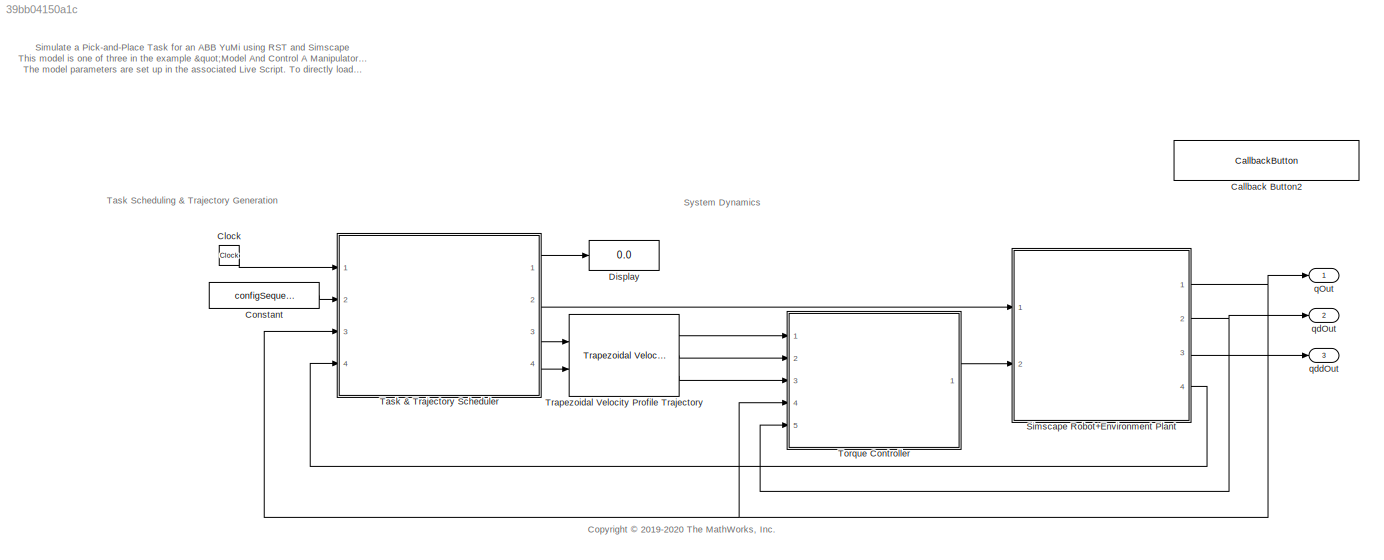
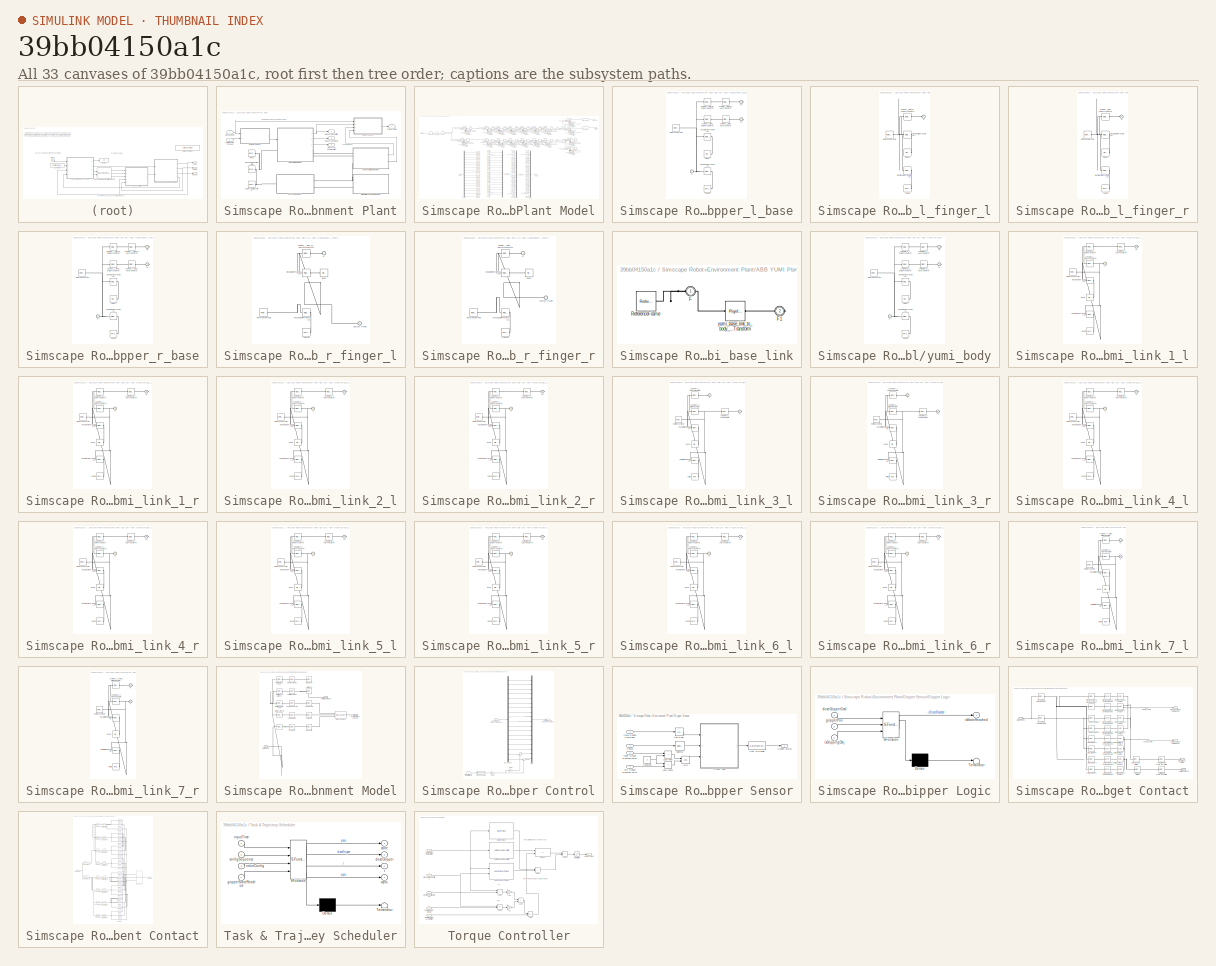
[diagram: thumbnail index - all 33 canvases of the model, root first then tree order]
MODEL slx_39bb04150a1c
KIND model
CONFIG AbsTol = 1e-2
CONFIG EnableMultiTasking = off
CONFIG FixedStep = auto
CONFIG MaxStep = 0.1
CONFIG MinStep = auto
CONFIG RelTol = 1e-2
CONFIG SampleTimeConstraint = Unconstrained
CONFIG SolverName = daessc
CONFIG StartTime = 0.0
CONFIG StopTime = 16
BLOCK [CallbackButton] Callback Button2
  ButtonText = Load Default Parameters (will overwrite workspace)
  ClickFcn = robot = loadrobot('abbYumi', 'Gravity', [0 0 -9.81]);\nload abbExampleRSTVariables.mat;\nload abbExampleSMVariables.mat;
BLOCK [Clock] Clock
BLOCK [Constant] Constant
  Value = configSequence
BLOCK [Display] Display
  Decimation = 1
  Ports = [1]
BLOCK [SubSystem] Simscape Robot+Environment Plant
  Ports = [2, 4]
  RequestExecContextInheritance = off
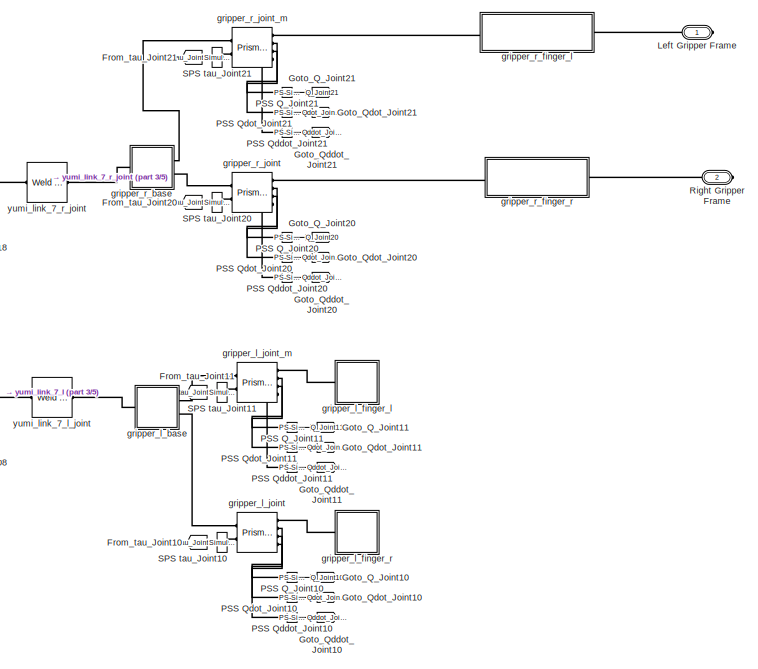
[diagram: Simscape Robot+Environment Plant/ABB YUMI Plant Model - part 1/5, top right region]
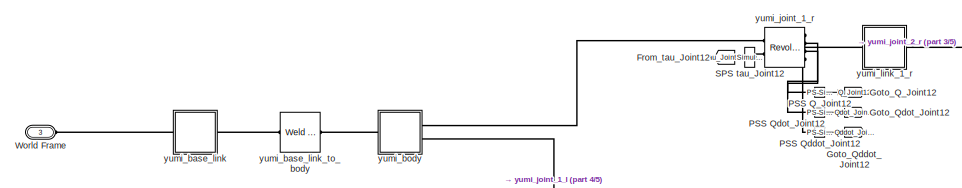
[diagram: Simscape Robot+Environment Plant/ABB YUMI Plant Model - part 2/5, top left region]
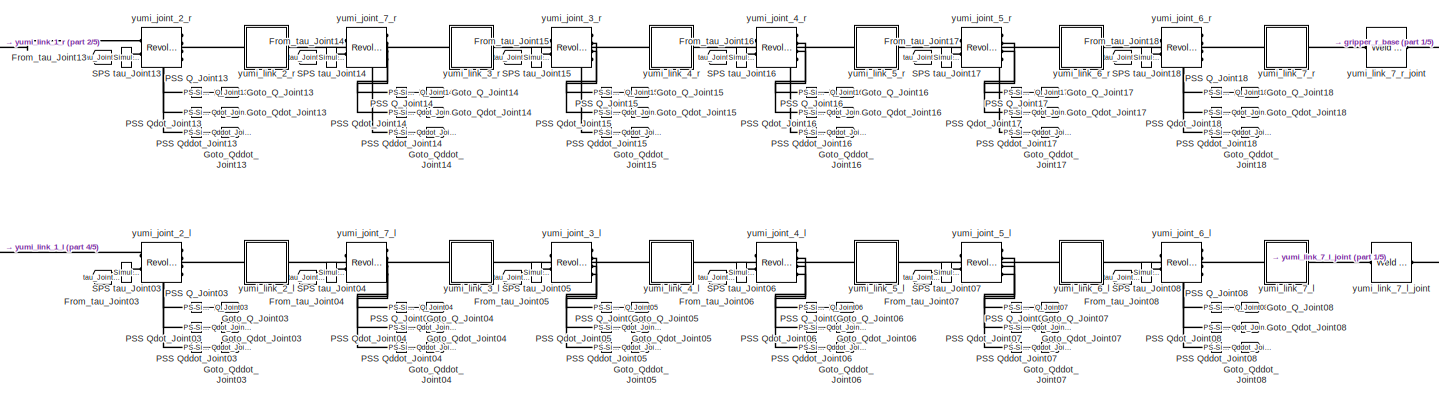
[diagram: Simscape Robot+Environment Plant/ABB YUMI Plant Model - part 3/5, top center region]
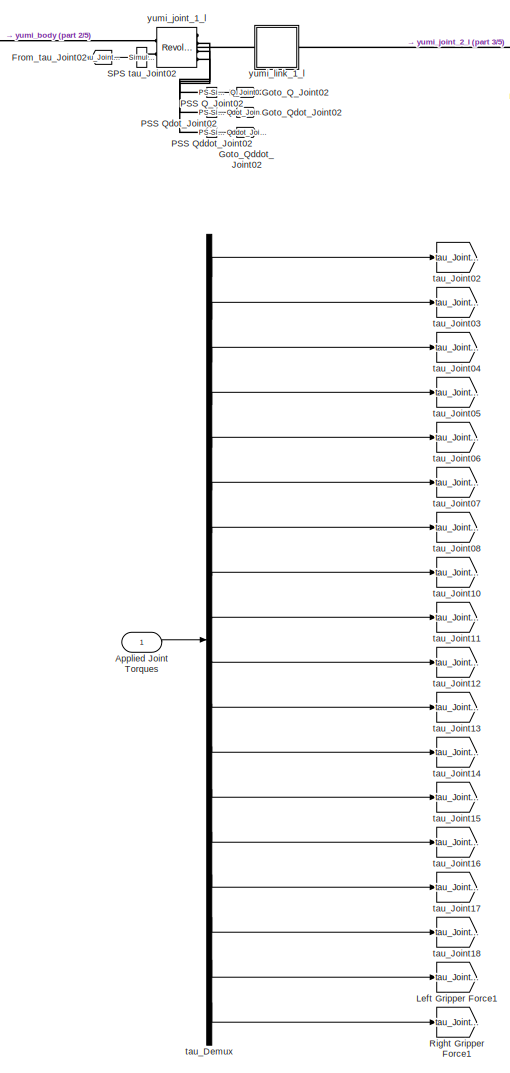
[diagram: Simscape Robot+Environment Plant/ABB YUMI Plant Model - part 4/5, left side, full height]
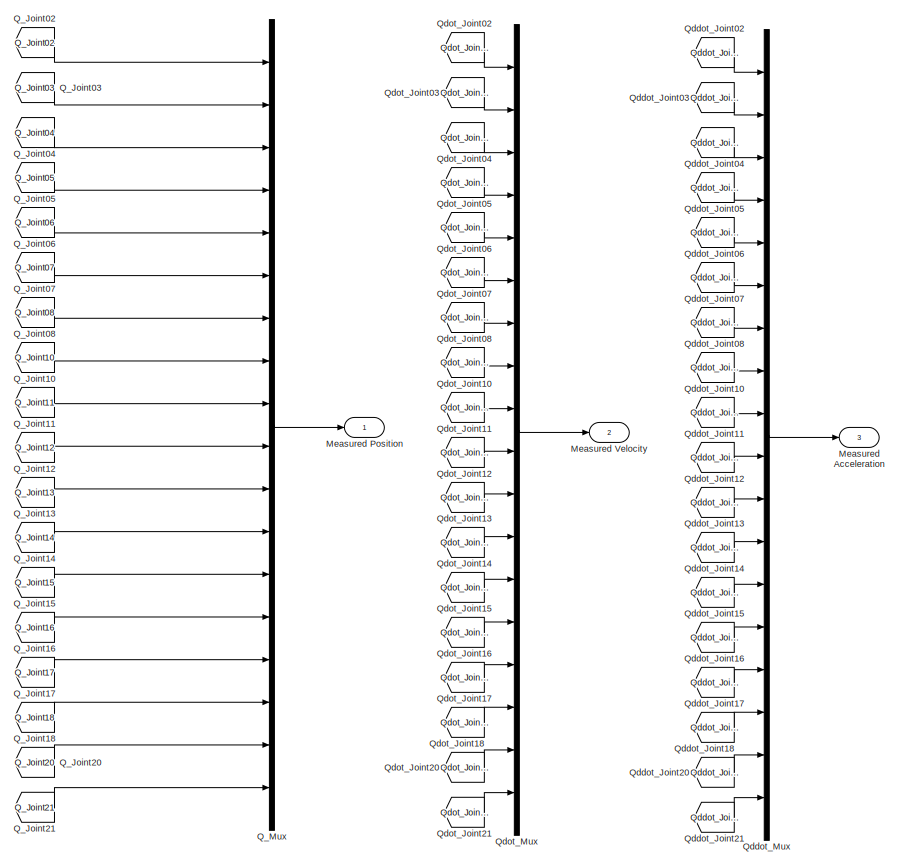
[diagram: Simscape Robot+Environment Plant/ABB YUMI Plant Model - part 5/5, bottom center region]
BLOCK [SubSystem] Simscape Robot+Environment Plant/ABB YUMI Plant Model
  Ports = [1, 3, 0, 0, 0, 1, 2]
  RequestExecContextInheritance = off
BLOCK [Inport] Simscape Robot+Environment Plant/ABB YUMI Plant Model/Applied Joint Torques
BLOCK [From] Simscape Robot+Environment Plant/ABB YUMI Plant Model/From_tau_Joint02
  GotoTag = tau_Joint02
BLOCK [From] Simscape Robot+Environment Plant/ABB YUMI Plant Model/From_tau_Joint03
  GotoTag = tau_Joint03
BLOCK [From] Simscape Robot+Environment Plant/ABB YUMI Plant Model/From_tau_Joint04
  GotoTag = tau_Joint04
BLOCK [From] Simscape Robot+Environment Plant/ABB YUMI Plant Model/From_tau_Joint05
  GotoTag = tau_Joint05
BLOCK [From] Simscape Robot+Environment Plant/ABB YUMI Plant Model/From_tau_Joint06
  GotoTag = tau_Joint06
BLOCK [From] Simscape Robot+Environment Plant/ABB YUMI Plant Model/From_tau_Joint07
  GotoTag = tau_Joint07
BLOCK [From] Simscape Robot+Environment Plant/ABB YUMI Plant Model/From_tau_Joint08
  GotoTag = tau_Joint08
BLOCK [From] Simscape Robot+Environment Plant/ABB YUMI Plant Model/From_tau_Joint10
  GotoTag = tau_Joint10
BLOCK [From] Simscape Robot+Environment Plant/ABB YUMI Plant Model/From_tau_Joint11
  GotoTag = tau_Joint11
BLOCK [From] Simscape Robot+Environment Plant/ABB YUMI Plant Model/From_tau_Joint12
  GotoTag = tau_Joint12
BLOCK [From] Simscape Robot+Environment Plant/ABB YUMI Plant Model/From_tau_Joint13
  GotoTag = tau_Joint13
BLOCK [From] Simscape Robot+Environment Plant/ABB YUMI Plant Model/From_tau_Joint14
  GotoTag = tau_Joint14
BLOCK [From] Simscape Robot+Environment Plant/ABB YUMI Plant Model/From_tau_Joint15
  GotoTag = tau_Joint15
BLOCK [From] Simscape Robot+Environment Plant/ABB YUMI Plant Model/From_tau_Joint16
  GotoTag = tau_Joint16
BLOCK [From] Simscape Robot+Environment Plant/ABB YUMI Plant Model/From_tau_Joint17
  GotoTag = tau_Joint17
BLOCK [From] Simscape Robot+Environment Plant/ABB YUMI Plant Model/From_tau_Joint18
  GotoTag = tau_Joint18
BLOCK [From] Simscape Robot+Environment Plant/ABB YUMI Plant Model/From_tau_Joint20
  GotoTag = tau_Joint20
BLOCK [From] Simscape Robot+Environment Plant/ABB YUMI Plant Model/From_tau_Joint21
  GotoTag = tau_Joint21
BLOCK [Goto] Simscape Robot+Environment Plant/ABB YUMI Plant Model/Goto_Q_Joint02
  GotoTag = Q_Joint02
BLOCK [Goto] Simscape Robot+Environment Plant/ABB YUMI Plant Model/Goto_Q_Joint03
  GotoTag = Q_Joint03
BLOCK [Goto] Simscape Robot+Environment Plant/ABB YUMI Plant Model/Goto_Q_Joint04
  GotoTag = Q_Joint04
BLOCK [Goto] Simscape Robot+Environment Plant/ABB YUMI Plant Model/Goto_Q_Joint05
  GotoTag = Q_Joint05
BLOCK [Goto] Simscape Robot+Environment Plant/ABB YUMI Plant Model/Goto_Q_Joint06
  GotoTag = Q_Joint06
BLOCK [Goto] Simscape Robot+Environment Plant/ABB YUMI Plant Model/Goto_Q_Joint07
  GotoTag = Q_Joint07
BLOCK [Goto] Simscape Robot+Environment Plant/ABB YUMI Plant Model/Goto_Q_Joint08
  GotoTag = Q_Joint08
BLOCK [Goto] Simscape Robot+Environment Plant/ABB YUMI Plant Model/Goto_Q_Joint10
  GotoTag = Q_Joint10
BLOCK [Goto] Simscape Robot+Environment Plant/ABB YUMI Plant Model/Goto_Q_Joint11
  GotoTag = Q_Joint11
BLOCK [Goto] Simscape Robot+Environment Plant/ABB YUMI Plant Model/Goto_Q_Joint12
  GotoTag = Q_Joint12
BLOCK [Goto] Simscape Robot+Environment Plant/ABB YUMI Plant Model/Goto_Q_Joint13
  GotoTag = Q_Joint13
BLOCK [Goto] Simscape Robot+Environment Plant/ABB YUMI Plant Model/Goto_Q_Joint14
  GotoTag = Q_Joint14
BLOCK [Goto] Simscape Robot+Environment Plant/ABB YUMI Plant Model/Goto_Q_Joint15
  GotoTag = Q_Joint15
BLOCK [Goto] Simscape Robot+Environment Plant/ABB YUMI Plant Model/Goto_Q_Joint16
  GotoTag = Q_Joint16
BLOCK [Goto] Simscape Robot+Environment Plant/ABB YUMI Plant Model/Goto_Q_Joint17
  GotoTag = Q_Joint17
BLOCK [Goto] Simscape Robot+Environment Plant/ABB YUMI Plant Model/Goto_Q_Joint18
  GotoTag = Q_Joint18
BLOCK [Goto] Simscape Robot+Environment Plant/ABB YUMI Plant Model/Goto_Q_Joint20
  GotoTag = Q_Joint20
BLOCK [Goto] Simscape Robot+Environment Plant/ABB YUMI Plant Model/Goto_Q_Joint21
  GotoTag = Q_Joint21
BLOCK [Goto] Simscape Robot+Environment Plant/ABB YUMI Plant Model/Goto_Qddot_Joint02
  GotoTag = Qddot_Joint02
BLOCK [Goto] Simscape Robot+Environment Plant/ABB YUMI Plant Model/Goto_Qddot_Joint03
  GotoTag = Qddot_Joint03
BLOCK [Goto] Simscape Robot+Environment Plant/ABB YUMI Plant Model/Goto_Qddot_Joint04
  GotoTag = Qddot_Joint04
BLOCK [Goto] Simscape Robot+Environment Plant/ABB YUMI Plant Model/Goto_Qddot_Joint05
  GotoTag = Qddot_Joint05
BLOCK [Goto] Simscape Robot+Environment Plant/ABB YUMI Plant Model/Goto_Qddot_Joint06
  GotoTag = Qddot_Joint06
BLOCK [Goto] Simscape Robot+Environment Plant/ABB YUMI Plant Model/Goto_Qddot_Joint07
  GotoTag = Qddot_Joint07
BLOCK [Goto] Simscape Robot+Environment Plant/ABB YUMI Plant Model/Goto_Qddot_Joint08
  GotoTag = Qddot_Joint08
BLOCK [Goto] Simscape Robot+Environment Plant/ABB YUMI Plant Model/Goto_Qddot_Joint10
  GotoTag = Qddot_Joint10
BLOCK [Goto] Simscape Robot+Environment Plant/ABB YUMI Plant Model/Goto_Qddot_Joint11
  GotoTag = Qddot_Joint11
BLOCK [Goto] Simscape Robot+Environment Plant/ABB YUMI Plant Model/Goto_Qddot_Joint12
  GotoTag = Qddot_Joint12
BLOCK [Goto] Simscape Robot+Environment Plant/ABB YUMI Plant Model/Goto_Qddot_Joint13
  GotoTag = Qddot_Joint13
BLOCK [Goto] Simscape Robot+Environment Plant/ABB YUMI Plant Model/Goto_Qddot_Joint14
  GotoTag = Qddot_Joint14
BLOCK [Goto] Simscape Robot+Environment Plant/ABB YUMI Plant Model/Goto_Qddot_Joint15
  GotoTag = Qddot_Joint15
BLOCK [Goto] Simscape Robot+Environment Plant/ABB YUMI Plant Model/Goto_Qddot_Joint16
  GotoTag = Qddot_Joint16
BLOCK [Goto] Simscape Robot+Environment Plant/ABB YUMI Plant Model/Goto_Qddot_Joint17
  GotoTag = Qddot_Joint17
BLOCK [Goto] Simscape Robot+Environment Plant/ABB YUMI Plant Model/Goto_Qddot_Joint18
  GotoTag = Qddot_Joint18
BLOCK [Goto] Simscape Robot+Environment Plant/ABB YUMI Plant Model/Goto_Qddot_Joint20
  GotoTag = Qddot_Joint20
BLOCK [Goto] Simscape Robot+Environment Plant/ABB YUMI Plant Model/Goto_Qddot_Joint21
  GotoTag = Qddot_Joint21
BLOCK [Goto] Simscape Robot+Environment Plant/ABB YUMI Plant Model/Goto_Qdot_Joint02
  GotoTag = Qdot_Joint02
BLOCK [Goto] Simscape Robot+Environment Plant/ABB YUMI Plant Model/Goto_Qdot_Joint03
  GotoTag = Qdot_Joint03
BLOCK [Goto] Simscape Robot+Environment Plant/ABB YUMI Plant Model/Goto_Qdot_Joint04
  GotoTag = Qdot_Joint04
BLOCK [Goto] Simscape Robot+Environment Plant/ABB YUMI Plant Model/Goto_Qdot_Joint05
  GotoTag = Qdot_Joint05
BLOCK [Goto] Simscape Robot+Environment Plant/ABB YUMI Plant Model/Goto_Qdot_Joint06
  GotoTag = Qdot_Joint06
BLOCK [Goto] Simscape Robot+Environment Plant/ABB YUMI Plant Model/Goto_Qdot_Joint07
  GotoTag = Qdot_Joint07
BLOCK [Goto] Simscape Robot+Environment Plant/ABB YUMI Plant Model/Goto_Qdot_Joint08
  GotoTag = Qdot_Joint08
BLOCK [Goto] Simscape Robot+Environment Plant/ABB YUMI Plant Model/Goto_Qdot_Joint10
  GotoTag = Qdot_Joint10
BLOCK [Goto] Simscape Robot+Environment Plant/ABB YUMI Plant Model/Goto_Qdot_Joint11
  GotoTag = Qdot_Joint11
BLOCK [Goto] Simscape Robot+Environment Plant/ABB YUMI Plant Model/Goto_Qdot_Joint12
  GotoTag = Qdot_Joint12
BLOCK [Goto] Simscape Robot+Environment Plant/ABB YUMI Plant Model/Goto_Qdot_Joint13
  GotoTag = Qdot_Joint13
BLOCK [Goto] Simscape Robot+Environment Plant/ABB YUMI Plant Model/Goto_Qdot_Joint14
  GotoTag = Qdot_Joint14
BLOCK [Goto] Simscape Robot+Environment Plant/ABB YUMI Plant Model/Goto_Qdot_Joint15
  GotoTag = Qdot_Joint15
BLOCK [Goto] Simscape Robot+Environment Plant/ABB YUMI Plant Model/Goto_Qdot_Joint16
  GotoTag = Qdot_Joint16
BLOCK [Goto] Simscape Robot+Environment Plant/ABB YUMI Plant Model/Goto_Qdot_Joint17
  GotoTag = Qdot_Joint17
BLOCK [Goto] Simscape Robot+Environment Plant/ABB YUMI Plant Model/Goto_Qdot_Joint18
  GotoTag = Qdot_Joint18
BLOCK [Goto] Simscape Robot+Environment Plant/ABB YUMI Plant Model/Goto_Qdot_Joint20
  GotoTag = Qdot_Joint20
BLOCK [Goto] Simscape Robot+Environment Plant/ABB YUMI Plant Model/Goto_Qdot_Joint21
  GotoTag = Qdot_Joint21
BLOCK [Goto] Simscape Robot+Environment Plant/ABB YUMI Plant Model/Left Gripper Force1
  GotoTag = tau_Joint20
BLOCK [PMIOPort] Simscape Robot+Environment Plant/ABB YUMI Plant Model/Left Gripper Frame
  Side = Right
BLOCK [Outport] Simscape Robot+Environment Plant/ABB YUMI Plant Model/Measured Acceleration
  Port = 3
BLOCK [Outport] Simscape Robot+Environment Plant/ABB YUMI Plant Model/Measured Position
BLOCK [Outport] Simscape Robot+Environment Plant/ABB YUMI Plant Model/Measured Velocity
  Port = 2
BLOCK [Reference] Simscape Robot+Environment Plant/ABB YUMI Plant Model/PSS Q_Joint02  REF=nesl_utility/PS-Simulink
Converter
  Ports = [0, 1, 0, 0, 0, 1]
  SourceBlock = nesl_utility/PS-Simulink\nConverter
  SourceProductName = Utilities
  SourceType = PS-Simulink\nConverter
BLOCK [Reference] Simscape Robot+Environment Plant/ABB YUMI Plant Model/PSS Q_Joint03  REF=nesl_utility/PS-Simulink
Converter
  Ports = [0, 1, 0, 0, 0, 1]
  SourceBlock = nesl_utility/PS-Simulink\nConverter
  SourceProductName = Utilities
  SourceType = PS-Simulink\nConverter
BLOCK [Reference] Simscape Robot+Environment Plant/ABB YUMI Plant Model/PSS Q_Joint04  REF=nesl_utility/PS-Simulink
Converter
  Ports = [0, 1, 0, 0, 0, 1]
  SourceBlock = nesl_utility/PS-Simulink\nConverter
  SourceProductName = Utilities
  SourceType = PS-Simulink\nConverter
BLOCK [Reference] Simscape Robot+Environment Plant/ABB YUMI Plant Model/PSS Q_Joint05  REF=nesl_utility/PS-Simulink
Converter
  Ports = [0, 1, 0, 0, 0, 1]
  SourceBlock = nesl_utility/PS-Simulink\nConverter
  SourceProductName = Utilities
  SourceType = PS-Simulink\nConverter
BLOCK [Reference] Simscape Robot+Environment Plant/ABB YUMI Plant Model/PSS Q_Joint06  REF=nesl_utility/PS-Simulink
Converter
  Ports = [0, 1, 0, 0, 0, 1]
  SourceBlock = nesl_utility/PS-Simulink\nConverter
  SourceProductName = Utilities
  SourceType = PS-Simulink\nConverter
BLOCK [Reference] Simscape Robot+Environment Plant/ABB YUMI Plant Model/PSS Q_Joint07  REF=nesl_utility/PS-Simulink
Converter
  Ports = [0, 1, 0, 0, 0, 1]
  SourceBlock = nesl_utility/PS-Simulink\nConverter
  SourceProductName = Utilities
  SourceType = PS-Simulink\nConverter
BLOCK [Reference] Simscape Robot+Environment Plant/ABB YUMI Plant Model/PSS Q_Joint08  REF=nesl_utility/PS-Simulink
Converter
  Ports = [0, 1, 0, 0, 0, 1]
  SourceBlock = nesl_utility/PS-Simulink\nConverter
  SourceProductName = Utilities
  SourceType = PS-Simulink\nConverter
BLOCK [Reference] Simscape Robot+Environment Plant/ABB YUMI Plant Model/PSS Q_Joint10  REF=nesl_utility/PS-Simulink
Converter
  Ports = [0, 1, 0, 0, 0, 1]
  SourceBlock = nesl_utility/PS-Simulink\nConverter
  SourceProductName = Utilities
  SourceType = PS-Simulink\nConverter
BLOCK [Reference] Simscape Robot+Environment Plant/ABB YUMI Plant Model/PSS Q_Joint11  REF=nesl_utility/PS-Simulink
Converter
  Ports = [0, 1, 0, 0, 0, 1]
  SourceBlock = nesl_utility/PS-Simulink\nConverter
  SourceProductName = Utilities
  SourceType = PS-Simulink\nConverter
BLOCK [Reference] Simscape Robot+Environment Plant/ABB YUMI Plant Model/PSS Q_Joint12  REF=nesl_utility/PS-Simulink
Converter
  Ports = [0, 1, 0, 0, 0, 1]
  SourceBlock = nesl_utility/PS-Simulink\nConverter
  SourceProductName = Utilities
  SourceType = PS-Simulink\nConverter
BLOCK [Reference] Simscape Robot+Environment Plant/ABB YUMI Plant Model/PSS Q_Joint13  REF=nesl_utility/PS-Simulink
Converter
  Ports = [0, 1, 0, 0, 0, 1]
  SourceBlock = nesl_utility/PS-Simulink\nConverter
  SourceProductName = Utilities
  SourceType = PS-Simulink\nConverter
BLOCK [Reference] Simscape Robot+Environment Plant/ABB YUMI Plant Model/PSS Q_Joint14  REF=nesl_utility/PS-Simulink
Converter
  Ports = [0, 1, 0, 0, 0, 1]
  SourceBlock = nesl_utility/PS-Simulink\nConverter
  SourceProductName = Utilities
  SourceType = PS-Simulink\nConverter
BLOCK [Reference] Simscape Robot+Environment Plant/ABB YUMI Plant Model/PSS Q_Joint15  REF=nesl_utility/PS-Simulink
Converter
  Ports = [0, 1, 0, 0, 0, 1]
  SourceBlock = nesl_utility/PS-Simulink\nConverter
  SourceProductName = Utilities
  SourceType = PS-Simulink\nConverter
BLOCK [Reference] Simscape Robot+Environment Plant/ABB YUMI Plant Model/PSS Q_Joint16  REF=nesl_utility/PS-Simulink
Converter
  Ports = [0, 1, 0, 0, 0, 1]
  SourceBlock = nesl_utility/PS-Simulink\nConverter
  SourceProductName = Utilities
  SourceType = PS-Simulink\nConverter
BLOCK [Reference] Simscape Robot+Environment Plant/ABB YUMI Plant Model/PSS Q_Joint17  REF=nesl_utility/PS-Simulink
Converter
  Ports = [0, 1, 0, 0, 0, 1]
  SourceBlock = nesl_utility/PS-Simulink\nConverter
  SourceProductName = Utilities
  SourceType = PS-Simulink\nConverter
BLOCK [Reference] Simscape Robot+Environment Plant/ABB YUMI Plant Model/PSS Q_Joint18  REF=nesl_utility/PS-Simulink
Converter
  Ports = [0, 1, 0, 0, 0, 1]
  SourceBlock = nesl_utility/PS-Simulink\nConverter
  SourceProductName = Utilities
  SourceType = PS-Simulink\nConverter
BLOCK [Reference] Simscape Robot+Environment Plant/ABB YUMI Plant Model/PSS Q_Joint20  REF=nesl_utility/PS-Simulink
Converter
  Ports = [0, 1, 0, 0, 0, 1]
  SourceBlock = nesl_utility/PS-Simulink\nConverter
  SourceProductName = Utilities
  SourceType = PS-Simulink\nConverter
BLOCK [Reference] Simscape Robot+Environment Plant/ABB YUMI Plant Model/PSS Q_Joint21  REF=nesl_utility/PS-Simulink
Converter
  Ports = [0, 1, 0, 0, 0, 1]
  SourceBlock = nesl_utility/PS-Simulink\nConverter
  SourceProductName = Utilities
  SourceType = PS-Simulink\nConverter
BLOCK [Reference] Simscape Robot+Environment Plant/ABB YUMI Plant Model/PSS Qddot_Joint02  REF=nesl_utility/PS-Simulink
Converter
  Ports = [0, 1, 0, 0, 0, 1]
  SourceBlock = nesl_utility/PS-Simulink\nConverter
  SourceProductName = Utilities
  SourceType = PS-Simulink\nConverter
BLOCK [Reference] Simscape Robot+Environment Plant/ABB YUMI Plant Model/PSS Qddot_Joint03  REF=nesl_utility/PS-Simulink
Converter
  Ports = [0, 1, 0, 0, 0, 1]
  SourceBlock = nesl_utility/PS-Simulink\nConverter
  SourceProductName = Utilities
  SourceType = PS-Simulink\nConverter
BLOCK [Reference] Simscape Robot+Environment Plant/ABB YUMI Plant Model/PSS Qddot_Joint04  REF=nesl_utility/PS-Simulink
Converter
  Ports = [0, 1, 0, 0, 0, 1]
  SourceBlock = nesl_utility/PS-Simulink\nConverter
  SourceProductName = Utilities
  SourceType = PS-Simulink\nConverter
BLOCK [Reference] Simscape Robot+Environment Plant/ABB YUMI Plant Model/PSS Qddot_Joint05  REF=nesl_utility/PS-Simulink
Converter
  Ports = [0, 1, 0, 0, 0, 1]
  SourceBlock = nesl_utility/PS-Simulink\nConverter
  SourceProductName = Utilities
  SourceType = PS-Simulink\nConverter
BLOCK [Reference] Simscape Robot+Environment Plant/ABB YUMI Plant Model/PSS Qddot_Joint06  REF=nesl_utility/PS-Simulink
Converter
  Ports = [0, 1, 0, 0, 0, 1]
  SourceBlock = nesl_utility/PS-Simulink\nConverter
  SourceProductName = Utilities
  SourceType = PS-Simulink\nConverter
BLOCK [Reference] Simscape Robot+Environment Plant/ABB YUMI Plant Model/PSS Qddot_Joint07  REF=nesl_utility/PS-Simulink
Converter
  Ports = [0, 1, 0, 0, 0, 1]
  SourceBlock = nesl_utility/PS-Simulink\nConverter
  SourceProductName = Utilities
  SourceType = PS-Simulink\nConverter
BLOCK [Reference] Simscape Robot+Environment Plant/ABB YUMI Plant Model/PSS Qddot_Joint08  REF=nesl_utility/PS-Simulink
Converter
  Ports = [0, 1, 0, 0, 0, 1]
  SourceBlock = nesl_utility/PS-Simulink\nConverter
  SourceProductName = Utilities
  SourceType = PS-Simulink\nConverter
BLOCK [Reference] Simscape Robot+Environment Plant/ABB YUMI Plant Model/PSS Qddot_Joint10  REF=nesl_utility/PS-Simulink
Converter
  Ports = [0, 1, 0, 0, 0, 1]
  SourceBlock = nesl_utility/PS-Simulink\nConverter
  SourceProductName = Utilities
  SourceType = PS-Simulink\nConverter
BLOCK [Reference] Simscape Robot+Environment Plant/ABB YUMI Plant Model/PSS Qddot_Joint11  REF=nesl_utility/PS-Simulink
Converter
  Ports = [0, 1, 0, 0, 0, 1]
  SourceBlock = nesl_utility/PS-Simulink\nConverter
  SourceProductName = Utilities
  SourceType = PS-Simulink\nConverter
BLOCK [Reference] Simscape Robot+Environment Plant/ABB YUMI Plant Model/PSS Qddot_Joint12  REF=nesl_utility/PS-Simulink
Converter
  Ports = [0, 1, 0, 0, 0, 1]
  SourceBlock = nesl_utility/PS-Simulink\nConverter
  SourceProductName = Utilities
  SourceType = PS-Simulink\nConverter
BLOCK [Reference] Simscape Robot+Environment Plant/ABB YUMI Plant Model/PSS Qddot_Joint13  REF=nesl_utility/PS-Simulink
Converter
  Ports = [0, 1, 0, 0, 0, 1]
  SourceBlock = nesl_utility/PS-Simulink\nConverter
  SourceProductName = Utilities
  SourceType = PS-Simulink\nConverter
BLOCK [Reference] Simscape Robot+Environment Plant/ABB YUMI Plant Model/PSS Qddot_Joint14  REF=nesl_utility/PS-Simulink
Converter
  Ports = [0, 1, 0, 0, 0, 1]
  SourceBlock = nesl_utility/PS-Simulink\nConverter
  SourceProductName = Utilities
  SourceType = PS-Simulink\nConverter
BLOCK [Reference] Simscape Robot+Environment Plant/ABB YUMI Plant Model/PSS Qddot_Joint15  REF=nesl_utility/PS-Simulink
Converter
  Ports = [0, 1, 0, 0, 0, 1]
  SourceBlock = nesl_utility/PS-Simulink\nConverter
  SourceProductName = Utilities
  SourceType = PS-Simulink\nConverter
BLOCK [Reference] Simscape Robot+Environment Plant/ABB YUMI Plant Model/PSS Qddot_Joint16  REF=nesl_utility/PS-Simulink
Converter
  Ports = [0, 1, 0, 0, 0, 1]
  SourceBlock = nesl_utility/PS-Simulink\nConverter
  SourceProductName = Utilities
  SourceType = PS-Simulink\nConverter
BLOCK [Reference] Simscape Robot+Environment Plant/ABB YUMI Plant Model/PSS Qddot_Joint17  REF=nesl_utility/PS-Simulink
Converter
  Ports = [0, 1, 0, 0, 0, 1]
  SourceBlock = nesl_utility/PS-Simulink\nConverter
  SourceProductName = Utilities
  SourceType = PS-Simulink\nConverter
BLOCK [Reference] Simscape Robot+Environment Plant/ABB YUMI Plant Model/PSS Qddot_Joint18  REF=nesl_utility/PS-Simulink
Converter
  Ports = [0, 1, 0, 0, 0, 1]
  SourceBlock = nesl_utility/PS-Simulink\nConverter
  SourceProductName = Utilities
  SourceType = PS-Simulink\nConverter
BLOCK [Reference] Simscape Robot+Environment Plant/ABB YUMI Plant Model/PSS Qddot_Joint20  REF=nesl_utility/PS-Simulink
Converter
  Ports = [0, 1, 0, 0, 0, 1]
  SourceBlock = nesl_utility/PS-Simulink\nConverter
  SourceProductName = Utilities
  SourceType = PS-Simulink\nConverter
BLOCK [Reference] Simscape Robot+Environment Plant/ABB YUMI Plant Model/PSS Qddot_Joint21  REF=nesl_utility/PS-Simulink
Converter
  Ports = [0, 1, 0, 0, 0, 1]
  SourceBlock = nesl_utility/PS-Simulink\nConverter
  SourceProductName = Utilities
  SourceType = PS-Simulink\nConverter
BLOCK [Reference] Simscape Robot+Environment Plant/ABB YUMI Plant Model/PSS Qdot_Joint02  REF=nesl_utility/PS-Simulink
Converter
  Ports = [0, 1, 0, 0, 0, 1]
  SourceBlock = nesl_utility/PS-Simulink\nConverter
  SourceProductName = Utilities
  SourceType = PS-Simulink\nConverter
BLOCK [Reference] Simscape Robot+Environment Plant/ABB YUMI Plant Model/PSS Qdot_Joint03  REF=nesl_utility/PS-Simulink
Converter
  Ports = [0, 1, 0, 0, 0, 1]
  SourceBlock = nesl_utility/PS-Simulink\nConverter
  SourceProductName = Utilities
  SourceType = PS-Simulink\nConverter
BLOCK [Reference] Simscape Robot+Environment Plant/ABB YUMI Plant Model/PSS Qdot_Joint04  REF=nesl_utility/PS-Simulink
Converter
  Ports = [0, 1, 0, 0, 0, 1]
  SourceBlock = nesl_utility/PS-Simulink\nConverter
  SourceProductName = Utilities
  SourceType = PS-Simulink\nConverter
BLOCK [Reference] Simscape Robot+Environment Plant/ABB YUMI Plant Model/PSS Qdot_Joint05  REF=nesl_utility/PS-Simulink
Converter
  Ports = [0, 1, 0, 0, 0, 1]
  SourceBlock = nesl_utility/PS-Simulink\nConverter
  SourceProductName = Utilities
  SourceType = PS-Simulink\nConverter
BLOCK [Reference] Simscape Robot+Environment Plant/ABB YUMI Plant Model/PSS Qdot_Joint06  REF=nesl_utility/PS-Simulink
Converter
  Ports = [0, 1, 0, 0, 0, 1]
  SourceBlock = nesl_utility/PS-Simulink\nConverter
  SourceProductName = Utilities
  SourceType = PS-Simulink\nConverter
BLOCK [Reference] Simscape Robot+Environment Plant/ABB YUMI Plant Model/PSS Qdot_Joint07  REF=nesl_utility/PS-Simulink
Converter
  Ports = [0, 1, 0, 0, 0, 1]
  SourceBlock = nesl_utility/PS-Simulink\nConverter
  SourceProductName = Utilities
  SourceType = PS-Simulink\nConverter
BLOCK [Reference] Simscape Robot+Environment Plant/ABB YUMI Plant Model/PSS Qdot_Joint08  REF=nesl_utility/PS-Simulink
Converter
  Ports = [0, 1, 0, 0, 0, 1]
  SourceBlock = nesl_utility/PS-Simulink\nConverter
  SourceProductName = Utilities
  SourceType = PS-Simulink\nConverter
BLOCK [Reference] Simscape Robot+Environment Plant/ABB YUMI Plant Model/PSS Qdot_Joint10  REF=nesl_utility/PS-Simulink
Converter
  Ports = [0, 1, 0, 0, 0, 1]
  SourceBlock = nesl_utility/PS-Simulink\nConverter
  SourceProductName = Utilities
  SourceType = PS-Simulink\nConverter
BLOCK [Reference] Simscape Robot+Environment Plant/ABB YUMI Plant Model/PSS Qdot_Joint11  REF=nesl_utility/PS-Simulink
Converter
  Ports = [0, 1, 0, 0, 0, 1]
  SourceBlock = nesl_utility/PS-Simulink\nConverter
  SourceProductName = Utilities
  SourceType = PS-Simulink\nConverter
BLOCK [Reference] Simscape Robot+Environment Plant/ABB YUMI Plant Model/PSS Qdot_Joint12  REF=nesl_utility/PS-Simulink
Converter
  Ports = [0, 1, 0, 0, 0, 1]
  SourceBlock = nesl_utility/PS-Simulink\nConverter
  SourceProductName = Utilities
  SourceType = PS-Simulink\nConverter
BLOCK [Reference] Simscape Robot+Environment Plant/ABB YUMI Plant Model/PSS Qdot_Joint13  REF=nesl_utility/PS-Simulink
Converter
  Ports = [0, 1, 0, 0, 0, 1]
  SourceBlock = nesl_utility/PS-Simulink\nConverter
  SourceProductName = Utilities
  SourceType = PS-Simulink\nConverter
BLOCK [Reference] Simscape Robot+Environment Plant/ABB YUMI Plant Model/PSS Qdot_Joint14  REF=nesl_utility/PS-Simulink
Converter
  Ports = [0, 1, 0, 0, 0, 1]
  SourceBlock = nesl_utility/PS-Simulink\nConverter
  SourceProductName = Utilities
  SourceType = PS-Simulink\nConverter
BLOCK [Reference] Simscape Robot+Environment Plant/ABB YUMI Plant Model/PSS Qdot_Joint15  REF=nesl_utility/PS-Simulink
Converter
  Ports = [0, 1, 0, 0, 0, 1]
  SourceBlock = nesl_utility/PS-Simulink\nConverter
  SourceProductName = Utilities
  SourceType = PS-Simulink\nConverter
BLOCK [Reference] Simscape Robot+Environment Plant/ABB YUMI Plant Model/PSS Qdot_Joint16  REF=nesl_utility/PS-Simulink
Converter
  Ports = [0, 1, 0, 0, 0, 1]
  SourceBlock = nesl_utility/PS-Simulink\nConverter
  SourceProductName = Utilities
  SourceType = PS-Simulink\nConverter
BLOCK [Reference] Simscape Robot+Environment Plant/ABB YUMI Plant Model/PSS Qdot_Joint17  REF=nesl_utility/PS-Simulink
Converter
  Ports = [0, 1, 0, 0, 0, 1]
  SourceBlock = nesl_utility/PS-Simulink\nConverter
  SourceProductName = Utilities
  SourceType = PS-Simulink\nConverter
BLOCK [Reference] Simscape Robot+Environment Plant/ABB YUMI Plant Model/PSS Qdot_Joint18  REF=nesl_utility/PS-Simulink
Converter
  Ports = [0, 1, 0, 0, 0, 1]
  SourceBlock = nesl_utility/PS-Simulink\nConverter
  SourceProductName = Utilities
  SourceType = PS-Simulink\nConverter
BLOCK [Reference] Simscape Robot+Environment Plant/ABB YUMI Plant Model/PSS Qdot_Joint20  REF=nesl_utility/PS-Simulink
Converter
  Ports = [0, 1, 0, 0, 0, 1]
  SourceBlock = nesl_utility/PS-Simulink\nConverter
  SourceProductName = Utilities
  SourceType = PS-Simulink\nConverter
BLOCK [Reference] Simscape Robot+Environment Plant/ABB YUMI Plant Model/PSS Qdot_Joint21  REF=nesl_utility/PS-Simulink
Converter
  Ports = [0, 1, 0, 0, 0, 1]
  SourceBlock = nesl_utility/PS-Simulink\nConverter
  SourceProductName = Utilities
  SourceType = PS-Simulink\nConverter
BLOCK [From] Simscape Robot+Environment Plant/ABB YUMI Plant Model/Q_Joint02
  GotoTag = Q_Joint02
BLOCK [From] Simscape Robot+Environment Plant/ABB YUMI Plant Model/Q_Joint03
  GotoTag = Q_Joint03
BLOCK [From] Simscape Robot+Environment Plant/ABB YUMI Plant Model/Q_Joint04
  GotoTag = Q_Joint04
BLOCK [From] Simscape Robot+Environment Plant/ABB YUMI Plant Model/Q_Joint05
  GotoTag = Q_Joint05
BLOCK [From] Simscape Robot+Environment Plant/ABB YUMI Plant Model/Q_Joint06
  GotoTag = Q_Joint06
BLOCK [From] Simscape Robot+Environment Plant/ABB YUMI Plant Model/Q_Joint07
  GotoTag = Q_Joint07
BLOCK [From] Simscape Robot+Environment Plant/ABB YUMI Plant Model/Q_Joint08
  GotoTag = Q_Joint08
BLOCK [From] Simscape Robot+Environment Plant/ABB YUMI Plant Model/Q_Joint10
  GotoTag = Q_Joint10
BLOCK [From] Simscape Robot+Environment Plant/ABB YUMI Plant Model/Q_Joint11
  GotoTag = Q_Joint11
BLOCK [From] Simscape Robot+Environment Plant/ABB YUMI Plant Model/Q_Joint12
  GotoTag = Q_Joint12
BLOCK [From] Simscape Robot+Environment Plant/ABB YUMI Plant Model/Q_Joint13
  GotoTag = Q_Joint13
BLOCK [From] Simscape Robot+Environment Plant/ABB YUMI Plant Model/Q_Joint14
  GotoTag = Q_Joint14
BLOCK [From] Simscape Robot+Environment Plant/ABB YUMI Plant Model/Q_Joint15
  GotoTag = Q_Joint15
BLOCK [From] Simscape Robot+Environment Plant/ABB YUMI Plant Model/Q_Joint16
  GotoTag = Q_Joint16
BLOCK [From] Simscape Robot+Environment Plant/ABB YUMI Plant Model/Q_Joint17
  GotoTag = Q_Joint17
BLOCK [From] Simscape Robot+Environment Plant/ABB YUMI Plant Model/Q_Joint18
  GotoTag = Q_Joint18
BLOCK [From] Simscape Robot+Environment Plant/ABB YUMI Plant Model/Q_Joint20
  GotoTag = Q_Joint20
BLOCK [From] Simscape Robot+Environment Plant/ABB YUMI Plant Model/Q_Joint21
  GotoTag = Q_Joint21
BLOCK [Mux] Simscape Robot+Environment Plant/ABB YUMI Plant Model/Q_Mux
  DisplayOption = bar
  Inputs = 18
  Ports = [18, 1]
BLOCK [From] Simscape Robot+Environment Plant/ABB YUMI Plant Model/Qddot_Joint02
  GotoTag = Qddot_Joint02
BLOCK [From] Simscape Robot+Environment Plant/ABB YUMI Plant Model/Qddot_Joint03
  GotoTag = Qddot_Joint03
BLOCK [From] Simscape Robot+Environment Plant/ABB YUMI Plant Model/Qddot_Joint04
  GotoTag = Qddot_Joint04
BLOCK [From] Simscape Robot+Environment Plant/ABB YUMI Plant Model/Qddot_Joint05
  GotoTag = Qddot_Joint05
BLOCK [From] Simscape Robot+Environment Plant/ABB YUMI Plant Model/Qddot_Joint06
  GotoTag = Qddot_Joint06
BLOCK [From] Simscape Robot+Environment Plant/ABB YUMI Plant Model/Qddot_Joint07
  GotoTag = Qddot_Joint07
BLOCK [From] Simscape Robot+Environment Plant/ABB YUMI Plant Model/Qddot_Joint08
  GotoTag = Qddot_Joint08
BLOCK [From] Simscape Robot+Environment Plant/ABB YUMI Plant Model/Qddot_Joint10
  GotoTag = Qddot_Joint10
BLOCK [From] Simscape Robot+Environment Plant/ABB YUMI Plant Model/Qddot_Joint11
  GotoTag = Qddot_Joint11
BLOCK [From] Simscape Robot+Environment Plant/ABB YUMI Plant Model/Qddot_Joint12
  GotoTag = Qddot_Joint12
BLOCK [From] Simscape Robot+Environment Plant/ABB YUMI Plant Model/Qddot_Joint13
  GotoTag = Qddot_Joint13
BLOCK [From] Simscape Robot+Environment Plant/ABB YUMI Plant Model/Qddot_Joint14
  GotoTag = Qddot_Joint14
BLOCK [From] Simscape Robot+Environment Plant/ABB YUMI Plant Model/Qddot_Joint15
  GotoTag = Qddot_Joint15
BLOCK [From] Simscape Robot+Environment Plant/ABB YUMI Plant Model/Qddot_Joint16
  GotoTag = Qddot_Joint16
BLOCK [From] Simscape Robot+Environment Plant/ABB YUMI Plant Model/Qddot_Joint17
  GotoTag = Qddot_Joint17
BLOCK [From] Simscape Robot+Environment Plant/ABB YUMI Plant Model/Qddot_Joint18
  GotoTag = Qddot_Joint18
BLOCK [From] Simscape Robot+Environment Plant/ABB YUMI Plant Model/Qddot_Joint20
  GotoTag = Qddot_Joint20
BLOCK [From] Simscape Robot+Environment Plant/ABB YUMI Plant Model/Qddot_Joint21
  GotoTag = Qddot_Joint21
BLOCK [Mux] Simscape Robot+Environment Plant/ABB YUMI Plant Model/Qddot_Mux
  DisplayOption = bar
  Inputs = 18
  Ports = [18, 1]
BLOCK [From] Simscape Robot+Environment Plant/ABB YUMI Plant Model/Qdot_Joint02
  GotoTag = Qdot_Joint02
BLOCK [From] Simscape Robot+Environment Plant/ABB YUMI Plant Model/Qdot_Joint03
  GotoTag = Qdot_Joint03
BLOCK [From] Simscape Robot+Environment Plant/ABB YUMI Plant Model/Qdot_Joint04
  GotoTag = Qdot_Joint04
BLOCK [From] Simscape Robot+Environment Plant/ABB YUMI Plant Model/Qdot_Joint05
  GotoTag = Qdot_Joint05
BLOCK [From] Simscape Robot+Environment Plant/ABB YUMI Plant Model/Qdot_Joint06
  GotoTag = Qdot_Joint06
BLOCK [From] Simscape Robot+Environment Plant/ABB YUMI Plant Model/Qdot_Joint07
  GotoTag = Qdot_Joint07
BLOCK [From] Simscape Robot+Environment Plant/ABB YUMI Plant Model/Qdot_Joint08
  GotoTag = Qdot_Joint08
BLOCK [From] Simscape Robot+Environment Plant/ABB YUMI Plant Model/Qdot_Joint10
  GotoTag = Qdot_Joint10
BLOCK [From] Simscape Robot+Environment Plant/ABB YUMI Plant Model/Qdot_Joint11
  GotoTag = Qdot_Joint11
BLOCK [From] Simscape Robot+Environment Plant/ABB YUMI Plant Model/Qdot_Joint12
  GotoTag = Qdot_Joint12
BLOCK [From] Simscape Robot+Environment Plant/ABB YUMI Plant Model/Qdot_Joint13
  GotoTag = Qdot_Joint13
BLOCK [From] Simscape Robot+Environment Plant/ABB YUMI Plant Model/Qdot_Joint14
  GotoTag = Qdot_Joint14
BLOCK [From] Simscape Robot+Environment Plant/ABB YUMI Plant Model/Qdot_Joint15
  GotoTag = Qdot_Joint15
BLOCK [From] Simscape Robot+Environment Plant/ABB YUMI Plant Model/Qdot_Joint16
  GotoTag = Qdot_Joint16
BLOCK [From] Simscape Robot+Environment Plant/ABB YUMI Plant Model/Qdot_Joint17
  GotoTag = Qdot_Joint17
BLOCK [From] Simscape Robot+Environment Plant/ABB YUMI Plant Model/Qdot_Joint18
  GotoTag = Qdot_Joint18
BLOCK [From] Simscape Robot+Environment Plant/ABB YUMI Plant Model/Qdot_Joint20
  GotoTag = Qdot_Joint20
BLOCK [From] Simscape Robot+Environment Plant/ABB YUMI Plant Model/Qdot_Joint21
  GotoTag = Qdot_Joint21
BLOCK [Mux] Simscape Robot+Environment Plant/ABB YUMI Plant Model/Qdot_Mux
  DisplayOption = bar
  Inputs = 18
  Ports = [18, 1]
BLOCK [Goto] Simscape Robot+Environment Plant/ABB YUMI Plant Model/Right Gripper Force1
  GotoTag = tau_Joint21
BLOCK [PMIOPort] Simscape Robot+Environment Plant/ABB YUMI Plant Model/Right Gripper Frame
  Port = 2
  Side = Right
BLOCK [Reference] Simscape Robot+Environment Plant/ABB YUMI Plant Model/SPS tau_Joint02  REF=nesl_utility/Simulink-PS
Converter
  Ports = [1, 0, 0, 0, 0, 0, 1]
  SourceBlock = nesl_utility/Simulink-PS\nConverter
  SourceProductName = Utilities
  SourceType = Simulink-PS\nConverter
BLOCK [Reference] Simscape Robot+Environment Plant/ABB YUMI Plant Model/SPS tau_Joint03  REF=nesl_utility/Simulink-PS
Converter
  Ports = [1, 0, 0, 0, 0, 0, 1]
  SourceBlock = nesl_utility/Simulink-PS\nConverter
  SourceProductName = Utilities
  SourceType = Simulink-PS\nConverter
BLOCK [Reference] Simscape Robot+Environment Plant/ABB YUMI Plant Model/SPS tau_Joint04  REF=nesl_utility/Simulink-PS
Converter
  Ports = [1, 0, 0, 0, 0, 0, 1]
  SourceBlock = nesl_utility/Simulink-PS\nConverter
  SourceProductName = Utilities
  SourceType = Simulink-PS\nConverter
BLOCK [Reference] Simscape Robot+Environment Plant/ABB YUMI Plant Model/SPS tau_Joint05  REF=nesl_utility/Simulink-PS
Converter
  Ports = [1, 0, 0, 0, 0, 0, 1]
  SourceBlock = nesl_utility/Simulink-PS\nConverter
  SourceProductName = Utilities
  SourceType = Simulink-PS\nConverter
BLOCK [Reference] Simscape Robot+Environment Plant/ABB YUMI Plant Model/SPS tau_Joint06  REF=nesl_utility/Simulink-PS
Converter
  Ports = [1, 0, 0, 0, 0, 0, 1]
  SourceBlock = nesl_utility/Simulink-PS\nConverter
  SourceProductName = Utilities
  SourceType = Simulink-PS\nConverter
BLOCK [Reference] Simscape Robot+Environment Plant/ABB YUMI Plant Model/SPS tau_Joint07  REF=nesl_utility/Simulink-PS
Converter
  Ports = [1, 0, 0, 0, 0, 0, 1]
  SourceBlock = nesl_utility/Simulink-PS\nConverter
  SourceProductName = Utilities
  SourceType = Simulink-PS\nConverter
BLOCK [Reference] Simscape Robot+Environment Plant/ABB YUMI Plant Model/SPS tau_Joint08  REF=nesl_utility/Simulink-PS
Converter
  Ports = [1, 0, 0, 0, 0, 0, 1]
  SourceBlock = nesl_utility/Simulink-PS\nConverter
  SourceProductName = Utilities
  SourceType = Simulink-PS\nConverter
BLOCK [Reference] Simscape Robot+Environment Plant/ABB YUMI Plant Model/SPS tau_Joint10  REF=nesl_utility/Simulink-PS
Converter
  Ports = [1, 0, 0, 0, 0, 0, 1]
  SourceBlock = nesl_utility/Simulink-PS\nConverter
  SourceProductName = Utilities
  SourceType = Simulink-PS\nConverter
BLOCK [Reference] Simscape Robot+Environment Plant/ABB YUMI Plant Model/SPS tau_Joint11  REF=nesl_utility/Simulink-PS
Converter
  Ports = [1, 0, 0, 0, 0, 0, 1]
  SourceBlock = nesl_utility/Simulink-PS\nConverter
  SourceProductName = Utilities
  SourceType = Simulink-PS\nConverter
BLOCK [Reference] Simscape Robot+Environment Plant/ABB YUMI Plant Model/SPS tau_Joint12  REF=nesl_utility/Simulink-PS
Converter
  Ports = [1, 0, 0, 0, 0, 0, 1]
  SourceBlock = nesl_utility/Simulink-PS\nConverter
  SourceProductName = Utilities
  SourceType = Simulink-PS\nConverter
BLOCK [Reference] Simscape Robot+Environment Plant/ABB YUMI Plant Model/SPS tau_Joint13  REF=nesl_utility/Simulink-PS
Converter
  Ports = [1, 0, 0, 0, 0, 0, 1]
  SourceBlock = nesl_utility/Simulink-PS\nConverter
  SourceProductName = Utilities
  SourceType = Simulink-PS\nConverter
BLOCK [Reference] Simscape Robot+Environment Plant/ABB YUMI Plant Model/SPS tau_Joint14  REF=nesl_utility/Simulink-PS
Converter
  Ports = [1, 0, 0, 0, 0, 0, 1]
  SourceBlock = nesl_utility/Simulink-PS\nConverter
  SourceProductName = Utilities
  SourceType = Simulink-PS\nConverter
BLOCK [Reference] Simscape Robot+Environment Plant/ABB YUMI Plant Model/SPS tau_Joint15  REF=nesl_utility/Simulink-PS
Converter
  Ports = [1, 0, 0, 0, 0, 0, 1]
  SourceBlock = nesl_utility/Simulink-PS\nConverter
  SourceProductName = Utilities
  SourceType = Simulink-PS\nConverter
BLOCK [Reference] Simscape Robot+Environment Plant/ABB YUMI Plant Model/SPS tau_Joint16  REF=nesl_utility/Simulink-PS
Converter
  Ports = [1, 0, 0, 0, 0, 0, 1]
  SourceBlock = nesl_utility/Simulink-PS\nConverter
  SourceProductName = Utilities
  SourceType = Simulink-PS\nConverter
BLOCK [Reference] Simscape Robot+Environment Plant/ABB YUMI Plant Model/SPS tau_Joint17  REF=nesl_utility/Simulink-PS
Converter
  Ports = [1, 0, 0, 0, 0, 0, 1]
  SourceBlock = nesl_utility/Simulink-PS\nConverter
  SourceProductName = Utilities
  SourceType = Simulink-PS\nConverter
BLOCK [Reference] Simscape Robot+Environment Plant/ABB YUMI Plant Model/SPS tau_Joint18  REF=nesl_utility/Simulink-PS
Converter
  Ports = [1, 0, 0, 0, 0, 0, 1]
  SourceBlock = nesl_utility/Simulink-PS\nConverter
  SourceProductName = Utilities
  SourceType = Simulink-PS\nConverter
BLOCK [Reference] Simscape Robot+Environment Plant/ABB YUMI Plant Model/SPS tau_Joint20  REF=nesl_utility/Simulink-PS
Converter
  Ports = [1, 0, 0, 0, 0, 0, 1]
  SourceBlock = nesl_utility/Simulink-PS\nConverter
  SourceProductName = Utilities
  SourceType = Simulink-PS\nConverter
BLOCK [Reference] Simscape Robot+Environment Plant/ABB YUMI Plant Model/SPS tau_Joint21  REF=nesl_utility/Simulink-PS
Converter
  Ports = [1, 0, 0, 0, 0, 0, 1]
  SourceBlock = nesl_utility/Simulink-PS\nConverter
  SourceProductName = Utilities
  SourceType = Simulink-PS\nConverter
BLOCK [PMIOPort] Simscape Robot+Environment Plant/ABB YUMI Plant Model/World Frame
  NameLocation = top
  Port = 3
  Side = Left
BLOCK [SubSystem] Simscape Robot+Environment Plant/ABB YUMI Plant Model/gripper_l_base
  Ports = [0, 0, 0, 0, 0, 1, 2]
  RequestExecContextInheritance = off
BLOCK [PMIOPort] Simscape Robot+Environment Plant/ABB YUMI Plant Model/gripper_l_base/F
  Side = Left
BLOCK [PMIOPort] Simscape Robot+Environment Plant/ABB YUMI Plant Model/gripper_l_base/F1
  Port = 3
  Side = Right
BLOCK [PMIOPort] Simscape Robot+Environment Plant/ABB YUMI Plant Model/gripper_l_base/F2
  Port = 2
  Side = Right
BLOCK [Reference] Simscape Robot+Environment Plant/ABB YUMI Plant Model/gripper_l_base/Inertia  REF=sm_lib/Body Elements/Inertia
  Ports = [0, 0, 0, 0, 0, 0, 1]
  SourceBlock = sm_lib/Body Elements/Inertia
  SourceProductName = Multibody
  SourceType = Inertia
BLOCK [Reference] Simscape Robot+Environment Plant/ABB YUMI Plant Model/gripper_l_base/InertiaOriginTransform  REF=sm_lib/Frames and
Transforms/Rigid
Transform
  Ports = [0, 0, 0, 0, 0, 1, 1]
  SourceBlock = sm_lib/Frames and\nTransforms/Rigid\nTransform
  SourceProductName = Multibody
  SourceType = Rigid\nTransform
BLOCK [Reference] Simscape Robot+Environment Plant/ABB YUMI Plant Model/gripper_l_base/ReferenceFrame  REF=sm_lib/Frames and
Transforms/Reference
Frame
  Ports = [0, 0, 0, 0, 0, 0, 1]
  SourceBlock = sm_lib/Frames and\nTransforms/Reference\nFrame
  SourceProductName = Multibody
  SourceType = Reference\nFrame
BLOCK [Reference] Simscape Robot+Environment Plant/ABB YUMI Plant Model/gripper_l_base/Visual  REF=sm_lib/Body Elements/File Solid
  Ports = [0, 0, 0, 0, 0, 0, 1]
  SourceBlock = sm_lib/Body Elements/File Solid
  SourceProductName = Multibody
  SourceType = File Solid
BLOCK [Reference] Simscape Robot+Environment Plant/ABB YUMI Plant Model/gripper_l_base/VisualOriginTransform  REF=sm_lib/Frames and
Transforms/Rigid
Transform
  Ports = [0, 0, 0, 0, 0, 1, 1]
  SourceBlock = sm_lib/Frames and\nTransforms/Rigid\nTransform
  SourceProductName = Multibody
  SourceType = Rigid\nTransform
BLOCK [Reference] Simscape Robot+Environment Plant/ABB YUMI Plant Model/gripper_l_base/gripper_l_joint_AxisTransform  REF=sm_lib/Frames and
Transforms/Rigid
Transform
  Ports = [0, 0, 0, 0, 0, 1, 1]
  SourceBlock = sm_lib/Frames and\nTransforms/Rigid\nTransform
  SourceProductName = Multibody
  SourceType = Rigid\nTransform
BLOCK [Reference] Simscape Robot+Environment Plant/ABB YUMI Plant Model/gripper_l_base/gripper_l_joint_OriginTransform  REF=sm_lib/Frames and
Transforms/Rigid
Transform
  Ports = [0, 0, 0, 0, 0, 1, 1]
  SourceBlock = sm_lib/Frames and\nTransforms/Rigid\nTransform
  SourceProductName = Multibody
  SourceType = Rigid\nTransform
BLOCK [Reference] Simscape Robot+Environment Plant/ABB YUMI Plant Model/gripper_l_base/gripper_l_joint_m_AxisTransform  REF=sm_lib/Frames and
Transforms/Rigid
Transform
  Ports = [0, 0, 0, 0, 0, 1, 1]
  SourceBlock = sm_lib/Frames and\nTransforms/Rigid\nTransform
  SourceProductName = Multibody
  SourceType = Rigid\nTransform
BLOCK [Reference] Simscape Robot+Environment Plant/ABB YUMI Plant Model/gripper_l_base/gripper_l_joint_m_OriginTransform  REF=sm_lib/Frames and
Transforms/Rigid
Transform
  Ports = [0, 0, 0, 0, 0, 1, 1]
  SourceBlock = sm_lib/Frames and\nTransforms/Rigid\nTransform
  SourceProductName = Multibody
  SourceType = Rigid\nTransform
BLOCK [SubSystem] Simscape Robot+Environment Plant/ABB YUMI Plant Model/gripper_l_finger_l
  Ports = [0, 0, 0, 0, 0, 1]
  RequestExecContextInheritance = off
BLOCK [PMIOPort] Simscape Robot+Environment Plant/ABB YUMI Plant Model/gripper_l_finger_l/F
  Side = Left
BLOCK [Reference] Simscape Robot+Environment Plant/ABB YUMI Plant Model/gripper_l_finger_l/Inertia  REF=sm_lib/Body Elements/Inertia
  Ports = [0, 0, 0, 0, 0, 0, 1]
  SourceBlock = sm_lib/Body Elements/Inertia
  SourceProductName = Multibody
  SourceType = Inertia
BLOCK [Reference] Simscape Robot+Environment Plant/ABB YUMI Plant Model/gripper_l_finger_l/InertiaOriginTransform  REF=sm_lib/Frames and
Transforms/Rigid
Transform
  Ports = [0, 0, 0, 0, 0, 1, 1]
  SourceBlock = sm_lib/Frames and\nTransforms/Rigid\nTransform
  SourceProductName = Multibody
  SourceType = Rigid\nTransform
BLOCK [Reference] Simscape Robot+Environment Plant/ABB YUMI Plant Model/gripper_l_finger_l/ReferenceFrame  REF=sm_lib/Frames and
Transforms/Reference
Frame
  Ports = [0, 0, 0, 0, 0, 0, 1]
  SourceBlock = sm_lib/Frames and\nTransforms/Reference\nFrame
  SourceProductName = Multibody
  SourceType = Reference\nFrame
BLOCK [Reference] Simscape Robot+Environment Plant/ABB YUMI Plant Model/gripper_l_finger_l/Visual  REF=sm_lib/Body Elements/File Solid
  Ports = [0, 0, 0, 0, 0, 0, 1]
  SourceBlock = sm_lib/Body Elements/File Solid
  SourceProductName = Multibody
  SourceType = File Solid
BLOCK [Reference] Simscape Robot+Environment Plant/ABB YUMI Plant Model/gripper_l_finger_l/VisualOriginTransform  REF=sm_lib/Frames and
Transforms/Rigid
Transform
  Ports = [0, 0, 0, 0, 0, 1, 1]
  SourceBlock = sm_lib/Frames and\nTransforms/Rigid\nTransform
  SourceProductName = Multibody
  SourceType = Rigid\nTransform
BLOCK [Reference] Simscape Robot+Environment Plant/ABB YUMI Plant Model/gripper_l_finger_l/gripper_l_joint_m_AxisInvTransform  REF=sm_lib/Frames and
Transforms/Rigid
Transform
  Ports = [0, 0, 0, 0, 0, 1, 1]
  SourceBlock = sm_lib/Frames and\nTransforms/Rigid\nTransform
  SourceProductName = Multibody
  SourceType = Rigid\nTransform
BLOCK [SubSystem] Simscape Robot+Environment Plant/ABB YUMI Plant Model/gripper_l_finger_r
  Ports = [0, 0, 0, 0, 0, 1]
  RequestExecContextInheritance = off
BLOCK [PMIOPort] Simscape Robot+Environment Plant/ABB YUMI Plant Model/gripper_l_finger_r/F
  Side = Left
BLOCK [Reference] Simscape Robot+Environment Plant/ABB YUMI Plant Model/gripper_l_finger_r/Inertia  REF=sm_lib/Body Elements/Inertia
  Ports = [0, 0, 0, 0, 0, 0, 1]
  SourceBlock = sm_lib/Body Elements/Inertia
  SourceProductName = Multibody
  SourceType = Inertia
BLOCK [Reference] Simscape Robot+Environment Plant/ABB YUMI Plant Model/gripper_l_finger_r/InertiaOriginTransform  REF=sm_lib/Frames and
Transforms/Rigid
Transform
  Ports = [0, 0, 0, 0, 0, 1, 1]
  SourceBlock = sm_lib/Frames and\nTransforms/Rigid\nTransform
  SourceProductName = Multibody
  SourceType = Rigid\nTransform
BLOCK [Reference] Simscape Robot+Environment Plant/ABB YUMI Plant Model/gripper_l_finger_r/ReferenceFrame  REF=sm_lib/Frames and
Transforms/Reference
Frame
  Ports = [0, 0, 0, 0, 0, 0, 1]
  SourceBlock = sm_lib/Frames and\nTransforms/Reference\nFrame
  SourceProductName = Multibody
  SourceType = Reference\nFrame
BLOCK [Reference] Simscape Robot+Environment Plant/ABB YUMI Plant Model/gripper_l_finger_r/Visual  REF=sm_lib/Body Elements/File Solid
  Ports = [0, 0, 0, 0, 0, 0, 1]
  SourceBlock = sm_lib/Body Elements/File Solid
  SourceProductName = Multibody
  SourceType = File Solid
BLOCK [Reference] Simscape Robot+Environment Plant/ABB YUMI Plant Model/gripper_l_finger_r/VisualOriginTransform  REF=sm_lib/Frames and
Transforms/Rigid
Transform
  Ports = [0, 0, 0, 0, 0, 1, 1]
  SourceBlock = sm_lib/Frames and\nTransforms/Rigid\nTransform
  SourceProductName = Multibody
  SourceType = Rigid\nTransform
BLOCK [Reference] Simscape Robot+Environment Plant/ABB YUMI Plant Model/gripper_l_finger_r/gripper_l_joint_AxisInvTransform  REF=sm_lib/Frames and
Transforms/Rigid
Transform
  Ports = [0, 0, 0, 0, 0, 1, 1]
  SourceBlock = sm_lib/Frames and\nTransforms/Rigid\nTransform
  SourceProductName = Multibody
  SourceType = Rigid\nTransform
BLOCK [Reference] Simscape Robot+Environment Plant/ABB YUMI Plant Model/gripper_l_joint  REF=sm_lib/Joints/Prismatic
Joint
  Ports = [0, 0, 0, 0, 0, 2, 4]
  SourceBlock = sm_lib/Joints/Prismatic\nJoint
  SourceProductName = Multibody
  SourceType = Prismatic\nJoint
BLOCK [Reference] Simscape Robot+Environment Plant/ABB YUMI Plant Model/gripper_l_joint_m  REF=sm_lib/Joints/Prismatic
Joint
  Ports = [0, 0, 0, 0, 0, 2, 4]
  SourceBlock = sm_lib/Joints/Prismatic\nJoint
  SourceProductName = Multibody
  SourceType = Prismatic\nJoint
BLOCK [SubSystem] Simscape Robot+Environment Plant/ABB YUMI Plant Model/gripper_r_base
  Ports = [0, 0, 0, 0, 0, 1, 2]
  RequestExecContextInheritance = off
BLOCK [PMIOPort] Simscape Robot+Environment Plant/ABB YUMI Plant Model/gripper_r_base/F
  Side = Left
BLOCK [PMIOPort] Simscape Robot+Environment Plant/ABB YUMI Plant Model/gripper_r_base/F1
  Port = 3
  Side = Right
BLOCK [PMIOPort] Simscape Robot+Environment Plant/ABB YUMI Plant Model/gripper_r_base/F2
  Port = 2
  Side = Right
BLOCK [Reference] Simscape Robot+Environment Plant/ABB YUMI Plant Model/gripper_r_base/Inertia  REF=sm_lib/Body Elements/Inertia
  Ports = [0, 0, 0, 0, 0, 0, 1]
  SourceBlock = sm_lib/Body Elements/Inertia
  SourceProductName = Multibody
  SourceType = Inertia
BLOCK [Reference] Simscape Robot+Environment Plant/ABB YUMI Plant Model/gripper_r_base/InertiaOriginTransform  REF=sm_lib/Frames and
Transforms/Rigid
Transform
  Ports = [0, 0, 0, 0, 0, 1, 1]
  SourceBlock = sm_lib/Frames and\nTransforms/Rigid\nTransform
  SourceProductName = Multibody
  SourceType = Rigid\nTransform
BLOCK [Reference] Simscape Robot+Environment Plant/ABB YUMI Plant Model/gripper_r_base/ReferenceFrame  REF=sm_lib/Frames and
Transforms/Reference
Frame
  Ports = [0, 0, 0, 0, 0, 0, 1]
  SourceBlock = sm_lib/Frames and\nTransforms/Reference\nFrame
  SourceProductName = Multibody
  SourceType = Reference\nFrame
BLOCK [Reference] Simscape Robot+Environment Plant/ABB YUMI Plant Model/gripper_r_base/Visual  REF=sm_lib/Body Elements/File Solid
  Ports = [0, 0, 0, 0, 0, 0, 1]
  SourceBlock = sm_lib/Body Elements/File Solid
  SourceProductName = Multibody
  SourceType = File Solid
BLOCK [Reference] Simscape Robot+Environment Plant/ABB YUMI Plant Model/gripper_r_base/VisualOriginTransform  REF=sm_lib/Frames and
Transforms/Rigid
Transform
  Ports = [0, 0, 0, 0, 0, 1, 1]
  SourceBlock = sm_lib/Frames and\nTransforms/Rigid\nTransform
  SourceProductName = Multibody
  SourceType = Rigid\nTransform
BLOCK [Reference] Simscape Robot+Environment Plant/ABB YUMI Plant Model/gripper_r_base/gripper_r_joint_AxisTransform  REF=sm_lib/Frames and
Transforms/Rigid
Transform
  Ports = [0, 0, 0, 0, 0, 1, 1]
  SourceBlock = sm_lib/Frames and\nTransforms/Rigid\nTransform
  SourceProductName = Multibody
  SourceType = Rigid\nTransform
BLOCK [Reference] Simscape Robot+Environment Plant/ABB YUMI Plant Model/gripper_r_base/gripper_r_joint_OriginTransform  REF=sm_lib/Frames and
Transforms/Rigid
Transform
  Ports = [0, 0, 0, 0, 0, 1, 1]
  SourceBlock = sm_lib/Frames and\nTransforms/Rigid\nTransform
  SourceProductName = Multibody
  SourceType = Rigid\nTransform
BLOCK [Reference] Simscape Robot+Environment Plant/ABB YUMI Plant Model/gripper_r_base/gripper_r_joint_m_AxisTransform  REF=sm_lib/Frames and
Transforms/Rigid
Transform
  Ports = [0, 0, 0, 0, 0, 1, 1]
  SourceBlock = sm_lib/Frames and\nTransforms/Rigid\nTransform
  SourceProductName = Multibody
  SourceType = Rigid\nTransform
BLOCK [Reference] Simscape Robot+Environment Plant/ABB YUMI Plant Model/gripper_r_base/gripper_r_joint_m_OriginTransform  REF=sm_lib/Frames and
Transforms/Rigid
Transform
  Ports = [0, 0, 0, 0, 0, 1, 1]
  SourceBlock = sm_lib/Frames and\nTransforms/Rigid\nTransform
  SourceProductName = Multibody
  SourceType = Rigid\nTransform
BLOCK [SubSystem] Simscape Robot+Environment Plant/ABB YUMI Plant Model/gripper_r_finger_l
  Ports = [0, 0, 0, 0, 0, 1, 1]
  RequestExecContextInheritance = off
BLOCK [PMIOPort] Simscape Robot+Environment Plant/ABB YUMI Plant Model/gripper_r_finger_l/Contact Frame
  Port = 2
  Side = Right
BLOCK [PMIOPort] Simscape Robot+Environment Plant/ABB YUMI Plant Model/gripper_r_finger_l/F
  Side = Left
BLOCK [Reference] Simscape Robot+Environment Plant/ABB YUMI Plant Model/gripper_r_finger_l/Inertia  REF=sm_lib/Body Elements/Inertia
  Ports = [0, 0, 0, 0, 0, 0, 1]
  SourceBlock = sm_lib/Body Elements/Inertia
  SourceProductName = Multibody
  SourceType = Inertia
BLOCK [Reference] Simscape Robot+Environment Plant/ABB YUMI Plant Model/gripper_r_finger_l/InertiaOriginTransform  REF=sm_lib/Frames and
Transforms/Rigid
Transform
  Ports = [0, 0, 0, 0, 0, 1, 1]
  SourceBlock = sm_lib/Frames and\nTransforms/Rigid\nTransform
  SourceProductName = Multibody
  SourceType = Rigid\nTransform
BLOCK [Reference] Simscape Robot+Environment Plant/ABB YUMI Plant Model/gripper_r_finger_l/ReferenceFrame  REF=sm_lib/Frames and
Transforms/Reference
Frame
  Ports = [0, 0, 0, 0, 0, 0, 1]
  SourceBlock = sm_lib/Frames and\nTransforms/Reference\nFrame
  SourceProductName = Multibody
  SourceType = Reference\nFrame
BLOCK [Reference] Simscape Robot+Environment Plant/ABB YUMI Plant Model/gripper_r_finger_l/Visual  REF=sm_lib/Body Elements/File Solid
  Ports = [0, 0, 0, 0, 0, 0, 1]
  SourceBlock = sm_lib/Body Elements/File Solid
  SourceProductName = Multibody
  SourceType = File Solid
BLOCK [Reference] Simscape Robot+Environment Plant/ABB YUMI Plant Model/gripper_r_finger_l/VisualOriginTransform  REF=sm_lib/Frames and
Transforms/Rigid
Transform
  Ports = [0, 0, 0, 0, 0, 1, 1]
  SourceBlock = sm_lib/Frames and\nTransforms/Rigid\nTransform
  SourceProductName = Multibody
  SourceType = Rigid\nTransform
BLOCK [Reference] Simscape Robot+Environment Plant/ABB YUMI Plant Model/gripper_r_finger_l/gripper_r_joint_m_AxisInvTransform  REF=sm_lib/Frames and
Transforms/Rigid
Transform
  Ports = [0, 0, 0, 0, 0, 1, 1]
  SourceBlock = sm_lib/Frames and\nTransforms/Rigid\nTransform
  SourceProductName = Multibody
  SourceType = Rigid\nTransform
BLOCK [SubSystem] Simscape Robot+Environment Plant/ABB YUMI Plant Model/gripper_r_finger_r
  Ports = [0, 0, 0, 0, 0, 1, 1]
  RequestExecContextInheritance = off
BLOCK [PMIOPort] Simscape Robot+Environment Plant/ABB YUMI Plant Model/gripper_r_finger_r/Contact Frame
  Port = 2
  Side = Right
BLOCK [PMIOPort] Simscape Robot+Environment Plant/ABB YUMI Plant Model/gripper_r_finger_r/F
  Side = Left
BLOCK [Reference] Simscape Robot+Environment Plant/ABB YUMI Plant Model/gripper_r_finger_r/Inertia  REF=sm_lib/Body Elements/Inertia
  Ports = [0, 0, 0, 0, 0, 0, 1]
  SourceBlock = sm_lib/Body Elements/Inertia
  SourceProductName = Multibody
  SourceType = Inertia
BLOCK [Reference] Simscape Robot+Environment Plant/ABB YUMI Plant Model/gripper_r_finger_r/InertiaOriginTransform  REF=sm_lib/Frames and
Transforms/Rigid
Transform
  Ports = [0, 0, 0, 0, 0, 1, 1]
  SourceBlock = sm_lib/Frames and\nTransforms/Rigid\nTransform
  SourceProductName = Multibody
  SourceType = Rigid\nTransform
BLOCK [Reference] Simscape Robot+Environment Plant/ABB YUMI Plant Model/gripper_r_finger_r/ReferenceFrame  REF=sm_lib/Frames and
Transforms/Reference
Frame
  Ports = [0, 0, 0, 0, 0, 0, 1]
  SourceBlock = sm_lib/Frames and\nTransforms/Reference\nFrame
  SourceProductName = Multibody
  SourceType = Reference\nFrame
BLOCK [Reference] Simscape Robot+Environment Plant/ABB YUMI Plant Model/gripper_r_finger_r/Visual  REF=sm_lib/Body Elements/File Solid
  Ports = [0, 0, 0, 0, 0, 0, 1]
  SourceBlock = sm_lib/Body Elements/File Solid
  SourceProductName = Multibody
  SourceType = File Solid
BLOCK [Reference] Simscape Robot+Environment Plant/ABB YUMI Plant Model/gripper_r_finger_r/VisualOriginTransform  REF=sm_lib/Frames and
Transforms/Rigid
Transform
  Ports = [0, 0, 0, 0, 0, 1, 1]
  SourceBlock = sm_lib/Frames and\nTransforms/Rigid\nTransform
  SourceProductName = Multibody
  SourceType = Rigid\nTransform
BLOCK [Reference] Simscape Robot+Environment Plant/ABB YUMI Plant Model/gripper_r_finger_r/gripper_r_joint_AxisInvTransform  REF=sm_lib/Frames and
Transforms/Rigid
Transform
  Ports = [0, 0, 0, 0, 0, 1, 1]
  SourceBlock = sm_lib/Frames and\nTransforms/Rigid\nTransform
  SourceProductName = Multibody
  SourceType = Rigid\nTransform
BLOCK [Reference] Simscape Robot+Environment Plant/ABB YUMI Plant Model/gripper_r_joint  REF=sm_lib/Joints/Prismatic
Joint
  Ports = [0, 0, 0, 0, 0, 2, 4]
  SourceBlock = sm_lib/Joints/Prismatic\nJoint
  SourceProductName = Multibody
  SourceType = Prismatic\nJoint
BLOCK [Reference] Simscape Robot+Environment Plant/ABB YUMI Plant Model/gripper_r_joint_m  REF=sm_lib/Joints/Prismatic
Joint
  Ports = [0, 0, 0, 0, 0, 2, 4]
  SourceBlock = sm_lib/Joints/Prismatic\nJoint
  SourceProductName = Multibody
  SourceType = Prismatic\nJoint
BLOCK [Demux] Simscape Robot+Environment Plant/ABB YUMI Plant Model/tau_Demux
  Outputs = 18
  Ports = [1, 18]
BLOCK [Goto] Simscape Robot+Environment Plant/ABB YUMI Plant Model/tau_Joint02
  GotoTag = tau_Joint02
BLOCK [Goto] Simscape Robot+Environment Plant/ABB YUMI Plant Model/tau_Joint03
  GotoTag = tau_Joint03
BLOCK [Goto] Simscape Robot+Environment Plant/ABB YUMI Plant Model/tau_Joint04
  GotoTag = tau_Joint04
BLOCK [Goto] Simscape Robot+Environment Plant/ABB YUMI Plant Model/tau_Joint05
  GotoTag = tau_Joint05
BLOCK [Goto] Simscape Robot+Environment Plant/ABB YUMI Plant Model/tau_Joint06
  GotoTag = tau_Joint06
BLOCK [Goto] Simscape Robot+Environment Plant/ABB YUMI Plant Model/tau_Joint07
  GotoTag = tau_Joint07
BLOCK [Goto] Simscape Robot+Environment Plant/ABB YUMI Plant Model/tau_Joint08
  GotoTag = tau_Joint08
BLOCK [Goto] Simscape Robot+Environment Plant/ABB YUMI Plant Model/tau_Joint10
  GotoTag = tau_Joint10
BLOCK [Goto] Simscape Robot+Environment Plant/ABB YUMI Plant Model/tau_Joint11
  GotoTag = tau_Joint11
BLOCK [Goto] Simscape Robot+Environment Plant/ABB YUMI Plant Model/tau_Joint12
  GotoTag = tau_Joint12
BLOCK [Goto] Simscape Robot+Environment Plant/ABB YUMI Plant Model/tau_Joint13
  GotoTag = tau_Joint13
BLOCK [Goto] Simscape Robot+Environment Plant/ABB YUMI Plant Model/tau_Joint14
  GotoTag = tau_Joint14
BLOCK [Goto] Simscape Robot+Environment Plant/ABB YUMI Plant Model/tau_Joint15
  GotoTag = tau_Joint15
BLOCK [Goto] Simscape Robot+Environment Plant/ABB YUMI Plant Model/tau_Joint16
  GotoTag = tau_Joint16
BLOCK [Goto] Simscape Robot+Environment Plant/ABB YUMI Plant Model/tau_Joint17
  GotoTag = tau_Joint17
BLOCK [Goto] Simscape Robot+Environment Plant/ABB YUMI Plant Model/tau_Joint18
  GotoTag = tau_Joint18
BLOCK [SubSystem] Simscape Robot+Environment Plant/ABB YUMI Plant Model/yumi_base_link
  Ports = [0, 0, 0, 0, 0, 1, 1]
  RequestExecContextInheritance = off
BLOCK [PMIOPort] Simscape Robot+Environment Plant/ABB YUMI Plant Model/yumi_base_link/F
  Side = Left
BLOCK [PMIOPort] Simscape Robot+Environment Plant/ABB YUMI Plant Model/yumi_base_link/F1
  Port = 2
  Side = Right
BLOCK [Reference] Simscape Robot+Environment Plant/ABB YUMI Plant Model/yumi_base_link/ReferenceFrame  REF=sm_lib/Frames and
Transforms/Reference
Frame
  Ports = [0, 0, 0, 0, 0, 0, 1]
  SourceBlock = sm_lib/Frames and\nTransforms/Reference\nFrame
  SourceProductName = Multibody
  SourceType = Reference\nFrame
BLOCK [Reference] Simscape Robot+Environment Plant/ABB YUMI Plant Model/yumi_base_link/yumi_base_link_to_body_OriginTransform  REF=sm_lib/Frames and
Transforms/Rigid
Transform
  Ports = [0, 0, 0, 0, 0, 1, 1]
  SourceBlock = sm_lib/Frames and\nTransforms/Rigid\nTransform
  SourceProductName = Multibody
  SourceType = Rigid\nTransform
BLOCK [Reference] Simscape Robot+Environment Plant/ABB YUMI Plant Model/yumi_base_link_to_body  REF=sm_lib/Joints/Weld Joint
  Ports = [0, 0, 0, 0, 0, 1, 1]
  SourceBlock = sm_lib/Joints/Weld Joint
  SourceProductName = Multibody
  SourceType = Weld Joint
BLOCK [SubSystem] Simscape Robot+Environment Plant/ABB YUMI Plant Model/yumi_body
  Ports = [0, 0, 0, 0, 0, 1, 2]
  RequestExecContextInheritance = off
BLOCK [PMIOPort] Simscape Robot+Environment Plant/ABB YUMI Plant Model/yumi_body/F
  Side = Left
BLOCK [PMIOPort] Simscape Robot+Environment Plant/ABB YUMI Plant Model/yumi_body/F1
  Port = 3
  Side = Right
BLOCK [PMIOPort] Simscape Robot+Environment Plant/ABB YUMI Plant Model/yumi_body/F2
  Port = 2
  Side = Right
BLOCK [Reference] Simscape Robot+Environment Plant/ABB YUMI Plant Model/yumi_body/Inertia  REF=sm_lib/Body Elements/Inertia
  Ports = [0, 0, 0, 0, 0, 0, 1]
  SourceBlock = sm_lib/Body Elements/Inertia
  SourceProductName = Multibody
  SourceType = Inertia
BLOCK [Reference] Simscape Robot+Environment Plant/ABB YUMI Plant Model/yumi_body/InertiaOriginTransform  REF=sm_lib/Frames and
Transforms/Rigid
Transform
  Ports = [0, 0, 0, 0, 0, 1, 1]
  SourceBlock = sm_lib/Frames and\nTransforms/Rigid\nTransform
  SourceProductName = Multibody
  SourceType = Rigid\nTransform
BLOCK [Reference] Simscape Robot+Environment Plant/ABB YUMI Plant Model/yumi_body/ReferenceFrame  REF=sm_lib/Frames and
Transforms/Reference
Frame
  Ports = [0, 0, 0, 0, 0, 0, 1]
  SourceBlock = sm_lib/Frames and\nTransforms/Reference\nFrame
  SourceProductName = Multibody
  SourceType = Reference\nFrame
BLOCK [Reference] Simscape Robot+Environment Plant/ABB YUMI Plant Model/yumi_body/Visual  REF=sm_lib/Body Elements/File Solid
  Ports = [0, 0, 0, 0, 0, 0, 1]
  SourceBlock = sm_lib/Body Elements/File Solid
  SourceProductName = Multibody
  SourceType = File Solid
BLOCK [Reference] Simscape Robot+Environment Plant/ABB YUMI Plant Model/yumi_body/VisualOriginTransform  REF=sm_lib/Frames and
Transforms/Rigid
Transform
  Ports = [0, 0, 0, 0, 0, 1, 1]
  SourceBlock = sm_lib/Frames and\nTransforms/Rigid\nTransform
  SourceProductName = Multibody
  SourceType = Rigid\nTransform
BLOCK [Reference] Simscape Robot+Environment Plant/ABB YUMI Plant Model/yumi_body/yumi_joint_1_l_AxisTransform  REF=sm_lib/Frames and
Transforms/Rigid
Transform
  Ports = [0, 0, 0, 0, 0, 1, 1]
  SourceBlock = sm_lib/Frames and\nTransforms/Rigid\nTransform
  SourceProductName = Multibody
  SourceType = Rigid\nTransform
BLOCK [Reference] Simscape Robot+Environment Plant/ABB YUMI Plant Model/yumi_body/yumi_joint_1_l_OriginTransform  REF=sm_lib/Frames and
Transforms/Rigid
Transform
  Ports = [0, 0, 0, 0, 0, 1, 1]
  SourceBlock = sm_lib/Frames and\nTransforms/Rigid\nTransform
  SourceProductName = Multibody
  SourceType = Rigid\nTransform
BLOCK [Reference] Simscape Robot+Environment Plant/ABB YUMI Plant Model/yumi_body/yumi_joint_1_r_AxisTransform  REF=sm_lib/Frames and
Transforms/Rigid
Transform
  Ports = [0, 0, 0, 0, 0, 1, 1]
  SourceBlock = sm_lib/Frames and\nTransforms/Rigid\nTransform
  SourceProductName = Multibody
  SourceType = Rigid\nTransform
BLOCK [Reference] Simscape Robot+Environment Plant/ABB YUMI Plant Model/yumi_body/yumi_joint_1_r_OriginTransform  REF=sm_lib/Frames and
Transforms/Rigid
Transform
  Ports = [0, 0, 0, 0, 0, 1, 1]
  SourceBlock = sm_lib/Frames and\nTransforms/Rigid\nTransform
  SourceProductName = Multibody
  SourceType = Rigid\nTransform
BLOCK [Reference] Simscape Robot+Environment Plant/ABB YUMI Plant Model/yumi_joint_1_l  REF=sm_lib/Joints/Revolute Joint
  Ports = [0, 0, 0, 0, 0, 2, 4]
  SourceBlock = sm_lib/Joints/Revolute Joint
  SourceProductName = Multibody
  SourceType = Revolute Joint
BLOCK [Reference] Simscape Robot+Environment Plant/ABB YUMI Plant Model/yumi_joint_1_r  REF=sm_lib/Joints/Revolute Joint
  Ports = [0, 0, 0, 0, 0, 2, 4]
  SourceBlock = sm_lib/Joints/Revolute Joint
  SourceProductName = Multibody
  SourceType = Revolute Joint
BLOCK [Reference] Simscape Robot+Environment Plant/ABB YUMI Plant Model/yumi_joint_2_l  REF=sm_lib/Joints/Revolute Joint
  Ports = [0, 0, 0, 0, 0, 2, 4]
  SourceBlock = sm_lib/Joints/Revolute Joint
  SourceProductName = Multibody
  SourceType = Revolute Joint
BLOCK [Reference] Simscape Robot+Environment Plant/ABB YUMI Plant Model/yumi_joint_2_r  REF=sm_lib/Joints/Revolute Joint
  Ports = [0, 0, 0, 0, 0, 2, 4]
  SourceBlock = sm_lib/Joints/Revolute Joint
  SourceProductName = Multibody
  SourceType = Revolute Joint
BLOCK [Reference] Simscape Robot+Environment Plant/ABB YUMI Plant Model/yumi_joint_3_l  REF=sm_lib/Joints/Revolute Joint
  Ports = [0, 0, 0, 0, 0, 2, 4]
  SourceBlock = sm_lib/Joints/Revolute Joint
  SourceProductName = Multibody
  SourceType = Revolute Joint
BLOCK [Reference] Simscape Robot+Environment Plant/ABB YUMI Plant Model/yumi_joint_3_r  REF=sm_lib/Joints/Revolute Joint
  Ports = [0, 0, 0, 0, 0, 2, 4]
  SourceBlock = sm_lib/Joints/Revolute Joint
  SourceProductName = Multibody
  SourceType = Revolute Joint
BLOCK [Reference] Simscape Robot+Environment Plant/ABB YUMI Plant Model/yumi_joint_4_l  REF=sm_lib/Joints/Revolute Joint
  Ports = [0, 0, 0, 0, 0, 2, 4]
  SourceBlock = sm_lib/Joints/Revolute Joint
  SourceProductName = Multibody
  SourceType = Revolute Joint
BLOCK [Reference] Simscape Robot+Environment Plant/ABB YUMI Plant Model/yumi_joint_4_r  REF=sm_lib/Joints/Revolute Joint
  Ports = [0, 0, 0, 0, 0, 2, 4]
  SourceBlock = sm_lib/Joints/Revolute Joint
  SourceProductName = Multibody
  SourceType = Revolute Joint
BLOCK [Reference] Simscape Robot+Environment Plant/ABB YUMI Plant Model/yumi_joint_5_l  REF=sm_lib/Joints/Revolute Joint
  Ports = [0, 0, 0, 0, 0, 2, 4]
  SourceBlock = sm_lib/Joints/Revolute Joint
  SourceProductName = Multibody
  SourceType = Revolute Joint
BLOCK [Reference] Simscape Robot+Environment Plant/ABB YUMI Plant Model/yumi_joint_5_r  REF=sm_lib/Joints/Revolute Joint
  Ports = [0, 0, 0, 0, 0, 2, 4]
  SourceBlock = sm_lib/Joints/Revolute Joint
  SourceProductName = Multibody
  SourceType = Revolute Joint
BLOCK [Reference] Simscape Robot+Environment Plant/ABB YUMI Plant Model/yumi_joint_6_l  REF=sm_lib/Joints/Revolute Joint
  Ports = [0, 0, 0, 0, 0, 2, 4]
  SourceBlock = sm_lib/Joints/Revolute Joint
  SourceProductName = Multibody
  SourceType = Revolute Joint
BLOCK [Reference] Simscape Robot+Environment Plant/ABB YUMI Plant Model/yumi_joint_6_r  REF=sm_lib/Joints/Revolute Joint
  Ports = [0, 0, 0, 0, 0, 2, 4]
  SourceBlock = sm_lib/Joints/Revolute Joint
  SourceProductName = Multibody
  SourceType = Revolute Joint
BLOCK [Reference] Simscape Robot+Environment Plant/ABB YUMI Plant Model/yumi_joint_7_l  REF=sm_lib/Joints/Revolute Joint
  Ports = [0, 0, 0, 0, 0, 2, 4]
  SourceBlock = sm_lib/Joints/Revolute Joint
  SourceProductName = Multibody
  SourceType = Revolute Joint
BLOCK [Reference] Simscape Robot+Environment Plant/ABB YUMI Plant Model/yumi_joint_7_r  REF=sm_lib/Joints/Revolute Joint
  Ports = [0, 0, 0, 0, 0, 2, 4]
  SourceBlock = sm_lib/Joints/Revolute Joint
  SourceProductName = Multibody
  SourceType = Revolute Joint
BLOCK [SubSystem] Simscape Robot+Environment Plant/ABB YUMI Plant Model/yumi_link_1_l
  Ports = [0, 0, 0, 0, 0, 1, 1]
  RequestExecContextInheritance = off
BLOCK [PMIOPort] Simscape Robot+Environment Plant/ABB YUMI Plant Model/yumi_link_1_l/F
  Side = Left
BLOCK [PMIOPort] Simscape Robot+Environment Plant/ABB YUMI Plant Model/yumi_link_1_l/F1
  Port = 2
  Side = Right
BLOCK [Reference] Simscape Robot+Environment Plant/ABB YUMI Plant Model/yumi_link_1_l/Inertia  REF=sm_lib/Body Elements/Inertia
  Ports = [0, 0, 0, 0, 0, 0, 1]
  SourceBlock = sm_lib/Body Elements/Inertia
  SourceProductName = Multibody
  SourceType = Inertia
BLOCK [Reference] Simscape Robot+Environment Plant/ABB YUMI Plant Model/yumi_link_1_l/InertiaOriginTransform  REF=sm_lib/Frames and
Transforms/Rigid
Transform
  Ports = [0, 0, 0, 0, 0, 1, 1]
  SourceBlock = sm_lib/Frames and\nTransforms/Rigid\nTransform
  SourceProductName = Multibody
  SourceType = Rigid\nTransform
BLOCK [Reference] Simscape Robot+Environment Plant/ABB YUMI Plant Model/yumi_link_1_l/ReferenceFrame  REF=sm_lib/Frames and
Transforms/Reference
Frame
  Ports = [0, 0, 0, 0, 0, 0, 1]
  SourceBlock = sm_lib/Frames and\nTransforms/Reference\nFrame
  SourceProductName = Multibody
  SourceType = Reference\nFrame
BLOCK [Reference] Simscape Robot+Environment Plant/ABB YUMI Plant Model/yumi_link_1_l/Visual  REF=sm_lib/Body Elements/File Solid
  Ports = [0, 0, 0, 0, 0, 0, 1]
  SourceBlock = sm_lib/Body Elements/File Solid
  SourceProductName = Multibody
  SourceType = File Solid
BLOCK [Reference] Simscape Robot+Environment Plant/ABB YUMI Plant Model/yumi_link_1_l/VisualOriginTransform  REF=sm_lib/Frames and
Transforms/Rigid
Transform
  Ports = [0, 0, 0, 0, 0, 1, 1]
  SourceBlock = sm_lib/Frames and\nTransforms/Rigid\nTransform
  SourceProductName = Multibody
  SourceType = Rigid\nTransform
BLOCK [Reference] Simscape Robot+Environment Plant/ABB YUMI Plant Model/yumi_link_1_l/yumi_joint_1_l_AxisInvTransform  REF=sm_lib/Frames and
Transforms/Rigid
Transform
  Ports = [0, 0, 0, 0, 0, 1, 1]
  SourceBlock = sm_lib/Frames and\nTransforms/Rigid\nTransform
  SourceProductName = Multibody
  SourceType = Rigid\nTransform
BLOCK [Reference] Simscape Robot+Environment Plant/ABB YUMI Plant Model/yumi_link_1_l/yumi_joint_2_l_AxisTransform  REF=sm_lib/Frames and
Transforms/Rigid
Transform
  Ports = [0, 0, 0, 0, 0, 1, 1]
  SourceBlock = sm_lib/Frames and\nTransforms/Rigid\nTransform
  SourceProductName = Multibody
  SourceType = Rigid\nTransform
BLOCK [Reference] Simscape Robot+Environment Plant/ABB YUMI Plant Model/yumi_link_1_l/yumi_joint_2_l_OriginTransform  REF=sm_lib/Frames and
Transforms/Rigid
Transform
  Ports = [0, 0, 0, 0, 0, 1, 1]
  SourceBlock = sm_lib/Frames and\nTransforms/Rigid\nTransform
  SourceProductName = Multibody
  SourceType = Rigid\nTransform
BLOCK [SubSystem] Simscape Robot+Environment Plant/ABB YUMI Plant Model/yumi_link_1_r
  Ports = [0, 0, 0, 0, 0, 1, 1]
  RequestExecContextInheritance = off
BLOCK [PMIOPort] Simscape Robot+Environment Plant/ABB YUMI Plant Model/yumi_link_1_r/F
  Side = Left
BLOCK [PMIOPort] Simscape Robot+Environment Plant/ABB YUMI Plant Model/yumi_link_1_r/F1
  Port = 2
  Side = Right
BLOCK [Reference] Simscape Robot+Environment Plant/ABB YUMI Plant Model/yumi_link_1_r/Inertia  REF=sm_lib/Body Elements/Inertia
  Ports = [0, 0, 0, 0, 0, 0, 1]
  SourceBlock = sm_lib/Body Elements/Inertia
  SourceProductName = Multibody
  SourceType = Inertia
BLOCK [Reference] Simscape Robot+Environment Plant/ABB YUMI Plant Model/yumi_link_1_r/InertiaOriginTransform  REF=sm_lib/Frames and
Transforms/Rigid
Transform
  Ports = [0, 0, 0, 0, 0, 1, 1]
  SourceBlock = sm_lib/Frames and\nTransforms/Rigid\nTransform
  SourceProductName = Multibody
  SourceType = Rigid\nTransform
BLOCK [Reference] Simscape Robot+Environment Plant/ABB YUMI Plant Model/yumi_link_1_r/ReferenceFrame  REF=sm_lib/Frames and
Transforms/Reference
Frame
  Ports = [0, 0, 0, 0, 0, 0, 1]
  SourceBlock = sm_lib/Frames and\nTransforms/Reference\nFrame
  SourceProductName = Multibody
  SourceType = Reference\nFrame
BLOCK [Reference] Simscape Robot+Environment Plant/ABB YUMI Plant Model/yumi_link_1_r/Visual  REF=sm_lib/Body Elements/File Solid
  Ports = [0, 0, 0, 0, 0, 0, 1]
  SourceBlock = sm_lib/Body Elements/File Solid
  SourceProductName = Multibody
  SourceType = File Solid
BLOCK [Reference] Simscape Robot+Environment Plant/ABB YUMI Plant Model/yumi_link_1_r/VisualOriginTransform  REF=sm_lib/Frames and
Transforms/Rigid
Transform
  Ports = [0, 0, 0, 0, 0, 1, 1]
  SourceBlock = sm_lib/Frames and\nTransforms/Rigid\nTransform
  SourceProductName = Multibody
  SourceType = Rigid\nTransform
BLOCK [Reference] Simscape Robot+Environment Plant/ABB YUMI Plant Model/yumi_link_1_r/yumi_joint_1_r_AxisInvTransform  REF=sm_lib/Frames and
Transforms/Rigid
Transform
  Ports = [0, 0, 0, 0, 0, 1, 1]
  SourceBlock = sm_lib/Frames and\nTransforms/Rigid\nTransform
  SourceProductName = Multibody
  SourceType = Rigid\nTransform
BLOCK [Reference] Simscape Robot+Environment Plant/ABB YUMI Plant Model/yumi_link_1_r/yumi_joint_2_r_AxisTransform  REF=sm_lib/Frames and
Transforms/Rigid
Transform
  Ports = [0, 0, 0, 0, 0, 1, 1]
  SourceBlock = sm_lib/Frames and\nTransforms/Rigid\nTransform
  SourceProductName = Multibody
  SourceType = Rigid\nTransform
BLOCK [Reference] Simscape Robot+Environment Plant/ABB YUMI Plant Model/yumi_link_1_r/yumi_joint_2_r_OriginTransform  REF=sm_lib/Frames and
Transforms/Rigid
Transform
  Ports = [0, 0, 0, 0, 0, 1, 1]
  SourceBlock = sm_lib/Frames and\nTransforms/Rigid\nTransform
  SourceProductName = Multibody
  SourceType = Rigid\nTransform
BLOCK [SubSystem] Simscape Robot+Environment Plant/ABB YUMI Plant Model/yumi_link_2_l
  Ports = [0, 0, 0, 0, 0, 1, 1]
  RequestExecContextInheritance = off
BLOCK [PMIOPort] Simscape Robot+Environment Plant/ABB YUMI Plant Model/yumi_link_2_l/F
  Side = Left
BLOCK [PMIOPort] Simscape Robot+Environment Plant/ABB YUMI Plant Model/yumi_link_2_l/F1
  Port = 2
  Side = Right
BLOCK [Reference] Simscape Robot+Environment Plant/ABB YUMI Plant Model/yumi_link_2_l/Inertia  REF=sm_lib/Body Elements/Inertia
  Ports = [0, 0, 0, 0, 0, 0, 1]
  SourceBlock = sm_lib/Body Elements/Inertia
  SourceProductName = Multibody
  SourceType = Inertia
BLOCK [Reference] Simscape Robot+Environment Plant/ABB YUMI Plant Model/yumi_link_2_l/InertiaOriginTransform  REF=sm_lib/Frames and
Transforms/Rigid
Transform
  Ports = [0, 0, 0, 0, 0, 1, 1]
  SourceBlock = sm_lib/Frames and\nTransforms/Rigid\nTransform
  SourceProductName = Multibody
  SourceType = Rigid\nTransform
BLOCK [Reference] Simscape Robot+Environment Plant/ABB YUMI Plant Model/yumi_link_2_l/ReferenceFrame  REF=sm_lib/Frames and
Transforms/Reference
Frame
  Ports = [0, 0, 0, 0, 0, 0, 1]
  SourceBlock = sm_lib/Frames and\nTransforms/Reference\nFrame
  SourceProductName = Multibody
  SourceType = Reference\nFrame
BLOCK [Reference] Simscape Robot+Environment Plant/ABB YUMI Plant Model/yumi_link_2_l/Visual  REF=sm_lib/Body Elements/File Solid
  Ports = [0, 0, 0, 0, 0, 0, 1]
  SourceBlock = sm_lib/Body Elements/File Solid
  SourceProductName = Multibody
  SourceType = File Solid
BLOCK [Reference] Simscape Robot+Environment Plant/ABB YUMI Plant Model/yumi_link_2_l/VisualOriginTransform  REF=sm_lib/Frames and
Transforms/Rigid
Transform
  Ports = [0, 0, 0, 0, 0, 1, 1]
  SourceBlock = sm_lib/Frames and\nTransforms/Rigid\nTransform
  SourceProductName = Multibody
  SourceType = Rigid\nTransform
BLOCK [Reference] Simscape Robot+Environment Plant/ABB YUMI Plant Model/yumi_link_2_l/yumi_joint_2_l_AxisInvTransform  REF=sm_lib/Frames and
Transforms/Rigid
Transform
  Ports = [0, 0, 0, 0, 0, 1, 1]
  SourceBlock = sm_lib/Frames and\nTransforms/Rigid\nTransform
  SourceProductName = Multibody
  SourceType = Rigid\nTransform
BLOCK [Reference] Simscape Robot+Environment Plant/ABB YUMI Plant Model/yumi_link_2_l/yumi_joint_7_l_AxisTransform  REF=sm_lib/Frames and
Transforms/Rigid
Transform
  Ports = [0, 0, 0, 0, 0, 1, 1]
  SourceBlock = sm_lib/Frames and\nTransforms/Rigid\nTransform
  SourceProductName = Multibody
  SourceType = Rigid\nTransform
BLOCK [Reference] Simscape Robot+Environment Plant/ABB YUMI Plant Model/yumi_link_2_l/yumi_joint_7_l_OriginTransform  REF=sm_lib/Frames and
Transforms/Rigid
Transform
  Ports = [0, 0, 0, 0, 0, 1, 1]
  SourceBlock = sm_lib/Frames and\nTransforms/Rigid\nTransform
  SourceProductName = Multibody
  SourceType = Rigid\nTransform
BLOCK [SubSystem] Simscape Robot+Environment Plant/ABB YUMI Plant Model/yumi_link_2_r
  Ports = [0, 0, 0, 0, 0, 1, 1]
  RequestExecContextInheritance = off
BLOCK [PMIOPort] Simscape Robot+Environment Plant/ABB YUMI Plant Model/yumi_link_2_r/F
  Side = Left
BLOCK [PMIOPort] Simscape Robot+Environment Plant/ABB YUMI Plant Model/yumi_link_2_r/F1
  Port = 2
  Side = Right
BLOCK [Reference] Simscape Robot+Environment Plant/ABB YUMI Plant Model/yumi_link_2_r/Inertia  REF=sm_lib/Body Elements/Inertia
  Ports = [0, 0, 0, 0, 0, 0, 1]
  SourceBlock = sm_lib/Body Elements/Inertia
  SourceProductName = Multibody
  SourceType = Inertia
BLOCK [Reference] Simscape Robot+Environment Plant/ABB YUMI Plant Model/yumi_link_2_r/InertiaOriginTransform  REF=sm_lib/Frames and
Transforms/Rigid
Transform
  Ports = [0, 0, 0, 0, 0, 1, 1]
  SourceBlock = sm_lib/Frames and\nTransforms/Rigid\nTransform
  SourceProductName = Multibody
  SourceType = Rigid\nTransform
BLOCK [Reference] Simscape Robot+Environment Plant/ABB YUMI Plant Model/yumi_link_2_r/ReferenceFrame  REF=sm_lib/Frames and
Transforms/Reference
Frame
  Ports = [0, 0, 0, 0, 0, 0, 1]
  SourceBlock = sm_lib/Frames and\nTransforms/Reference\nFrame
  SourceProductName = Multibody
  SourceType = Reference\nFrame
BLOCK [Reference] Simscape Robot+Environment Plant/ABB YUMI Plant Model/yumi_link_2_r/Visual  REF=sm_lib/Body Elements/File Solid
  Ports = [0, 0, 0, 0, 0, 0, 1]
  SourceBlock = sm_lib/Body Elements/File Solid
  SourceProductName = Multibody
  SourceType = File Solid
BLOCK [Reference] Simscape Robot+Environment Plant/ABB YUMI Plant Model/yumi_link_2_r/VisualOriginTransform  REF=sm_lib/Frames and
Transforms/Rigid
Transform
  Ports = [0, 0, 0, 0, 0, 1, 1]
  SourceBlock = sm_lib/Frames and\nTransforms/Rigid\nTransform
  SourceProductName = Multibody
  SourceType = Rigid\nTransform
BLOCK [Reference] Simscape Robot+Environment Plant/ABB YUMI Plant Model/yumi_link_2_r/yumi_joint_2_r_AxisInvTransform  REF=sm_lib/Frames and
Transforms/Rigid
Transform
  Ports = [0, 0, 0, 0, 0, 1, 1]
  SourceBlock = sm_lib/Frames and\nTransforms/Rigid\nTransform
  SourceProductName = Multibody
  SourceType = Rigid\nTransform
BLOCK [Reference] Simscape Robot+Environment Plant/ABB YUMI Plant Model/yumi_link_2_r/yumi_joint_7_r_AxisTransform  REF=sm_lib/Frames and
Transforms/Rigid
Transform
  Ports = [0, 0, 0, 0, 0, 1, 1]
  SourceBlock = sm_lib/Frames and\nTransforms/Rigid\nTransform
  SourceProductName = Multibody
  SourceType = Rigid\nTransform
BLOCK [Reference] Simscape Robot+Environment Plant/ABB YUMI Plant Model/yumi_link_2_r/yumi_joint_7_r_OriginTransform  REF=sm_lib/Frames and
Transforms/Rigid
Transform
  Ports = [0, 0, 0, 0, 0, 1, 1]
  SourceBlock = sm_lib/Frames and\nTransforms/Rigid\nTransform
  SourceProductName = Multibody
  SourceType = Rigid\nTransform
BLOCK [SubSystem] Simscape Robot+Environment Plant/ABB YUMI Plant Model/yumi_link_3_l
  Ports = [0, 0, 0, 0, 0, 1, 1]
  RequestExecContextInheritance = off
BLOCK [PMIOPort] Simscape Robot+Environment Plant/ABB YUMI Plant Model/yumi_link_3_l/F
  Side = Left
BLOCK [PMIOPort] Simscape Robot+Environment Plant/ABB YUMI Plant Model/yumi_link_3_l/F1
  Port = 2
  Side = Right
BLOCK [Reference] Simscape Robot+Environment Plant/ABB YUMI Plant Model/yumi_link_3_l/Inertia  REF=sm_lib/Body Elements/Inertia
  Ports = [0, 0, 0, 0, 0, 0, 1]
  SourceBlock = sm_lib/Body Elements/Inertia
  SourceProductName = Multibody
  SourceType = Inertia
BLOCK [Reference] Simscape Robot+Environment Plant/ABB YUMI Plant Model/yumi_link_3_l/InertiaOriginTransform  REF=sm_lib/Frames and
Transforms/Rigid
Transform
  Ports = [0, 0, 0, 0, 0, 1, 1]
  SourceBlock = sm_lib/Frames and\nTransforms/Rigid\nTransform
  SourceProductName = Multibody
  SourceType = Rigid\nTransform
BLOCK [Reference] Simscape Robot+Environment Plant/ABB YUMI Plant Model/yumi_link_3_l/ReferenceFrame  REF=sm_lib/Frames and
Transforms/Reference
Frame
  Ports = [0, 0, 0, 0, 0, 0, 1]
  SourceBlock = sm_lib/Frames and\nTransforms/Reference\nFrame
  SourceProductName = Multibody
  SourceType = Reference\nFrame
BLOCK [Reference] Simscape Robot+Environment Plant/ABB YUMI Plant Model/yumi_link_3_l/Visual  REF=sm_lib/Body Elements/File Solid
  Ports = [0, 0, 0, 0, 0, 0, 1]
  SourceBlock = sm_lib/Body Elements/File Solid
  SourceProductName = Multibody
  SourceType = File Solid
BLOCK [Reference] Simscape Robot+Environment Plant/ABB YUMI Plant Model/yumi_link_3_l/VisualOriginTransform  REF=sm_lib/Frames and
Transforms/Rigid
Transform
  Ports = [0, 0, 0, 0, 0, 1, 1]
  SourceBlock = sm_lib/Frames and\nTransforms/Rigid\nTransform
  SourceProductName = Multibody
  SourceType = Rigid\nTransform
BLOCK [Reference] Simscape Robot+Environment Plant/ABB YUMI Plant Model/yumi_link_3_l/yumi_joint_3_l_AxisTransform  REF=sm_lib/Frames and
Transforms/Rigid
Transform
  Ports = [0, 0, 0, 0, 0, 1, 1]
  SourceBlock = sm_lib/Frames and\nTransforms/Rigid\nTransform
  SourceProductName = Multibody
  SourceType = Rigid\nTransform
BLOCK [Reference] Simscape Robot+Environment Plant/ABB YUMI Plant Model/yumi_link_3_l/yumi_joint_3_l_OriginTransform  REF=sm_lib/Frames and
Transforms/Rigid
Transform
  Ports = [0, 0, 0, 0, 0, 1, 1]
  SourceBlock = sm_lib/Frames and\nTransforms/Rigid\nTransform
  SourceProductName = Multibody
  SourceType = Rigid\nTransform
BLOCK [Reference] Simscape Robot+Environment Plant/ABB YUMI Plant Model/yumi_link_3_l/yumi_joint_7_l_AxisInvTransform  REF=sm_lib/Frames and
Transforms/Rigid
Transform
  Ports = [0, 0, 0, 0, 0, 1, 1]
  SourceBlock = sm_lib/Frames and\nTransforms/Rigid\nTransform
  SourceProductName = Multibody
  SourceType = Rigid\nTransform
BLOCK [SubSystem] Simscape Robot+Environment Plant/ABB YUMI Plant Model/yumi_link_3_r
  Ports = [0, 0, 0, 0, 0, 1, 1]
  RequestExecContextInheritance = off
BLOCK [PMIOPort] Simscape Robot+Environment Plant/ABB YUMI Plant Model/yumi_link_3_r/F
  Side = Left
BLOCK [PMIOPort] Simscape Robot+Environment Plant/ABB YUMI Plant Model/yumi_link_3_r/F1
  Port = 2
  Side = Right
BLOCK [Reference] Simscape Robot+Environment Plant/ABB YUMI Plant Model/yumi_link_3_r/Inertia  REF=sm_lib/Body Elements/Inertia
  Ports = [0, 0, 0, 0, 0, 0, 1]
  SourceBlock = sm_lib/Body Elements/Inertia
  SourceProductName = Multibody
  SourceType = Inertia
BLOCK [Reference] Simscape Robot+Environment Plant/ABB YUMI Plant Model/yumi_link_3_r/InertiaOriginTransform  REF=sm_lib/Frames and
Transforms/Rigid
Transform
  Ports = [0, 0, 0, 0, 0, 1, 1]
  SourceBlock = sm_lib/Frames and\nTransforms/Rigid\nTransform
  SourceProductName = Multibody
  SourceType = Rigid\nTransform
BLOCK [Reference] Simscape Robot+Environment Plant/ABB YUMI Plant Model/yumi_link_3_r/ReferenceFrame  REF=sm_lib/Frames and
Transforms/Reference
Frame
  Ports = [0, 0, 0, 0, 0, 0, 1]
  SourceBlock = sm_lib/Frames and\nTransforms/Reference\nFrame
  SourceProductName = Multibody
  SourceType = Reference\nFrame
BLOCK [Reference] Simscape Robot+Environment Plant/ABB YUMI Plant Model/yumi_link_3_r/Visual  REF=sm_lib/Body Elements/File Solid
  Ports = [0, 0, 0, 0, 0, 0, 1]
  SourceBlock = sm_lib/Body Elements/File Solid
  SourceProductName = Multibody
  SourceType = File Solid
BLOCK [Reference] Simscape Robot+Environment Plant/ABB YUMI Plant Model/yumi_link_3_r/VisualOriginTransform  REF=sm_lib/Frames and
Transforms/Rigid
Transform
  Ports = [0, 0, 0, 0, 0, 1, 1]
  SourceBlock = sm_lib/Frames and\nTransforms/Rigid\nTransform
  SourceProductName = Multibody
  SourceType = Rigid\nTransform
BLOCK [Reference] Simscape Robot+Environment Plant/ABB YUMI Plant Model/yumi_link_3_r/yumi_joint_3_r_AxisTransform  REF=sm_lib/Frames and
Transforms/Rigid
Transform
  Ports = [0, 0, 0, 0, 0, 1, 1]
  SourceBlock = sm_lib/Frames and\nTransforms/Rigid\nTransform
  SourceProductName = Multibody
  SourceType = Rigid\nTransform
BLOCK [Reference] Simscape Robot+Environment Plant/ABB YUMI Plant Model/yumi_link_3_r/yumi_joint_3_r_OriginTransform  REF=sm_lib/Frames and
Transforms/Rigid
Transform
  Ports = [0, 0, 0, 0, 0, 1, 1]
  SourceBlock = sm_lib/Frames and\nTransforms/Rigid\nTransform
  SourceProductName = Multibody
  SourceType = Rigid\nTransform
BLOCK [Reference] Simscape Robot+Environment Plant/ABB YUMI Plant Model/yumi_link_3_r/yumi_joint_7_r_AxisInvTransform  REF=sm_lib/Frames and
Transforms/Rigid
Transform
  Ports = [0, 0, 0, 0, 0, 1, 1]
  SourceBlock = sm_lib/Frames and\nTransforms/Rigid\nTransform
  SourceProductName = Multibody
  SourceType = Rigid\nTransform
BLOCK [SubSystem] Simscape Robot+Environment Plant/ABB YUMI Plant Model/yumi_link_4_l
  Ports = [0, 0, 0, 0, 0, 1, 1]
  RequestExecContextInheritance = off
BLOCK [PMIOPort] Simscape Robot+Environment Plant/ABB YUMI Plant Model/yumi_link_4_l/F
  Side = Left
BLOCK [PMIOPort] Simscape Robot+Environment Plant/ABB YUMI Plant Model/yumi_link_4_l/F1
  Port = 2
  Side = Right
BLOCK [Reference] Simscape Robot+Environment Plant/ABB YUMI Plant Model/yumi_link_4_l/Inertia  REF=sm_lib/Body Elements/Inertia
  Ports = [0, 0, 0, 0, 0, 0, 1]
  SourceBlock = sm_lib/Body Elements/Inertia
  SourceProductName = Multibody
  SourceType = Inertia
BLOCK [Reference] Simscape Robot+Environment Plant/ABB YUMI Plant Model/yumi_link_4_l/InertiaOriginTransform  REF=sm_lib/Frames and
Transforms/Rigid
Transform
  Ports = [0, 0, 0, 0, 0, 1, 1]
  SourceBlock = sm_lib/Frames and\nTransforms/Rigid\nTransform
  SourceProductName = Multibody
  SourceType = Rigid\nTransform
BLOCK [Reference] Simscape Robot+Environment Plant/ABB YUMI Plant Model/yumi_link_4_l/ReferenceFrame  REF=sm_lib/Frames and
Transforms/Reference
Frame
  Ports = [0, 0, 0, 0, 0, 0, 1]
  SourceBlock = sm_lib/Frames and\nTransforms/Reference\nFrame
  SourceProductName = Multibody
  SourceType = Reference\nFrame
BLOCK [Reference] Simscape Robot+Environment Plant/ABB YUMI Plant Model/yumi_link_4_l/Visual  REF=sm_lib/Body Elements/File Solid
  Ports = [0, 0, 0, 0, 0, 0, 1]
  SourceBlock = sm_lib/Body Elements/File Solid
  SourceProductName = Multibody
  SourceType = File Solid
BLOCK [Reference] Simscape Robot+Environment Plant/ABB YUMI Plant Model/yumi_link_4_l/VisualOriginTransform  REF=sm_lib/Frames and
Transforms/Rigid
Transform
  Ports = [0, 0, 0, 0, 0, 1, 1]
  SourceBlock = sm_lib/Frames and\nTransforms/Rigid\nTransform
  SourceProductName = Multibody
  SourceType = Rigid\nTransform
BLOCK [Reference] Simscape Robot+Environment Plant/ABB YUMI Plant Model/yumi_link_4_l/yumi_joint_3_l_AxisInvTransform  REF=sm_lib/Frames and
Transforms/Rigid
Transform
  Ports = [0, 0, 0, 0, 0, 1, 1]
  SourceBlock = sm_lib/Frames and\nTransforms/Rigid\nTransform
  SourceProductName = Multibody
  SourceType = Rigid\nTransform
BLOCK [Reference] Simscape Robot+Environment Plant/ABB YUMI Plant Model/yumi_link_4_l/yumi_joint_4_l_AxisTransform  REF=sm_lib/Frames and
Transforms/Rigid
Transform
  Ports = [0, 0, 0, 0, 0, 1, 1]
  SourceBlock = sm_lib/Frames and\nTransforms/Rigid\nTransform
  SourceProductName = Multibody
  SourceType = Rigid\nTransform
BLOCK [Reference] Simscape Robot+Environment Plant/ABB YUMI Plant Model/yumi_link_4_l/yumi_joint_4_l_OriginTransform  REF=sm_lib/Frames and
Transforms/Rigid
Transform
  Ports = [0, 0, 0, 0, 0, 1, 1]
  SourceBlock = sm_lib/Frames and\nTransforms/Rigid\nTransform
  SourceProductName = Multibody
  SourceType = Rigid\nTransform
BLOCK [SubSystem] Simscape Robot+Environment Plant/ABB YUMI Plant Model/yumi_link_4_r
  Ports = [0, 0, 0, 0, 0, 1, 1]
  RequestExecContextInheritance = off
BLOCK [PMIOPort] Simscape Robot+Environment Plant/ABB YUMI Plant Model/yumi_link_4_r/F
  Side = Left
BLOCK [PMIOPort] Simscape Robot+Environment Plant/ABB YUMI Plant Model/yumi_link_4_r/F1
  Port = 2
  Side = Right
BLOCK [Reference] Simscape Robot+Environment Plant/ABB YUMI Plant Model/yumi_link_4_r/Inertia  REF=sm_lib/Body Elements/Inertia
  Ports = [0, 0, 0, 0, 0, 0, 1]
  SourceBlock = sm_lib/Body Elements/Inertia
  SourceProductName = Multibody
  SourceType = Inertia
BLOCK [Reference] Simscape Robot+Environment Plant/ABB YUMI Plant Model/yumi_link_4_r/InertiaOriginTransform  REF=sm_lib/Frames and
Transforms/Rigid
Transform
  Ports = [0, 0, 0, 0, 0, 1, 1]
  SourceBlock = sm_lib/Frames and\nTransforms/Rigid\nTransform
  SourceProductName = Multibody
  SourceType = Rigid\nTransform
BLOCK [Reference] Simscape Robot+Environment Plant/ABB YUMI Plant Model/yumi_link_4_r/ReferenceFrame  REF=sm_lib/Frames and
Transforms/Reference
Frame
  Ports = [0, 0, 0, 0, 0, 0, 1]
  SourceBlock = sm_lib/Frames and\nTransforms/Reference\nFrame
  SourceProductName = Multibody
  SourceType = Reference\nFrame
BLOCK [Reference] Simscape Robot+Environment Plant/ABB YUMI Plant Model/yumi_link_4_r/Visual  REF=sm_lib/Body Elements/File Solid
  Ports = [0, 0, 0, 0, 0, 0, 1]
  SourceBlock = sm_lib/Body Elements/File Solid
  SourceProductName = Multibody
  SourceType = File Solid
BLOCK [Reference] Simscape Robot+Environment Plant/ABB YUMI Plant Model/yumi_link_4_r/VisualOriginTransform  REF=sm_lib/Frames and
Transforms/Rigid
Transform
  Ports = [0, 0, 0, 0, 0, 1, 1]
  SourceBlock = sm_lib/Frames and\nTransforms/Rigid\nTransform
  SourceProductName = Multibody
  SourceType = Rigid\nTransform
BLOCK [Reference] Simscape Robot+Environment Plant/ABB YUMI Plant Model/yumi_link_4_r/yumi_joint_3_r_AxisInvTransform  REF=sm_lib/Frames and
Transforms/Rigid
Transform
  Ports = [0, 0, 0, 0, 0, 1, 1]
  SourceBlock = sm_lib/Frames and\nTransforms/Rigid\nTransform
  SourceProductName = Multibody
  SourceType = Rigid\nTransform
BLOCK [Reference] Simscape Robot+Environment Plant/ABB YUMI Plant Model/yumi_link_4_r/yumi_joint_4_r_AxisTransform  REF=sm_lib/Frames and
Transforms/Rigid
Transform
  Ports = [0, 0, 0, 0, 0, 1, 1]
  SourceBlock = sm_lib/Frames and\nTransforms/Rigid\nTransform
  SourceProductName = Multibody
  SourceType = Rigid\nTransform
BLOCK [Reference] Simscape Robot+Environment Plant/ABB YUMI Plant Model/yumi_link_4_r/yumi_joint_4_r_OriginTransform  REF=sm_lib/Frames and
Transforms/Rigid
Transform
  Ports = [0, 0, 0, 0, 0, 1, 1]
  SourceBlock = sm_lib/Frames and\nTransforms/Rigid\nTransform
  SourceProductName = Multibody
  SourceType = Rigid\nTransform
BLOCK [SubSystem] Simscape Robot+Environment Plant/ABB YUMI Plant Model/yumi_link_5_l
  Ports = [0, 0, 0, 0, 0, 1, 1]
  RequestExecContextInheritance = off
BLOCK [PMIOPort] Simscape Robot+Environment Plant/ABB YUMI Plant Model/yumi_link_5_l/F
  Side = Left
BLOCK [PMIOPort] Simscape Robot+Environment Plant/ABB YUMI Plant Model/yumi_link_5_l/F1
  Port = 2
  Side = Right
BLOCK [Reference] Simscape Robot+Environment Plant/ABB YUMI Plant Model/yumi_link_5_l/Inertia  REF=sm_lib/Body Elements/Inertia
  Ports = [0, 0, 0, 0, 0, 0, 1]
  SourceBlock = sm_lib/Body Elements/Inertia
  SourceProductName = Multibody
  SourceType = Inertia
BLOCK [Reference] Simscape Robot+Environment Plant/ABB YUMI Plant Model/yumi_link_5_l/InertiaOriginTransform  REF=sm_lib/Frames and
Transforms/Rigid
Transform
  Ports = [0, 0, 0, 0, 0, 1, 1]
  SourceBlock = sm_lib/Frames and\nTransforms/Rigid\nTransform
  SourceProductName = Multibody
  SourceType = Rigid\nTransform
BLOCK [Reference] Simscape Robot+Environment Plant/ABB YUMI Plant Model/yumi_link_5_l/ReferenceFrame  REF=sm_lib/Frames and
Transforms/Reference
Frame
  Ports = [0, 0, 0, 0, 0, 0, 1]
  SourceBlock = sm_lib/Frames and\nTransforms/Reference\nFrame
  SourceProductName = Multibody
  SourceType = Reference\nFrame
BLOCK [Reference] Simscape Robot+Environment Plant/ABB YUMI Plant Model/yumi_link_5_l/Visual  REF=sm_lib/Body Elements/File Solid
  Ports = [0, 0, 0, 0, 0, 0, 1]
  SourceBlock = sm_lib/Body Elements/File Solid
  SourceProductName = Multibody
  SourceType = File Solid
BLOCK [Reference] Simscape Robot+Environment Plant/ABB YUMI Plant Model/yumi_link_5_l/VisualOriginTransform  REF=sm_lib/Frames and
Transforms/Rigid
Transform
  Ports = [0, 0, 0, 0, 0, 1, 1]
  SourceBlock = sm_lib/Frames and\nTransforms/Rigid\nTransform
  SourceProductName = Multibody
  SourceType = Rigid\nTransform
BLOCK [Reference] Simscape Robot+Environment Plant/ABB YUMI Plant Model/yumi_link_5_l/yumi_joint_4_l_AxisInvTransform  REF=sm_lib/Frames and
Transforms/Rigid
Transform
  Ports = [0, 0, 0, 0, 0, 1, 1]
  SourceBlock = sm_lib/Frames and\nTransforms/Rigid\nTransform
  SourceProductName = Multibody
  SourceType = Rigid\nTransform
BLOCK [Reference] Simscape Robot+Environment Plant/ABB YUMI Plant Model/yumi_link_5_l/yumi_joint_5_l_AxisTransform  REF=sm_lib/Frames and
Transforms/Rigid
Transform
  Ports = [0, 0, 0, 0, 0, 1, 1]
  SourceBlock = sm_lib/Frames and\nTransforms/Rigid\nTransform
  SourceProductName = Multibody
  SourceType = Rigid\nTransform
BLOCK [Reference] Simscape Robot+Environment Plant/ABB YUMI Plant Model/yumi_link_5_l/yumi_joint_5_l_OriginTransform  REF=sm_lib/Frames and
Transforms/Rigid
Transform
  Ports = [0, 0, 0, 0, 0, 1, 1]
  SourceBlock = sm_lib/Frames and\nTransforms/Rigid\nTransform
  SourceProductName = Multibody
  SourceType = Rigid\nTransform
BLOCK [SubSystem] Simscape Robot+Environment Plant/ABB YUMI Plant Model/yumi_link_5_r
  Ports = [0, 0, 0, 0, 0, 1, 1]
  RequestExecContextInheritance = off
BLOCK [PMIOPort] Simscape Robot+Environment Plant/ABB YUMI Plant Model/yumi_link_5_r/F
  Side = Left
BLOCK [PMIOPort] Simscape Robot+Environment Plant/ABB YUMI Plant Model/yumi_link_5_r/F1
  Port = 2
  Side = Right
BLOCK [Reference] Simscape Robot+Environment Plant/ABB YUMI Plant Model/yumi_link_5_r/Inertia  REF=sm_lib/Body Elements/Inertia
  Ports = [0, 0, 0, 0, 0, 0, 1]
  SourceBlock = sm_lib/Body Elements/Inertia
  SourceProductName = Multibody
  SourceType = Inertia
BLOCK [Reference] Simscape Robot+Environment Plant/ABB YUMI Plant Model/yumi_link_5_r/InertiaOriginTransform  REF=sm_lib/Frames and
Transforms/Rigid
Transform
  Ports = [0, 0, 0, 0, 0, 1, 1]
  SourceBlock = sm_lib/Frames and\nTransforms/Rigid\nTransform
  SourceProductName = Multibody
  SourceType = Rigid\nTransform
BLOCK [Reference] Simscape Robot+Environment Plant/ABB YUMI Plant Model/yumi_link_5_r/ReferenceFrame  REF=sm_lib/Frames and
Transforms/Reference
Frame
  Ports = [0, 0, 0, 0, 0, 0, 1]
  SourceBlock = sm_lib/Frames and\nTransforms/Reference\nFrame
  SourceProductName = Multibody
  SourceType = Reference\nFrame
BLOCK [Reference] Simscape Robot+Environment Plant/ABB YUMI Plant Model/yumi_link_5_r/Visual  REF=sm_lib/Body Elements/File Solid
  Ports = [0, 0, 0, 0, 0, 0, 1]
  SourceBlock = sm_lib/Body Elements/File Solid
  SourceProductName = Multibody
  SourceType = File Solid
BLOCK [Reference] Simscape Robot+Environment Plant/ABB YUMI Plant Model/yumi_link_5_r/VisualOriginTransform  REF=sm_lib/Frames and
Transforms/Rigid
Transform
  Ports = [0, 0, 0, 0, 0, 1, 1]
  SourceBlock = sm_lib/Frames and\nTransforms/Rigid\nTransform
  SourceProductName = Multibody
  SourceType = Rigid\nTransform
BLOCK [Reference] Simscape Robot+Environment Plant/ABB YUMI Plant Model/yumi_link_5_r/yumi_joint_4_r_AxisInvTransform  REF=sm_lib/Frames and
Transforms/Rigid
Transform
  Ports = [0, 0, 0, 0, 0, 1, 1]
  SourceBlock = sm_lib/Frames and\nTransforms/Rigid\nTransform
  SourceProductName = Multibody
  SourceType = Rigid\nTransform
BLOCK [Reference] Simscape Robot+Environment Plant/ABB YUMI Plant Model/yumi_link_5_r/yumi_joint_5_r_AxisTransform  REF=sm_lib/Frames and
Transforms/Rigid
Transform
  Ports = [0, 0, 0, 0, 0, 1, 1]
  SourceBlock = sm_lib/Frames and\nTransforms/Rigid\nTransform
  SourceProductName = Multibody
  SourceType = Rigid\nTransform
BLOCK [Reference] Simscape Robot+Environment Plant/ABB YUMI Plant Model/yumi_link_5_r/yumi_joint_5_r_OriginTransform  REF=sm_lib/Frames and
Transforms/Rigid
Transform
  Ports = [0, 0, 0, 0, 0, 1, 1]
  SourceBlock = sm_lib/Frames and\nTransforms/Rigid\nTransform
  SourceProductName = Multibody
  SourceType = Rigid\nTransform
BLOCK [SubSystem] Simscape Robot+Environment Plant/ABB YUMI Plant Model/yumi_link_6_l
  Ports = [0, 0, 0, 0, 0, 1, 1]
  RequestExecContextInheritance = off
BLOCK [PMIOPort] Simscape Robot+Environment Plant/ABB YUMI Plant Model/yumi_link_6_l/F
  Side = Left
BLOCK [PMIOPort] Simscape Robot+Environment Plant/ABB YUMI Plant Model/yumi_link_6_l/F1
  Port = 2
  Side = Right
BLOCK [Reference] Simscape Robot+Environment Plant/ABB YUMI Plant Model/yumi_link_6_l/Inertia  REF=sm_lib/Body Elements/Inertia
  Ports = [0, 0, 0, 0, 0, 0, 1]
  SourceBlock = sm_lib/Body Elements/Inertia
  SourceProductName = Multibody
  SourceType = Inertia
BLOCK [Reference] Simscape Robot+Environment Plant/ABB YUMI Plant Model/yumi_link_6_l/InertiaOriginTransform  REF=sm_lib/Frames and
Transforms/Rigid
Transform
  Ports = [0, 0, 0, 0, 0, 1, 1]
  SourceBlock = sm_lib/Frames and\nTransforms/Rigid\nTransform
  SourceProductName = Multibody
  SourceType = Rigid\nTransform
BLOCK [Reference] Simscape Robot+Environment Plant/ABB YUMI Plant Model/yumi_link_6_l/ReferenceFrame  REF=sm_lib/Frames and
Transforms/Reference
Frame
  Ports = [0, 0, 0, 0, 0, 0, 1]
  SourceBlock = sm_lib/Frames and\nTransforms/Reference\nFrame
  SourceProductName = Multibody
  SourceType = Reference\nFrame
BLOCK [Reference] Simscape Robot+Environment Plant/ABB YUMI Plant Model/yumi_link_6_l/Visual  REF=sm_lib/Body Elements/File Solid
  Ports = [0, 0, 0, 0, 0, 0, 1]
  SourceBlock = sm_lib/Body Elements/File Solid
  SourceProductName = Multibody
  SourceType = File Solid
BLOCK [Reference] Simscape Robot+Environment Plant/ABB YUMI Plant Model/yumi_link_6_l/VisualOriginTransform  REF=sm_lib/Frames and
Transforms/Rigid
Transform
  Ports = [0, 0, 0, 0, 0, 1, 1]
  SourceBlock = sm_lib/Frames and\nTransforms/Rigid\nTransform
  SourceProductName = Multibody
  SourceType = Rigid\nTransform
BLOCK [Reference] Simscape Robot+Environment Plant/ABB YUMI Plant Model/yumi_link_6_l/yumi_joint_5_l_AxisInvTransform  REF=sm_lib/Frames and
Transforms/Rigid
Transform
  Ports = [0, 0, 0, 0, 0, 1, 1]
  SourceBlock = sm_lib/Frames and\nTransforms/Rigid\nTransform
  SourceProductName = Multibody
  SourceType = Rigid\nTransform
BLOCK [Reference] Simscape Robot+Environment Plant/ABB YUMI Plant Model/yumi_link_6_l/yumi_joint_6_l_AxisTransform  REF=sm_lib/Frames and
Transforms/Rigid
Transform
  Ports = [0, 0, 0, 0, 0, 1, 1]
  SourceBlock = sm_lib/Frames and\nTransforms/Rigid\nTransform
  SourceProductName = Multibody
  SourceType = Rigid\nTransform
BLOCK [Reference] Simscape Robot+Environment Plant/ABB YUMI Plant Model/yumi_link_6_l/yumi_joint_6_l_OriginTransform  REF=sm_lib/Frames and
Transforms/Rigid
Transform
  Ports = [0, 0, 0, 0, 0, 1, 1]
  SourceBlock = sm_lib/Frames and\nTransforms/Rigid\nTransform
  SourceProductName = Multibody
  SourceType = Rigid\nTransform
BLOCK [SubSystem] Simscape Robot+Environment Plant/ABB YUMI Plant Model/yumi_link_6_r
  Ports = [0, 0, 0, 0, 0, 1, 1]
  RequestExecContextInheritance = off
BLOCK [PMIOPort] Simscape Robot+Environment Plant/ABB YUMI Plant Model/yumi_link_6_r/F
  Side = Left
BLOCK [PMIOPort] Simscape Robot+Environment Plant/ABB YUMI Plant Model/yumi_link_6_r/F1
  Port = 2
  Side = Right
BLOCK [Reference] Simscape Robot+Environment Plant/ABB YUMI Plant Model/yumi_link_6_r/Inertia  REF=sm_lib/Body Elements/Inertia
  Ports = [0, 0, 0, 0, 0, 0, 1]
  SourceBlock = sm_lib/Body Elements/Inertia
  SourceProductName = Multibody
  SourceType = Inertia
BLOCK [Reference] Simscape Robot+Environment Plant/ABB YUMI Plant Model/yumi_link_6_r/InertiaOriginTransform  REF=sm_lib/Frames and
Transforms/Rigid
Transform
  Ports = [0, 0, 0, 0, 0, 1, 1]
  SourceBlock = sm_lib/Frames and\nTransforms/Rigid\nTransform
  SourceProductName = Multibody
  SourceType = Rigid\nTransform
BLOCK [Reference] Simscape Robot+Environment Plant/ABB YUMI Plant Model/yumi_link_6_r/ReferenceFrame  REF=sm_lib/Frames and
Transforms/Reference
Frame
  Ports = [0, 0, 0, 0, 0, 0, 1]
  SourceBlock = sm_lib/Frames and\nTransforms/Reference\nFrame
  SourceProductName = Multibody
  SourceType = Reference\nFrame
BLOCK [Reference] Simscape Robot+Environment Plant/ABB YUMI Plant Model/yumi_link_6_r/Visual  REF=sm_lib/Body Elements/File Solid
  Ports = [0, 0, 0, 0, 0, 0, 1]
  SourceBlock = sm_lib/Body Elements/File Solid
  SourceProductName = Multibody
  SourceType = File Solid
BLOCK [Reference] Simscape Robot+Environment Plant/ABB YUMI Plant Model/yumi_link_6_r/VisualOriginTransform  REF=sm_lib/Frames and
Transforms/Rigid
Transform
  Ports = [0, 0, 0, 0, 0, 1, 1]
  SourceBlock = sm_lib/Frames and\nTransforms/Rigid\nTransform
  SourceProductName = Multibody
  SourceType = Rigid\nTransform
BLOCK [Reference] Simscape Robot+Environment Plant/ABB YUMI Plant Model/yumi_link_6_r/yumi_joint_5_r_AxisInvTransform  REF=sm_lib/Frames and
Transforms/Rigid
Transform
  Ports = [0, 0, 0, 0, 0, 1, 1]
  SourceBlock = sm_lib/Frames and\nTransforms/Rigid\nTransform
  SourceProductName = Multibody
  SourceType = Rigid\nTransform
BLOCK [Reference] Simscape Robot+Environment Plant/ABB YUMI Plant Model/yumi_link_6_r/yumi_joint_6_r_AxisTransform  REF=sm_lib/Frames and
Transforms/Rigid
Transform
  Ports = [0, 0, 0, 0, 0, 1, 1]
  SourceBlock = sm_lib/Frames and\nTransforms/Rigid\nTransform
  SourceProductName = Multibody
  SourceType = Rigid\nTransform
BLOCK [Reference] Simscape Robot+Environment Plant/ABB YUMI Plant Model/yumi_link_6_r/yumi_joint_6_r_OriginTransform  REF=sm_lib/Frames and
Transforms/Rigid
Transform
  Ports = [0, 0, 0, 0, 0, 1, 1]
  SourceBlock = sm_lib/Frames and\nTransforms/Rigid\nTransform
  SourceProductName = Multibody
  SourceType = Rigid\nTransform
BLOCK [SubSystem] Simscape Robot+Environment Plant/ABB YUMI Plant Model/yumi_link_7_l
  Ports = [0, 0, 0, 0, 0, 1, 1]
  RequestExecContextInheritance = off
BLOCK [PMIOPort] Simscape Robot+Environment Plant/ABB YUMI Plant Model/yumi_link_7_l/F
  Side = Left
BLOCK [PMIOPort] Simscape Robot+Environment Plant/ABB YUMI Plant Model/yumi_link_7_l/F1
  Port = 2
  Side = Right
BLOCK [Reference] Simscape Robot+Environment Plant/ABB YUMI Plant Model/yumi_link_7_l/Inertia  REF=sm_lib/Body Elements/Inertia
  Ports = [0, 0, 0, 0, 0, 0, 1]
  SourceBlock = sm_lib/Body Elements/Inertia
  SourceProductName = Multibody
  SourceType = Inertia
BLOCK [Reference] Simscape Robot+Environment Plant/ABB YUMI Plant Model/yumi_link_7_l/InertiaOriginTransform  REF=sm_lib/Frames and
Transforms/Rigid
Transform
  Ports = [0, 0, 0, 0, 0, 1, 1]
  SourceBlock = sm_lib/Frames and\nTransforms/Rigid\nTransform
  SourceProductName = Multibody
  SourceType = Rigid\nTransform
BLOCK [Reference] Simscape Robot+Environment Plant/ABB YUMI Plant Model/yumi_link_7_l/ReferenceFrame  REF=sm_lib/Frames and
Transforms/Reference
Frame
  Ports = [0, 0, 0, 0, 0, 0, 1]
  SourceBlock = sm_lib/Frames and\nTransforms/Reference\nFrame
  SourceProductName = Multibody
  SourceType = Reference\nFrame
BLOCK [Reference] Simscape Robot+Environment Plant/ABB YUMI Plant Model/yumi_link_7_l/Visual  REF=sm_lib/Body Elements/File Solid
  Ports = [0, 0, 0, 0, 0, 0, 1]
  SourceBlock = sm_lib/Body Elements/File Solid
  SourceProductName = Multibody
  SourceType = File Solid
BLOCK [Reference] Simscape Robot+Environment Plant/ABB YUMI Plant Model/yumi_link_7_l/VisualOriginTransform  REF=sm_lib/Frames and
Transforms/Rigid
Transform
  Ports = [0, 0, 0, 0, 0, 1, 1]
  SourceBlock = sm_lib/Frames and\nTransforms/Rigid\nTransform
  SourceProductName = Multibody
  SourceType = Rigid\nTransform
BLOCK [Reference] Simscape Robot+Environment Plant/ABB YUMI Plant Model/yumi_link_7_l/yumi_joint_6_l_AxisInvTransform  REF=sm_lib/Frames and
Transforms/Rigid
Transform
  Ports = [0, 0, 0, 0, 0, 1, 1]
  SourceBlock = sm_lib/Frames and\nTransforms/Rigid\nTransform
  SourceProductName = Multibody
  SourceType = Rigid\nTransform
BLOCK [Reference] Simscape Robot+Environment Plant/ABB YUMI Plant Model/yumi_link_7_l/yumi_link_7_l_joint_OriginTransform  REF=sm_lib/Frames and
Transforms/Rigid
Transform
  Ports = [0, 0, 0, 0, 0, 1, 1]
  SourceBlock = sm_lib/Frames and\nTransforms/Rigid\nTransform
  SourceProductName = Multibody
  SourceType = Rigid\nTransform
BLOCK [Reference] Simscape Robot+Environment Plant/ABB YUMI Plant Model/yumi_link_7_l_joint  REF=sm_lib/Joints/Weld Joint
  Ports = [0, 0, 0, 0, 0, 1, 1]
  SourceBlock = sm_lib/Joints/Weld Joint
  SourceProductName = Multibody
  SourceType = Weld Joint
BLOCK [SubSystem] Simscape Robot+Environment Plant/ABB YUMI Plant Model/yumi_link_7_r
  Ports = [0, 0, 0, 0, 0, 1, 1]
  RequestExecContextInheritance = off
BLOCK [PMIOPort] Simscape Robot+Environment Plant/ABB YUMI Plant Model/yumi_link_7_r/F
  Side = Left
BLOCK [PMIOPort] Simscape Robot+Environment Plant/ABB YUMI Plant Model/yumi_link_7_r/F1
  Port = 2
  Side = Right
BLOCK [Reference] Simscape Robot+Environment Plant/ABB YUMI Plant Model/yumi_link_7_r/Inertia  REF=sm_lib/Body Elements/Inertia
  Ports = [0, 0, 0, 0, 0, 0, 1]
  SourceBlock = sm_lib/Body Elements/Inertia
  SourceProductName = Multibody
  SourceType = Inertia
BLOCK [Reference] Simscape Robot+Environment Plant/ABB YUMI Plant Model/yumi_link_7_r/InertiaOriginTransform  REF=sm_lib/Frames and
Transforms/Rigid
Transform
  Ports = [0, 0, 0, 0, 0, 1, 1]
  SourceBlock = sm_lib/Frames and\nTransforms/Rigid\nTransform
  SourceProductName = Multibody
  SourceType = Rigid\nTransform
BLOCK [Reference] Simscape Robot+Environment Plant/ABB YUMI Plant Model/yumi_link_7_r/ReferenceFrame  REF=sm_lib/Frames and
Transforms/Reference
Frame
  Ports = [0, 0, 0, 0, 0, 0, 1]
  SourceBlock = sm_lib/Frames and\nTransforms/Reference\nFrame
  SourceProductName = Multibody
  SourceType = Reference\nFrame
BLOCK [Reference] Simscape Robot+Environment Plant/ABB YUMI Plant Model/yumi_link_7_r/Visual  REF=sm_lib/Body Elements/File Solid
  Ports = [0, 0, 0, 0, 0, 0, 1]
  SourceBlock = sm_lib/Body Elements/File Solid
  SourceProductName = Multibody
  SourceType = File Solid
BLOCK [Reference] Simscape Robot+Environment Plant/ABB YUMI Plant Model/yumi_link_7_r/VisualOriginTransform  REF=sm_lib/Frames and
Transforms/Rigid
Transform
  Ports = [0, 0, 0, 0, 0, 1, 1]
  SourceBlock = sm_lib/Frames and\nTransforms/Rigid\nTransform
  SourceProductName = Multibody
  SourceType = Rigid\nTransform
BLOCK [Reference] Simscape Robot+Environment Plant/ABB YUMI Plant Model/yumi_link_7_r/yumi_joint_6_r_AxisInvTransform  REF=sm_lib/Frames and
Transforms/Rigid
Transform
  Ports = [0, 0, 0, 0, 0, 1, 1]
  SourceBlock = sm_lib/Frames and\nTransforms/Rigid\nTransform
  SourceProductName = Multibody
  SourceType = Rigid\nTransform
BLOCK [Reference] Simscape Robot+Environment Plant/ABB YUMI Plant Model/yumi_link_7_r/yumi_link_7_r_joint_OriginTransform  REF=sm_lib/Frames and
Transforms/Rigid
Transform
  Ports = [0, 0, 0, 0, 0, 1, 1]
  SourceBlock = sm_lib/Frames and\nTransforms/Rigid\nTransform
  SourceProductName = Multibody
  SourceType = Rigid\nTransform
BLOCK [Reference] Simscape Robot+Environment Plant/ABB YUMI Plant Model/yumi_link_7_r_joint  REF=sm_lib/Joints/Weld Joint
  Ports = [0, 0, 0, 0, 0, 1, 1]
  SourceBlock = sm_lib/Joints/Weld Joint
  SourceProductName = Multibody
  SourceType = Weld Joint
BLOCK [Inport] Simscape Robot+Environment Plant/Applied Joint Torques
  Port = 2
BLOCK [Inport] Simscape Robot+Environment Plant/Close Gripper
BLOCK [SubSystem] Simscape Robot+Environment Plant/Environment Model
  Ports = [0, 0, 0, 0, 0, 1, 2]
  RequestExecContextInheritance = off
BLOCK [Reference] Simscape Robot+Environment Plant/Environment Model/Brick Solid  REF=sm_lib/Body Elements/Brick Solid
  Ports = [0, 0, 0, 0, 0, 1, 1]
  SourceBlock = sm_lib/Body Elements/Brick Solid
  SourceProductName = Multibody
  SourceType = Brick Solid
BLOCK [Reference] Simscape Robot+Environment Plant/Environment Model/Center Table  REF=sm_lib/Body Elements/Brick Solid
  Ports = [0, 0, 0, 0, 0, 1, 1]
  SourceBlock = sm_lib/Body Elements/Brick Solid
  SourceProductName = Multibody
  SourceType = Brick Solid
BLOCK [Reference] Simscape Robot+Environment Plant/Environment Model/Center Table Joint  REF=sm_lib/Joints/Weld Joint
  Ports = [0, 0, 0, 0, 0, 1, 1]
  SourceBlock = sm_lib/Joints/Weld Joint
  SourceProductName = Multibody
  SourceType = Weld Joint
BLOCK [PMIOPort] Simscape Robot+Environment Plant/Environment Model/Environment Contacts
  Port = 2
  Side = Right
BLOCK [Reference] Simscape Robot+Environment Plant/Environment Model/Floor Joint  REF=sm_lib/Joints/Weld Joint
  Ports = [0, 0, 0, 0, 0, 1, 1]
  SourceBlock = sm_lib/Joints/Weld Joint
  SourceProductName = Multibody
  SourceType = Weld Joint
BLOCK [Reference] Simscape Robot+Environment Plant/Environment Model/Left Shelf  REF=sm_lib/Body Elements/Brick Solid
  Ports = [0, 0, 0, 0, 0, 1, 1]
  SourceBlock = sm_lib/Body Elements/Brick Solid
  SourceProductName = Multibody
  SourceType = Brick Solid
BLOCK [Reference] Simscape Robot+Environment Plant/Environment Model/Left Shelf Joint  REF=sm_lib/Joints/Weld Joint
  Ports = [0, 0, 0, 0, 0, 1, 1]
  SourceBlock = sm_lib/Joints/Weld Joint
  SourceProductName = Multibody
  SourceType = Weld Joint
BLOCK [Reference] Simscape Robot+Environment Plant/Environment Model/Left Widget  REF=sm_lib/Body Elements/Brick Solid
  Ports = [0, 0, 0, 0, 0, 0, 1]
  SourceBlock = sm_lib/Body Elements/Brick Solid
  SourceProductName = Multibody
  SourceType = Brick Solid
BLOCK [PMIOPort] Simscape Robot+Environment Plant/Environment Model/Left Widget Frame
  Side = Right
BLOCK [Reference] Simscape Robot+Environment Plant/Environment Model/Left Widget Joint  REF=sm_lib/Joints/6-DOF Joint
  Ports = [0, 0, 0, 0, 0, 1, 1]
  SourceBlock = sm_lib/Joints/6-DOF Joint
  SourceProductName = Multibody
  SourceType = 6-DOF Joint
BLOCK [Reference] Simscape Robot+Environment Plant/Environment Model/Right Shelf  REF=sm_lib/Body Elements/Brick Solid
  Ports = [0, 0, 0, 0, 0, 0, 1]
  SourceBlock = sm_lib/Body Elements/Brick Solid
  SourceProductName = Multibody
  SourceType = Brick Solid
BLOCK [Reference] Simscape Robot+Environment Plant/Environment Model/Right Shelf Joint  REF=sm_lib/Joints/Weld Joint
  Ports = [0, 0, 0, 0, 0, 1, 1]
  SourceBlock = sm_lib/Joints/Weld Joint
  SourceProductName = Multibody
  SourceType = Weld Joint
BLOCK [SimscapeBus] Simscape Robot+Environment Plant/Environment Model/Simscape Bus
  HierarchyStrings = CenterTable;LeftShelf;Floor
  Ports = [0, 0, 0, 0, 0, 3, 1]
BLOCK [PMIOPort] Simscape Robot+Environment Plant/Environment Model/World Frame
  Port = 3
  Side = Left
BLOCK [Reference] Simscape Robot+Environment Plant/Environment Model/World to Center Table  REF=sm_lib/Frames and
Transforms/Rigid
Transform
  Ports = [0, 0, 0, 0, 0, 1, 1]
  SourceBlock = sm_lib/Frames and\nTransforms/Rigid\nTransform
  SourceProductName = Multibody
  SourceType = Rigid\nTransform
BLOCK [Reference] Simscape Robot+Environment Plant/Environment Model/World to Floor  REF=sm_lib/Frames and
Transforms/Rigid
Transform
  Ports = [0, 0, 0, 0, 0, 1, 1]
  SourceBlock = sm_lib/Frames and\nTransforms/Rigid\nTransform
  SourceProductName = Multibody
  SourceType = Rigid\nTransform
BLOCK [Reference] Simscape Robot+Environment Plant/Environment Model/World to Left Shelf  REF=sm_lib/Frames and
Transforms/Rigid
Transform
  Ports = [0, 0, 0, 0, 0, 1, 1]
  SourceBlock = sm_lib/Frames and\nTransforms/Rigid\nTransform
  SourceProductName = Multibody
  SourceType = Rigid\nTransform
BLOCK [Reference] Simscape Robot+Environment Plant/Environment Model/World to Left Widget  REF=sm_lib/Frames and
Transforms/Rigid
Transform
  Ports = [0, 0, 0, 0, 0, 1, 1]
  SourceBlock = sm_lib/Frames and\nTransforms/Rigid\nTransform
  SourceProductName = Multibody
  SourceType = Rigid\nTransform
BLOCK [Reference] Simscape Robot+Environment Plant/Environment Model/World to Right Shelf  REF=sm_lib/Frames and
Transforms/Rigid
Transform
  Ports = [0, 0, 0, 0, 0, 1, 1]
  SourceBlock = sm_lib/Frames and\nTransforms/Rigid\nTransform
  SourceProductName = Multibody
  SourceType = Rigid\nTransform
BLOCK [SubSystem] Simscape Robot+Environment Plant/Gripper Control
  Ports = [2, 1]
  RequestExecContextInheritance = off
BLOCK [DataTypeConversion] Simscape Robot+Environment Plant/Gripper Control/Cast To Double
  OutDataTypeStr = double
  RndMeth = Floor
  SaturateOnIntegerOverflow = off
BLOCK [Inport] Simscape Robot+Environment Plant/Gripper Control/Controller Joint Torques and Forces
  Port = 2
BLOCK [Gain] Simscape Robot+Environment Plant/Gripper Control/Gain1
BLOCK [Gain] Simscape Robot+Environment Plant/Gripper Control/Gain2
  Gain = -10
BLOCK [Inport] Simscape Robot+Environment Plant/Gripper Control/Gripper Close Command
BLOCK [Outport] Simscape Robot+Environment Plant/Gripper Control/Modified Joint Torques and Forces
BLOCK [Mux] Simscape Robot+Environment Plant/Gripper Control/Mux
  DisplayOption = bar
  Inputs = 18
  Ports = [18, 1]
BLOCK [Sum] Simscape Robot+Environment Plant/Gripper Control/Sum
  Inputs = |++
  Ports = [2, 1]
BLOCK [Sum] Simscape Robot+Environment Plant/Gripper Control/Sum1
  Inputs = |++
  Ports = [2, 1]
BLOCK [Demux] Simscape Robot+Environment Plant/Gripper Control/tau_Demux
  Outputs = 18
  Ports = [1, 18]
BLOCK [SubSystem] Simscape Robot+Environment Plant/Gripper Sensor
  Ports = [4, 1]
  RequestExecContextInheritance = off
BLOCK [Logic] Simscape Robot+Environment Plant/Gripper Sensor/AND
  AllPortsSameDT = off
  IconShape = distinctive
  OutDataTypeStr = boolean
  Ports = [2, 1]
BLOCK [DataTypeConversion] Simscape Robot+Environment Plant/Gripper Sensor/Cast To Double
  OutDataTypeStr = double
  RndMeth = Floor
  SaturateOnIntegerOverflow = off
BLOCK [Inport] Simscape Robot+Environment Plant/Gripper Sensor/Close Gripper Command
  NameLocation = left
BLOCK [Inport] Simscape Robot+Environment Plant/Gripper Sensor/Config
  NameLocation = left
  Port = 2
BLOCK [Constant] Simscape Robot+Environment Plant/Gripper Sensor/Constant
  Value = 2
BLOCK [SubSystem] Simscape Robot+Environment Plant/Gripper Sensor/Gripper Logic
  ErrorFcn = Stateflow.Translate.translate
  PermitHierarchicalResolution = ExplicitOnly
  Ports = [3, 1]
  RequestExecContextInheritance = off
  SFBlockType = MATLAB Function
  TreatAsAtomicUnit = on
BLOCK [Demux] Simscape Robot+Environment Plant/Gripper Sensor/Gripper Logic/ Demux 
  Outputs = 1
  Ports = [1, 1]
BLOCK [S-Function] Simscape Robot+Environment Plant/Gripper Sensor/Gripper Logic/ SFunction 
  EnableBusSupport = off
  FunctionName = sf_sfun
  PortCounts = [3 2]
  Ports = [3, 2]
  SFcnIsStateOwnerBlock = off
  SFunctionDeploymentMode = off
  Tag = Stateflow S-Function 2
BLOCK [Terminator] Simscape Robot+Environment Plant/Gripper Sensor/Gripper Logic/ Terminator 
BLOCK [Inport] Simscape Robot+Environment Plant/Gripper Sensor/Gripper Logic/closeGripperCmd
BLOCK [Inport] Simscape Robot+Environment Plant/Gripper Sensor/Gripper Logic/gripperPos
  Port = 2
BLOCK [Inport] Simscape Robot+Environment Plant/Gripper Sensor/Gripper Logic/isGrippingObj
  Port = 3
BLOCK [Outport] Simscape Robot+Environment Plant/Gripper Sensor/Gripper Logic/isStateReached
BLOCK [Outport] Simscape Robot+Environment Plant/Gripper Sensor/Gripper Status
BLOCK [Inport] Simscape Robot+Environment Plant/Gripper Sensor/Left Gripper Reaction Force
  NameLocation = left
  Port = 4
BLOCK [RelationalOperator] Simscape Robot+Environment Plant/Gripper Sensor/Less Than
  InputSameDT = off
  Operator = >
  OutDataTypeStr = boolean
  Ports = [2, 1]
  RndMeth = Simplest
BLOCK [RelationalOperator] Simscape Robot+Environment Plant/Gripper Sensor/Less Than1
  InputSameDT = off
  Operator = <
  OutDataTypeStr = boolean
  Ports = [2, 1]
  RndMeth = Simplest
BLOCK [Inport] Simscape Robot+Environment Plant/Gripper Sensor/Right Gripper Reaction Force
  NameLocation = left
  Port = 3
BLOCK [Selector] Simscape Robot+Environment Plant/Gripper Sensor/Selector
  IndexOptions = Index vector (dialog)
  Indices = [17 18]
  InputPortWidth = 18
  OutputSizes = 1
  Ports = [1, 1]
BLOCK [UnitDelay] Simscape Robot+Environment Plant/Gripper Sensor/Unit Delay
  HasFrameUpgradeWarning = on
  SampleTime = -1
BLOCK [Outport] Simscape Robot+Environment Plant/Gripper Status
  Port = 4
BLOCK [SubSystem] Simscape Robot+Environment Plant/Gripper to Widget Contact
  Ports = [0, 2, 0, 0, 0, 3]
  RequestExecContextInheritance = off
BLOCK [Reference] Simscape Robot+Environment Plant/Gripper to Widget Contact/Left Contact Primitive  REF=sm_lib/Body Elements/Brick Solid
  Ports = [0, 0, 0, 0, 0, 1, 1]
  SourceBlock = sm_lib/Body Elements/Brick Solid
  SourceProductName = Multibody
  SourceType = Brick Solid
BLOCK [PMIOPort] Simscape Robot+Environment Plant/Gripper to Widget Contact/Left Gripper Frame
  Side = Left
BLOCK [Reference] Simscape Robot+Environment Plant/Gripper to Widget Contact/Left Gripper to Contact Block Origin  REF=sm_lib/Frames and
Transforms/Rigid
Transform
  Ports = [0, 0, 0, 0, 0, 1, 1]
  SourceBlock = sm_lib/Frames and\nTransforms/Rigid\nTransform
  SourceProductName = Multibody
  SourceType = Rigid\nTransform
BLOCK [Reference] Simscape Robot+Environment Plant/Gripper to Widget Contact/Left Lower Back  REF=sm_lib/Frames and
Transforms/Rigid
Transform
  Ports = [0, 0, 0, 0, 0, 1, 1]
  SourceBlock = sm_lib/Frames and\nTransforms/Rigid\nTransform
  SourceProductName = Multibody
  SourceType = Rigid\nTransform
BLOCK [Reference] Simscape Robot+Environment Plant/Gripper to Widget Contact/Left Lower Back Contact  REF=sm_lib/Forces and
Torques/Spatial
Contact Force
  Ports = [0, 0, 0, 0, 0, 1, 2]
  SourceBlock = sm_lib/Forces and\nTorques/Spatial\nContact Force
  SourceProductName = Multibody
  SourceType = Spatial\nContact Force
BLOCK [Reference] Simscape Robot+Environment Plant/Gripper to Widget Contact/Left Lower Back Contact Sphere  REF=sm_lib/Body Elements/Spherical Solid
  Ports = [0, 0, 0, 0, 0, 1, 1]
  SourceBlock = sm_lib/Body Elements/Spherical Solid
  SourceProductName = Multibody
  SourceType = Spherical Solid
BLOCK [Reference] Simscape Robot+Environment Plant/Gripper to Widget Contact/Left Lower Front  REF=sm_lib/Frames and
Transforms/Rigid
Transform
  Ports = [0, 0, 0, 0, 0, 1, 1]
  SourceBlock = sm_lib/Frames and\nTransforms/Rigid\nTransform
  SourceProductName = Multibody
  SourceType = Rigid\nTransform
BLOCK [Reference] Simscape Robot+Environment Plant/Gripper to Widget Contact/Left Lower Front Contact  REF=sm_lib/Forces and
Torques/Spatial
Contact Force
  Ports = [0, 0, 0, 0, 0, 1, 1]
  SourceBlock = sm_lib/Forces and\nTorques/Spatial\nContact Force
  SourceProductName = Multibody
  SourceType = Spatial\nContact Force
BLOCK [Reference] Simscape Robot+Environment Plant/Gripper to Widget Contact/Left Lower Front Contact Sphere  REF=sm_lib/Body Elements/Spherical Solid
  Ports = [0, 0, 0, 0, 0, 1, 1]
  SourceBlock = sm_lib/Body Elements/Spherical Solid
  SourceProductName = Multibody
  SourceType = Spherical Solid
BLOCK [Reference] Simscape Robot+Environment Plant/Gripper to Widget Contact/Left Upper Back  REF=sm_lib/Frames and
Transforms/Rigid
Transform
  Ports = [0, 0, 0, 0, 0, 1, 1]
  SourceBlock = sm_lib/Frames and\nTransforms/Rigid\nTransform
  SourceProductName = Multibody
  SourceType = Rigid\nTransform
BLOCK [Reference] Simscape Robot+Environment Plant/Gripper to Widget Contact/Left Upper Back Contact  REF=sm_lib/Forces and
Torques/Spatial
Contact Force
  Ports = [0, 0, 0, 0, 0, 1, 1]
  SourceBlock = sm_lib/Forces and\nTorques/Spatial\nContact Force
  SourceProductName = Multibody
  SourceType = Spatial\nContact Force
BLOCK [Reference] Simscape Robot+Environment Plant/Gripper to Widget Contact/Left Upper Back Contact Sphere  REF=sm_lib/Body Elements/Spherical Solid
  Ports = [0, 0, 0, 0, 0, 1, 1]
  SourceBlock = sm_lib/Body Elements/Spherical Solid
  SourceProductName = Multibody
  SourceType = Spherical Solid
BLOCK [Reference] Simscape Robot+Environment Plant/Gripper to Widget Contact/Left Upper Front  REF=sm_lib/Frames and
Transforms/Rigid
Transform
  Ports = [0, 0, 0, 0, 0, 1, 1]
  SourceBlock = sm_lib/Frames and\nTransforms/Rigid\nTransform
  SourceProductName = Multibody
  SourceType = Rigid\nTransform
BLOCK [Reference] Simscape Robot+Environment Plant/Gripper to Widget Contact/Left Upper Front Contact  REF=sm_lib/Forces and
Torques/Spatial
Contact Force
  Ports = [0, 0, 0, 0, 0, 1, 1]
  SourceBlock = sm_lib/Forces and\nTorques/Spatial\nContact Force
  SourceProductName = Multibody
  SourceType = Spatial\nContact Force
BLOCK [Reference] Simscape Robot+Environment Plant/Gripper to Widget Contact/Left Upper Front Contact Sphere  REF=sm_lib/Body Elements/Spherical Solid
  Ports = [0, 0, 0, 0, 0, 1, 1]
  SourceBlock = sm_lib/Body Elements/Spherical Solid
  SourceProductName = Multibody
  SourceType = Spherical Solid
BLOCK [Outport] Simscape Robot+Environment Plant/Gripper to Widget Contact/Left Upper Front Normal Force
  Port = 2
BLOCK [Reference] Simscape Robot+Environment Plant/Gripper to Widget Contact/PSS Q_Joint1  REF=nesl_utility/PS-Simulink
Converter
  Ports = [0, 1, 0, 0, 0, 1]
  SourceBlock = nesl_utility/PS-Simulink\nConverter
  SourceProductName = Utilities
  SourceType = PS-Simulink\nConverter
BLOCK [Reference] Simscape Robot+Environment Plant/Gripper to Widget Contact/PSS Q_Joint2  REF=nesl_utility/PS-Simulink
Converter
  Ports = [0, 1, 0, 0, 0, 1]
  SourceBlock = nesl_utility/PS-Simulink\nConverter
  SourceProductName = Utilities
  SourceType = PS-Simulink\nConverter
BLOCK [Reference] Simscape Robot+Environment Plant/Gripper to Widget Contact/Right Contact Primitive  REF=sm_lib/Body Elements/Brick Solid
  Ports = [0, 0, 0, 0, 0, 1, 1]
  SourceBlock = sm_lib/Body Elements/Brick Solid
  SourceProductName = Multibody
  SourceType = Brick Solid
BLOCK [PMIOPort] Simscape Robot+Environment Plant/Gripper to Widget Contact/Right Gripper Frame
  Port = 2
  Side = Left
BLOCK [Reference] Simscape Robot+Environment Plant/Gripper to Widget Contact/Right Gripper to Contact Block Origin  REF=sm_lib/Frames and
Transforms/Rigid
Transform
  Ports = [0, 0, 0, 0, 0, 1, 1]
  SourceBlock = sm_lib/Frames and\nTransforms/Rigid\nTransform
  SourceProductName = Multibody
  SourceType = Rigid\nTransform
BLOCK [Reference] Simscape Robot+Environment Plant/Gripper to Widget Contact/Right Lower Back  REF=sm_lib/Frames and
Transforms/Rigid
Transform
  Ports = [0, 0, 0, 0, 0, 1, 1]
  SourceBlock = sm_lib/Frames and\nTransforms/Rigid\nTransform
  SourceProductName = Multibody
  SourceType = Rigid\nTransform
BLOCK [Reference] Simscape Robot+Environment Plant/Gripper to Widget Contact/Right Lower Back Contact  REF=sm_lib/Forces and
Torques/Spatial
Contact Force
  Ports = [0, 0, 0, 0, 0, 1, 1]
  SourceBlock = sm_lib/Forces and\nTorques/Spatial\nContact Force
  SourceProductName = Multibody
  SourceType = Spatial\nContact Force
BLOCK [Reference] Simscape Robot+Environment Plant/Gripper to Widget Contact/Right Lower Back Contact Sphere  REF=sm_lib/Body Elements/Spherical Solid
  Ports = [0, 0, 0, 0, 0, 1, 1]
  SourceBlock = sm_lib/Body Elements/Spherical Solid
  SourceProductName = Multibody
  SourceType = Spherical Solid
BLOCK [Reference] Simscape Robot+Environment Plant/Gripper to Widget Contact/Right Lower Front  REF=sm_lib/Frames and
Transforms/Rigid
Transform
  Ports = [0, 0, 0, 0, 0, 1, 1]
  SourceBlock = sm_lib/Frames and\nTransforms/Rigid\nTransform
  SourceProductName = Multibody
  SourceType = Rigid\nTransform
BLOCK [Reference] Simscape Robot+Environment Plant/Gripper to Widget Contact/Right Lower Front Contact  REF=sm_lib/Forces and
Torques/Spatial
Contact Force
  Ports = [0, 0, 0, 0, 0, 1, 1]
  SourceBlock = sm_lib/Forces and\nTorques/Spatial\nContact Force
  SourceProductName = Multibody
  SourceType = Spatial\nContact Force
BLOCK [Reference] Simscape Robot+Environment Plant/Gripper to Widget Contact/Right Lower Front Contact Sphere  REF=sm_lib/Body Elements/Spherical Solid
  Ports = [0, 0, 0, 0, 0, 1, 1]
  SourceBlock = sm_lib/Body Elements/Spherical Solid
  SourceProductName = Multibody
  SourceType = Spherical Solid
BLOCK [Reference] Simscape Robot+Environment Plant/Gripper to Widget Contact/Right Upper Back  REF=sm_lib/Frames and
Transforms/Rigid
Transform
  Ports = [0, 0, 0, 0, 0, 1, 1]
  SourceBlock = sm_lib/Frames and\nTransforms/Rigid\nTransform
  SourceProductName = Multibody
  SourceType = Rigid\nTransform
BLOCK [Reference] Simscape Robot+Environment Plant/Gripper to Widget Contact/Right Upper Back Contact  REF=sm_lib/Forces and
Torques/Spatial
Contact Force
  Ports = [0, 0, 0, 0, 0, 1, 1]
  SourceBlock = sm_lib/Forces and\nTorques/Spatial\nContact Force
  SourceProductName = Multibody
  SourceType = Spatial\nContact Force
BLOCK [Reference] Simscape Robot+Environment Plant/Gripper to Widget Contact/Right Upper Back Contact Sphere  REF=sm_lib/Body Elements/Spherical Solid
  Ports = [0, 0, 0, 0, 0, 1, 1]
  SourceBlock = sm_lib/Body Elements/Spherical Solid
  SourceProductName = Multibody
  SourceType = Spherical Solid
BLOCK [Reference] Simscape Robot+Environment Plant/Gripper to Widget Contact/Right Upper Front  REF=sm_lib/Frames and
Transforms/Rigid
Transform
  Ports = [0, 0, 0, 0, 0, 1, 1]
  SourceBlock = sm_lib/Frames and\nTransforms/Rigid\nTransform
  SourceProductName = Multibody
  SourceType = Rigid\nTransform
BLOCK [Reference] Simscape Robot+Environment Plant/Gripper to Widget Contact/Right Upper Front Contact  REF=sm_lib/Forces and
Torques/Spatial
Contact Force
  Ports = [0, 0, 0, 0, 0, 1, 2]
  SourceBlock = sm_lib/Forces and\nTorques/Spatial\nContact Force
  SourceProductName = Multibody
  SourceType = Spatial\nContact Force
BLOCK [Reference] Simscape Robot+Environment Plant/Gripper to Widget Contact/Right Upper Front Contact Sphere  REF=sm_lib/Body Elements/Spherical Solid
  Ports = [0, 0, 0, 0, 0, 1, 1]
  SourceBlock = sm_lib/Body Elements/Spherical Solid
  SourceProductName = Multibody
  SourceType = Spherical Solid
BLOCK [Outport] Simscape Robot+Environment Plant/Gripper to Widget Contact/Right Upper Front Normal Force
BLOCK [Reference] Simscape Robot+Environment Plant/Gripper to Widget Contact/Translation to Lower Contacts  REF=sm_lib/Frames and
Transforms/Rigid
Transform
  Ports = [0, 0, 0, 0, 0, 1, 1]
  SourceBlock = sm_lib/Frames and\nTransforms/Rigid\nTransform
  SourceProductName = Multibody
  SourceType = Rigid\nTransform
BLOCK [Reference] Simscape Robot+Environment Plant/Gripper to Widget Contact/Translation to Upper Contact  REF=sm_lib/Frames and
Transforms/Rigid
Transform
  Ports = [0, 0, 0, 0, 0, 1, 1]
  SourceBlock = sm_lib/Frames and\nTransforms/Rigid\nTransform
  SourceProductName = Multibody
  SourceType = Rigid\nTransform
BLOCK [PMIOPort] Simscape Robot+Environment Plant/Gripper to Widget Contact/Widget Frame
  Port = 3
  Side = Left
BLOCK [Outport] Simscape Robot+Environment Plant/Measured Acceleration
  Port = 3
BLOCK [Outport] Simscape Robot+Environment Plant/Measured Position
BLOCK [Outport] Simscape Robot+Environment Plant/Measured Velocity
  Port = 2
BLOCK [Reference] Simscape Robot+Environment Plant/MechanismConfiguration  REF=sm_lib/Utilities/Mechanism
Configuration
  Ports = [0, 0, 0, 0, 0, 0, 1]
  SourceBlock = sm_lib/Utilities/Mechanism\nConfiguration
  SourceProductName = Multibody
  SourceType = Mechanism\nConfiguration
BLOCK [Reference] Simscape Robot+Environment Plant/Solver Configuration  REF=nesl_utility/Solver
Configuration
  Ports = [0, 0, 0, 0, 0, 0, 1]
  SourceBlock = nesl_utility/Solver\nConfiguration
  SourceProductName = Utilities
  SourceType = Solver\nConfiguration
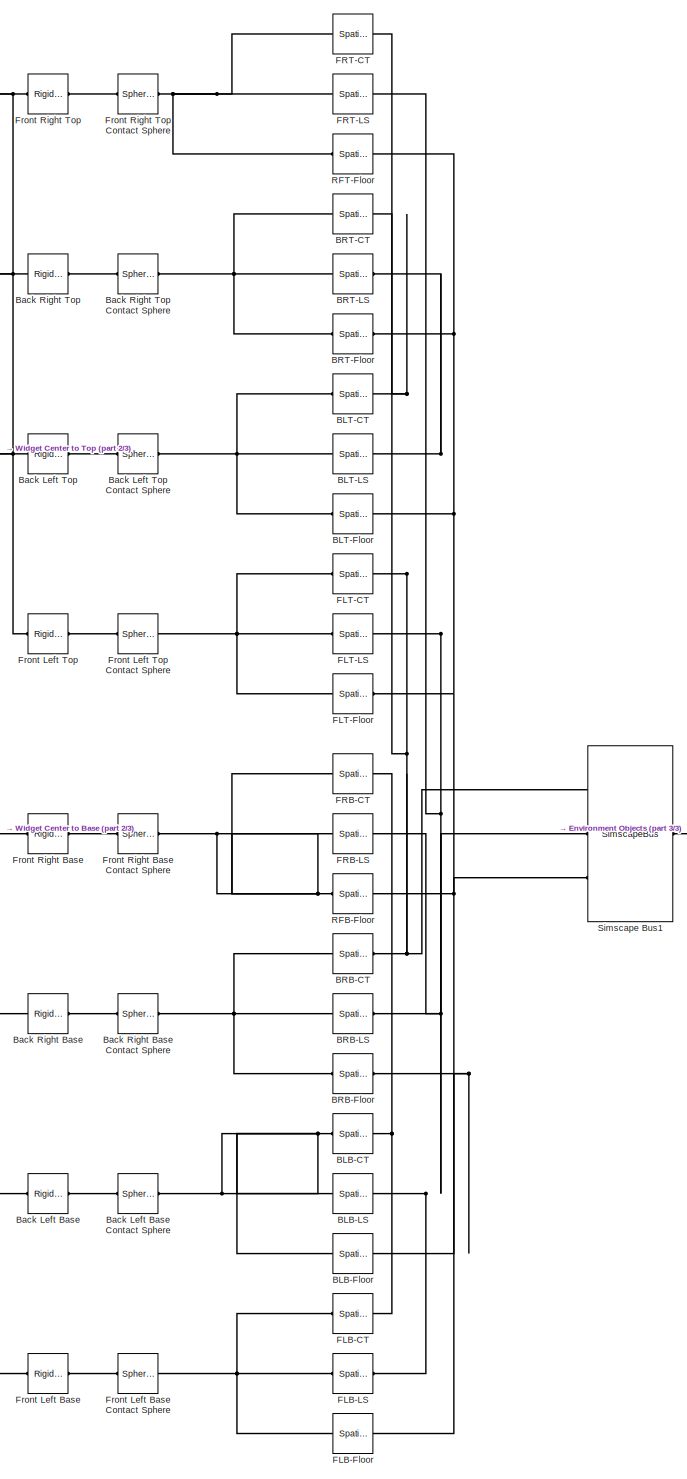
[diagram: Simscape Robot+Environment Plant/Widget to Environment Contact - part 1/3, center side, full height]
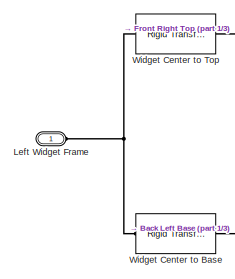
[diagram: Simscape Robot+Environment Plant/Widget to Environment Contact - part 2/3, middle left region]
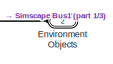
[diagram: Simscape Robot+Environment Plant/Widget to Environment Contact - part 3/3, middle right region]
BLOCK [SubSystem] Simscape Robot+Environment Plant/Widget to Environment Contact
  Ports = [0, 0, 0, 0, 0, 2]
  RequestExecContextInheritance = off
BLOCK [Reference] Simscape Robot+Environment Plant/Widget to Environment Contact/BLB-CT  REF=sm_lib/Forces and
Torques/Spatial
Contact Force
  Ports = [0, 0, 0, 0, 0, 1, 1]
  SourceBlock = sm_lib/Forces and\nTorques/Spatial\nContact Force
  SourceProductName = Multibody
  SourceType = Spatial\nContact Force
BLOCK [Reference] Simscape Robot+Environment Plant/Widget to Environment Contact/BLB-Floor  REF=sm_lib/Forces and
Torques/Spatial
Contact Force
  Ports = [0, 0, 0, 0, 0, 1, 1]
  SourceBlock = sm_lib/Forces and\nTorques/Spatial\nContact Force
  SourceProductName = Multibody
  SourceType = Spatial\nContact Force
BLOCK [Reference] Simscape Robot+Environment Plant/Widget to Environment Contact/BLB-LS  REF=sm_lib/Forces and
Torques/Spatial
Contact Force
  Ports = [0, 0, 0, 0, 0, 1, 1]
  SourceBlock = sm_lib/Forces and\nTorques/Spatial\nContact Force
  SourceProductName = Multibody
  SourceType = Spatial\nContact Force
BLOCK [Reference] Simscape Robot+Environment Plant/Widget to Environment Contact/BLT-CT  REF=sm_lib/Forces and
Torques/Spatial
Contact Force
  Ports = [0, 0, 0, 0, 0, 1, 1]
  SourceBlock = sm_lib/Forces and\nTorques/Spatial\nContact Force
  SourceProductName = Multibody
  SourceType = Spatial\nContact Force
BLOCK [Reference] Simscape Robot+Environment Plant/Widget to Environment Contact/BLT-Floor  REF=sm_lib/Forces and
Torques/Spatial
Contact Force
  Ports = [0, 0, 0, 0, 0, 1, 1]
  SourceBlock = sm_lib/Forces and\nTorques/Spatial\nContact Force
  SourceProductName = Multibody
  SourceType = Spatial\nContact Force
BLOCK [Reference] Simscape Robot+Environment Plant/Widget to Environment Contact/BLT-LS  REF=sm_lib/Forces and
Torques/Spatial
Contact Force
  Ports = [0, 0, 0, 0, 0, 1, 1]
  SourceBlock = sm_lib/Forces and\nTorques/Spatial\nContact Force
  SourceProductName = Multibody
  SourceType = Spatial\nContact Force
BLOCK [Reference] Simscape Robot+Environment Plant/Widget to Environment Contact/BRB-CT  REF=sm_lib/Forces and
Torques/Spatial
Contact Force
  Ports = [0, 0, 0, 0, 0, 1, 1]
  SourceBlock = sm_lib/Forces and\nTorques/Spatial\nContact Force
  SourceProductName = Multibody
  SourceType = Spatial\nContact Force
BLOCK [Reference] Simscape Robot+Environment Plant/Widget to Environment Contact/BRB-Floor  REF=sm_lib/Forces and
Torques/Spatial
Contact Force
  Ports = [0, 0, 0, 0, 0, 1, 1]
  SourceBlock = sm_lib/Forces and\nTorques/Spatial\nContact Force
  SourceProductName = Multibody
  SourceType = Spatial\nContact Force
BLOCK [Reference] Simscape Robot+Environment Plant/Widget to Environment Contact/BRB-LS  REF=sm_lib/Forces and
Torques/Spatial
Contact Force
  Ports = [0, 0, 0, 0, 0, 1, 1]
  SourceBlock = sm_lib/Forces and\nTorques/Spatial\nContact Force
  SourceProductName = Multibody
  SourceType = Spatial\nContact Force
BLOCK [Reference] Simscape Robot+Environment Plant/Widget to Environment Contact/BRT-CT  REF=sm_lib/Forces and
Torques/Spatial
Contact Force
  Ports = [0, 0, 0, 0, 0, 1, 1]
  SourceBlock = sm_lib/Forces and\nTorques/Spatial\nContact Force
  SourceProductName = Multibody
  SourceType = Spatial\nContact Force
BLOCK [Reference] Simscape Robot+Environment Plant/Widget to Environment Contact/BRT-Floor  REF=sm_lib/Forces and
Torques/Spatial
Contact Force
  Ports = [0, 0, 0, 0, 0, 1, 1]
  SourceBlock = sm_lib/Forces and\nTorques/Spatial\nContact Force
  SourceProductName = Multibody
  SourceType = Spatial\nContact Force
BLOCK [Reference] Simscape Robot+Environment Plant/Widget to Environment Contact/BRT-LS  REF=sm_lib/Forces and
Torques/Spatial
Contact Force
  Ports = [0, 0, 0, 0, 0, 1, 1]
  SourceBlock = sm_lib/Forces and\nTorques/Spatial\nContact Force
  SourceProductName = Multibody
  SourceType = Spatial\nContact Force
BLOCK [Reference] Simscape Robot+Environment Plant/Widget to Environment Contact/Back Left Base  REF=sm_lib/Frames and
Transforms/Rigid
Transform
  Ports = [0, 0, 0, 0, 0, 1, 1]
  SourceBlock = sm_lib/Frames and\nTransforms/Rigid\nTransform
  SourceProductName = Multibody
  SourceType = Rigid\nTransform
BLOCK [Reference] Simscape Robot+Environment Plant/Widget to Environment Contact/Back Left Base Contact Sphere  REF=sm_lib/Body Elements/Spherical Solid
  Ports = [0, 0, 0, 0, 0, 1, 1]
  SourceBlock = sm_lib/Body Elements/Spherical Solid
  SourceProductName = Multibody
  SourceType = Spherical Solid
BLOCK [Reference] Simscape Robot+Environment Plant/Widget to Environment Contact/Back Left Top  REF=sm_lib/Frames and
Transforms/Rigid
Transform
  Ports = [0, 0, 0, 0, 0, 1, 1]
  SourceBlock = sm_lib/Frames and\nTransforms/Rigid\nTransform
  SourceProductName = Multibody
  SourceType = Rigid\nTransform
BLOCK [Reference] Simscape Robot+Environment Plant/Widget to Environment Contact/Back Left Top Contact Sphere  REF=sm_lib/Body Elements/Spherical Solid
  Ports = [0, 0, 0, 0, 0, 1, 1]
  SourceBlock = sm_lib/Body Elements/Spherical Solid
  SourceProductName = Multibody
  SourceType = Spherical Solid
BLOCK [Reference] Simscape Robot+Environment Plant/Widget to Environment Contact/Back Right Base  REF=sm_lib/Frames and
Transforms/Rigid
Transform
  Ports = [0, 0, 0, 0, 0, 1, 1]
  SourceBlock = sm_lib/Frames and\nTransforms/Rigid\nTransform
  SourceProductName = Multibody
  SourceType = Rigid\nTransform
BLOCK [Reference] Simscape Robot+Environment Plant/Widget to Environment Contact/Back Right Base Contact Sphere  REF=sm_lib/Body Elements/Spherical Solid
  Ports = [0, 0, 0, 0, 0, 1, 1]
  SourceBlock = sm_lib/Body Elements/Spherical Solid
  SourceProductName = Multibody
  SourceType = Spherical Solid
BLOCK [Reference] Simscape Robot+Environment Plant/Widget to Environment Contact/Back Right Top  REF=sm_lib/Frames and
Transforms/Rigid
Transform
  Ports = [0, 0, 0, 0, 0, 1, 1]
  SourceBlock = sm_lib/Frames and\nTransforms/Rigid\nTransform
  SourceProductName = Multibody
  SourceType = Rigid\nTransform
BLOCK [Reference] Simscape Robot+Environment Plant/Widget to Environment Contact/Back Right Top Contact Sphere  REF=sm_lib/Body Elements/Spherical Solid
  Ports = [0, 0, 0, 0, 0, 1, 1]
  SourceBlock = sm_lib/Body Elements/Spherical Solid
  SourceProductName = Multibody
  SourceType = Spherical Solid
BLOCK [PMIOPort] Simscape Robot+Environment Plant/Widget to Environment Contact/Environment Objects
  Port = 2
  Side = Left
BLOCK [Reference] Simscape Robot+Environment Plant/Widget to Environment Contact/FLB-CT  REF=sm_lib/Forces and
Torques/Spatial
Contact Force
  Ports = [0, 0, 0, 0, 0, 1, 1]
  SourceBlock = sm_lib/Forces and\nTorques/Spatial\nContact Force
  SourceProductName = Multibody
  SourceType = Spatial\nContact Force
BLOCK [Reference] Simscape Robot+Environment Plant/Widget to Environment Contact/FLB-Floor  REF=sm_lib/Forces and
Torques/Spatial
Contact Force
  Ports = [0, 0, 0, 0, 0, 1, 1]
  SourceBlock = sm_lib/Forces and\nTorques/Spatial\nContact Force
  SourceProductName = Multibody
  SourceType = Spatial\nContact Force
BLOCK [Reference] Simscape Robot+Environment Plant/Widget to Environment Contact/FLB-LS  REF=sm_lib/Forces and
Torques/Spatial
Contact Force
  Ports = [0, 0, 0, 0, 0, 1, 1]
  SourceBlock = sm_lib/Forces and\nTorques/Spatial\nContact Force
  SourceProductName = Multibody
  SourceType = Spatial\nContact Force
BLOCK [Reference] Simscape Robot+Environment Plant/Widget to Environment Contact/FLT-CT  REF=sm_lib/Forces and
Torques/Spatial
Contact Force
  Ports = [0, 0, 0, 0, 0, 1, 1]
  SourceBlock = sm_lib/Forces and\nTorques/Spatial\nContact Force
  SourceProductName = Multibody
  SourceType = Spatial\nContact Force
BLOCK [Reference] Simscape Robot+Environment Plant/Widget to Environment Contact/FLT-Floor  REF=sm_lib/Forces and
Torques/Spatial
Contact Force
  Ports = [0, 0, 0, 0, 0, 1, 1]
  SourceBlock = sm_lib/Forces and\nTorques/Spatial\nContact Force
  SourceProductName = Multibody
  SourceType = Spatial\nContact Force
BLOCK [Reference] Simscape Robot+Environment Plant/Widget to Environment Contact/FLT-LS  REF=sm_lib/Forces and
Torques/Spatial
Contact Force
  Ports = [0, 0, 0, 0, 0, 1, 1]
  SourceBlock = sm_lib/Forces and\nTorques/Spatial\nContact Force
  SourceProductName = Multibody
  SourceType = Spatial\nContact Force
BLOCK [Reference] Simscape Robot+Environment Plant/Widget to Environment Contact/FRB-CT  REF=sm_lib/Forces and
Torques/Spatial
Contact Force
  Ports = [0, 0, 0, 0, 0, 1, 1]
  SourceBlock = sm_lib/Forces and\nTorques/Spatial\nContact Force
  SourceProductName = Multibody
  SourceType = Spatial\nContact Force
BLOCK [Reference] Simscape Robot+Environment Plant/Widget to Environment Contact/FRB-LS  REF=sm_lib/Forces and
Torques/Spatial
Contact Force
  Ports = [0, 0, 0, 0, 0, 1, 1]
  SourceBlock = sm_lib/Forces and\nTorques/Spatial\nContact Force
  SourceProductName = Multibody
  SourceType = Spatial\nContact Force
BLOCK [Reference] Simscape Robot+Environment Plant/Widget to Environment Contact/FRT-CT  REF=sm_lib/Forces and
Torques/Spatial
Contact Force
  Ports = [0, 0, 0, 0, 0, 1, 1]
  SourceBlock = sm_lib/Forces and\nTorques/Spatial\nContact Force
  SourceProductName = Multibody
  SourceType = Spatial\nContact Force
BLOCK [Reference] Simscape Robot+Environment Plant/Widget to Environment Contact/FRT-LS  REF=sm_lib/Forces and
Torques/Spatial
Contact Force
  Ports = [0, 0, 0, 0, 0, 1, 1]
  SourceBlock = sm_lib/Forces and\nTorques/Spatial\nContact Force
  SourceProductName = Multibody
  SourceType = Spatial\nContact Force
BLOCK [Reference] Simscape Robot+Environment Plant/Widget to Environment Contact/Front Left Base  REF=sm_lib/Frames and
Transforms/Rigid
Transform
  Ports = [0, 0, 0, 0, 0, 1, 1]
  SourceBlock = sm_lib/Frames and\nTransforms/Rigid\nTransform
  SourceProductName = Multibody
  SourceType = Rigid\nTransform
BLOCK [Reference] Simscape Robot+Environment Plant/Widget to Environment Contact/Front Left Base Contact Sphere  REF=sm_lib/Body Elements/Spherical Solid
  Ports = [0, 0, 0, 0, 0, 1, 1]
  SourceBlock = sm_lib/Body Elements/Spherical Solid
  SourceProductName = Multibody
  SourceType = Spherical Solid
BLOCK [Reference] Simscape Robot+Environment Plant/Widget to Environment Contact/Front Left Top  REF=sm_lib/Frames and
Transforms/Rigid
Transform
  Ports = [0, 0, 0, 0, 0, 1, 1]
  SourceBlock = sm_lib/Frames and\nTransforms/Rigid\nTransform
  SourceProductName = Multibody
  SourceType = Rigid\nTransform
BLOCK [Reference] Simscape Robot+Environment Plant/Widget to Environment Contact/Front Left Top Contact Sphere  REF=sm_lib/Body Elements/Spherical Solid
  Ports = [0, 0, 0, 0, 0, 1, 1]
  SourceBlock = sm_lib/Body Elements/Spherical Solid
  SourceProductName = Multibody
  SourceType = Spherical Solid
BLOCK [Reference] Simscape Robot+Environment Plant/Widget to Environment Contact/Front Right Base  REF=sm_lib/Frames and
Transforms/Rigid
Transform
  Ports = [0, 0, 0, 0, 0, 1, 1]
  SourceBlock = sm_lib/Frames and\nTransforms/Rigid\nTransform
  SourceProductName = Multibody
  SourceType = Rigid\nTransform
BLOCK [Reference] Simscape Robot+Environment Plant/Widget to Environment Contact/Front Right Base Contact Sphere  REF=sm_lib/Body Elements/Spherical Solid
  Ports = [0, 0, 0, 0, 0, 1, 1]
  SourceBlock = sm_lib/Body Elements/Spherical Solid
  SourceProductName = Multibody
  SourceType = Spherical Solid
BLOCK [Reference] Simscape Robot+Environment Plant/Widget to Environment Contact/Front Right Top  REF=sm_lib/Frames and
Transforms/Rigid
Transform
  Ports = [0, 0, 0, 0, 0, 1, 1]
  SourceBlock = sm_lib/Frames and\nTransforms/Rigid\nTransform
  SourceProductName = Multibody
  SourceType = Rigid\nTransform
BLOCK [Reference] Simscape Robot+Environment Plant/Widget to Environment Contact/Front Right Top Contact Sphere  REF=sm_lib/Body Elements/Spherical Solid
  Ports = [0, 0, 0, 0, 0, 1, 1]
  SourceBlock = sm_lib/Body Elements/Spherical Solid
  SourceProductName = Multibody
  SourceType = Spherical Solid
BLOCK [PMIOPort] Simscape Robot+Environment Plant/Widget to Environment Contact/Left Widget Frame
  Side = Left
BLOCK [Reference] Simscape Robot+Environment Plant/Widget to Environment Contact/RFB-Floor  REF=sm_lib/Forces and
Torques/Spatial
Contact Force
  Ports = [0, 0, 0, 0, 0, 1, 1]
  SourceBlock = sm_lib/Forces and\nTorques/Spatial\nContact Force
  SourceProductName = Multibody
  SourceType = Spatial\nContact Force
BLOCK [Reference] Simscape Robot+Environment Plant/Widget to Environment Contact/RFT-Floor  REF=sm_lib/Forces and
Torques/Spatial
Contact Force
  Ports = [0, 0, 0, 0, 0, 1, 1]
  SourceBlock = sm_lib/Forces and\nTorques/Spatial\nContact Force
  SourceProductName = Multibody
  SourceType = Spatial\nContact Force
BLOCK [SimscapeBus] Simscape Robot+Environment Plant/Widget to Environment Contact/Simscape Bus1
  HierarchyStrings = CenterTable;LeftShelf;Floor
  NameLocation = top
  Ports = [0, 0, 0, 0, 0, 3, 1]
BLOCK [Reference] Simscape Robot+Environment Plant/Widget to Environment Contact/Widget Center to Base  REF=sm_lib/Frames and
Transforms/Rigid
Transform
  Ports = [0, 0, 0, 0, 0, 1, 1]
  SourceBlock = sm_lib/Frames and\nTransforms/Rigid\nTransform
  SourceProductName = Multibody
  SourceType = Rigid\nTransform
BLOCK [Reference] Simscape Robot+Environment Plant/Widget to Environment Contact/Widget Center to Top  REF=sm_lib/Frames and
Transforms/Rigid
Transform
  Ports = [0, 0, 0, 0, 0, 1, 1]
  SourceBlock = sm_lib/Frames and\nTransforms/Rigid\nTransform
  SourceProductName = Multibody
  SourceType = Rigid\nTransform
BLOCK [Reference] Simscape Robot+Environment Plant/World  REF=sm_lib/Frames and
Transforms/World Frame
  Ports = [0, 0, 0, 0, 0, 0, 1]
  SourceBlock = sm_lib/Frames and\nTransforms/World Frame
  SourceProductName = Multibody
  SourceType = World Frame
BLOCK [SubSystem] Task & Trajectory Scheduler
  ErrorFcn = Stateflow.Translate.translate
  PermitHierarchicalResolution = ExplicitOnly
  Ports = [4, 4]
  RequestExecContextInheritance = off
  SFBlockType = MATLAB Function
  TreatAsAtomicUnit = on
BLOCK [Demux] Task & Trajectory Scheduler/ Demux 
  Outputs = 1
  Ports = [1, 1]
BLOCK [S-Function] Task & Trajectory Scheduler/ SFunction 
  EnableBusSupport = off
  FunctionName = sf_sfun
  PortCounts = [4 5]
  Ports = [4, 5]
  SFcnIsStateOwnerBlock = off
  SFunctionDeploymentMode = off
  Tag = Stateflow S-Function 1
BLOCK [Terminator] Task & Trajectory Scheduler/ Terminator 
BLOCK [Outport] Task & Trajectory Scheduler/closeGripper
  Port = 2
BLOCK [Inport] Task & Trajectory Scheduler/configSequence
  Port = 2
BLOCK [Inport] Task & Trajectory Scheduler/gripperStateReached
  Port = 4
BLOCK [Inport] Task & Trajectory Scheduler/inputTime
BLOCK [Inport] Task & Trajectory Scheduler/robotConfig
  Port = 3
BLOCK [Outport] Task & Trajectory Scheduler/state
BLOCK [Outport] Task & Trajectory Scheduler/t
  Port = 3
BLOCK [Outport] Task & Trajectory Scheduler/wpts
  Port = 4
BLOCK [SubSystem] Torque Controller
  Ports = [5, 1]
  RequestExecContextInheritance = off
BLOCK [Sum] Torque Controller/Add
  IconShape = rectangular
  Inputs = -+
  Ports = [2, 1]
BLOCK [Sum] Torque Controller/Add1
  IconShape = rectangular
  Ports = [2, 1]
BLOCK [Sum] Torque Controller/Add2
  IconShape = rectangular
  Inputs = +-
  Ports = [2, 1]
BLOCK [Sum] Torque Controller/Add3
  IconShape = rectangular
  Inputs = +-
  Ports = [2, 1]
BLOCK [Sum] Torque Controller/Add4
  IconShape = rectangular
  Ports = [2, 1]
BLOCK [Sum] Torque Controller/Add5
  IconShape = rectangular
  Ports = [2, 1]
BLOCK [Outport] Torque Controller/Applied Torque
  VectorParamsAs1DForOutWhenUnconnected = off
BLOCK [Inport] Torque Controller/Desired Configuration
BLOCK [Inport] Torque Controller/Desired Joint Acceleration
  Port = 3
BLOCK [Inport] Torque Controller/Desired Joint Velocity
  Port = 2
BLOCK [Reference] Torque Controller/Gravity Torque  REF=robotmaniplib/Gravity Torque
  Ports = [1, 1]
  SourceBlock = robotmaniplib/Gravity Torque
  SourceProductName = Robotics System Toolbox
  SourceType = Gravity Torque
BLOCK [Reference] Torque Controller/Joint Space Mass Matrix  REF=robotmaniplib/Joint Space Mass Matrix
  Ports = [1, 1]
  SourceBlock = robotmaniplib/Joint Space Mass Matrix
  SourceProductName = Robotics System Toolbox
  SourceType = Joint Space Mass Matrix
BLOCK [Gain] Torque Controller/Kd
  Gain = 20
BLOCK [Gain] Torque Controller/Kp
  Gain = 100
BLOCK [Inport] Torque Controller/Measured Configuration
  Port = 4
BLOCK [Inport] Torque Controller/Measured Velocities
  Port = 5
BLOCK [Product] Torque Controller/Product
  Multiplication = Matrix(*)
  Ports = [2, 1]
BLOCK [Saturate] Torque Controller/Saturation
  LowerLimit = -100
  UpperLimit = 100
BLOCK [Reference] Torque Controller/Velocity Product Torque  REF=robotmaniplib/Velocity Product Torque
  Ports = [2, 1]
  SourceBlock = robotmaniplib/Velocity Product Torque
  SourceProductName = Robotics System Toolbox
  SourceType = Velocity Product Torque
BLOCK [Reference] Trapezoidal Velocity Profile Trajectory  REF=robotcorelib/Trapezoidal Velocity Profile Trajectory
  Ports = [2, 3]
  SourceBlock = robotcorelib/Trapezoidal Velocity Profile Trajectory
  SourceProductName = Robotics System Toolbox
  SourceType = robotics.slcore.internal.block.TrapVelTrajSys
BLOCK [Outport] qOut
BLOCK [Outport] qdOut
  Port = 2
BLOCK [Outport] qddOut
  Port = 3
ANNOTATION (root): <copyright redacted>
ANNOTATION (root): Simulate a Pick-and-Place Task for an ABB YuMi using RST and Simscape This model is one of three in the example "Model And Control A Manipulator Arm with RST And Simscape". This model is one of three in the example "Model And Control A Manipulator Arm with RST And Simscape". The example shows how to design and simulate a pick-and-place task using an ABB YuMi arm. It also shows how to model a syste...<+512ch>
ANNOTATION (root): System Dynamics
ANNOTATION (root): Task Scheduling & Trajectory Generation
ANNOTATION Simscape Robot+Environment Plant: Contact Models
ANNOTATION Simscape Robot+Environment Plant: Manipulator & Environment Dynamics
ANNOTATION Torque Controller: qe
ANNOTATION Torque Controller: dqe
ANNOTATION Torque Controller: MassMatrix(ddqd - Kd*dqe - Kp*qe)
ANNOTATION Torque Controller: Velocity Product Torque + Gravity Torque
LINE Clock:1 -> Task & Trajectory Scheduler:1
LINE Constant:1 -> Task & Trajectory Scheduler:2
LINE Simscape Robot+Environment Plant/ABB YUMI Plant Model/Applied Joint Torques:1 -> Simscape Robot+Environment Plant/ABB YUMI Plant Model/tau_Demux:1
LINE Simscape Robot+Environment Plant/ABB YUMI Plant Model/From_tau_Joint02:1 -> Simscape Robot+Environment Plant/ABB YUMI Plant Model/SPS tau_Joint02:1
LINE Simscape Robot+Environment Plant/ABB YUMI Plant Model/From_tau_Joint03:1 -> Simscape Robot+Environment Plant/ABB YUMI Plant Model/SPS tau_Joint03:1
LINE Simscape Robot+Environment Plant/ABB YUMI Plant Model/From_tau_Joint04:1 -> Simscape Robot+Environment Plant/ABB YUMI Plant Model/SPS tau_Joint04:1
LINE Simscape Robot+Environment Plant/ABB YUMI Plant Model/From_tau_Joint05:1 -> Simscape Robot+Environment Plant/ABB YUMI Plant Model/SPS tau_Joint05:1
LINE Simscape Robot+Environment Plant/ABB YUMI Plant Model/From_tau_Joint06:1 -> Simscape Robot+Environment Plant/ABB YUMI Plant Model/SPS tau_Joint06:1
LINE Simscape Robot+Environment Plant/ABB YUMI Plant Model/From_tau_Joint07:1 -> Simscape Robot+Environment Plant/ABB YUMI Plant Model/SPS tau_Joint07:1
LINE Simscape Robot+Environment Plant/ABB YUMI Plant Model/From_tau_Joint08:1 -> Simscape Robot+Environment Plant/ABB YUMI Plant Model/SPS tau_Joint08:1
LINE Simscape Robot+Environment Plant/ABB YUMI Plant Model/From_tau_Joint10:1 -> Simscape Robot+Environment Plant/ABB YUMI Plant Model/SPS tau_Joint10:1
LINE Simscape Robot+Environment Plant/ABB YUMI Plant Model/From_tau_Joint11:1 -> Simscape Robot+Environment Plant/ABB YUMI Plant Model/SPS tau_Joint11:1
LINE Simscape Robot+Environment Plant/ABB YUMI Plant Model/From_tau_Joint12:1 -> Simscape Robot+Environment Plant/ABB YUMI Plant Model/SPS tau_Joint12:1
LINE Simscape Robot+Environment Plant/ABB YUMI Plant Model/From_tau_Joint13:1 -> Simscape Robot+Environment Plant/ABB YUMI Plant Model/SPS tau_Joint13:1
LINE Simscape Robot+Environment Plant/ABB YUMI Plant Model/From_tau_Joint14:1 -> Simscape Robot+Environment Plant/ABB YUMI Plant Model/SPS tau_Joint14:1
LINE Simscape Robot+Environment Plant/ABB YUMI Plant Model/From_tau_Joint15:1 -> Simscape Robot+Environment Plant/ABB YUMI Plant Model/SPS tau_Joint15:1
LINE Simscape Robot+Environment Plant/ABB YUMI Plant Model/From_tau_Joint16:1 -> Simscape Robot+Environment Plant/ABB YUMI Plant Model/SPS tau_Joint16:1
LINE Simscape Robot+Environment Plant/ABB YUMI Plant Model/From_tau_Joint17:1 -> Simscape Robot+Environment Plant/ABB YUMI Plant Model/SPS tau_Joint17:1
LINE Simscape Robot+Environment Plant/ABB YUMI Plant Model/From_tau_Joint18:1 -> Simscape Robot+Environment Plant/ABB YUMI Plant Model/SPS tau_Joint18:1
LINE Simscape Robot+Environment Plant/ABB YUMI Plant Model/From_tau_Joint20:1 -> Simscape Robot+Environment Plant/ABB YUMI Plant Model/SPS tau_Joint20:1
LINE Simscape Robot+Environment Plant/ABB YUMI Plant Model/From_tau_Joint21:1 -> Simscape Robot+Environment Plant/ABB YUMI Plant Model/SPS tau_Joint21:1
LINE Simscape Robot+Environment Plant/ABB YUMI Plant Model/PSS Q_Joint02:1 -> Simscape Robot+Environment Plant/ABB YUMI Plant Model/Goto_Q_Joint02:1
LINE Simscape Robot+Environment Plant/ABB YUMI Plant Model/PSS Q_Joint03:1 -> Simscape Robot+Environment Plant/ABB YUMI Plant Model/Goto_Q_Joint03:1
LINE Simscape Robot+Environment Plant/ABB YUMI Plant Model/PSS Q_Joint04:1 -> Simscape Robot+Environment Plant/ABB YUMI Plant Model/Goto_Q_Joint04:1
LINE Simscape Robot+Environment Plant/ABB YUMI Plant Model/PSS Q_Joint05:1 -> Simscape Robot+Environment Plant/ABB YUMI Plant Model/Goto_Q_Joint05:1
LINE Simscape Robot+Environment Plant/ABB YUMI Plant Model/PSS Q_Joint06:1 -> Simscape Robot+Environment Plant/ABB YUMI Plant Model/Goto_Q_Joint06:1
LINE Simscape Robot+Environment Plant/ABB YUMI Plant Model/PSS Q_Joint07:1 -> Simscape Robot+Environment Plant/ABB YUMI Plant Model/Goto_Q_Joint07:1
LINE Simscape Robot+Environment Plant/ABB YUMI Plant Model/PSS Q_Joint08:1 -> Simscape Robot+Environment Plant/ABB YUMI Plant Model/Goto_Q_Joint08:1
LINE Simscape Robot+Environment Plant/ABB YUMI Plant Model/PSS Q_Joint10:1 -> Simscape Robot+Environment Plant/ABB YUMI Plant Model/Goto_Q_Joint10:1
LINE Simscape Robot+Environment Plant/ABB YUMI Plant Model/PSS Q_Joint11:1 -> Simscape Robot+Environment Plant/ABB YUMI Plant Model/Goto_Q_Joint11:1
LINE Simscape Robot+Environment Plant/ABB YUMI Plant Model/PSS Q_Joint12:1 -> Simscape Robot+Environment Plant/ABB YUMI Plant Model/Goto_Q_Joint12:1
LINE Simscape Robot+Environment Plant/ABB YUMI Plant Model/PSS Q_Joint13:1 -> Simscape Robot+Environment Plant/ABB YUMI Plant Model/Goto_Q_Joint13:1
LINE Simscape Robot+Environment Plant/ABB YUMI Plant Model/PSS Q_Joint14:1 -> Simscape Robot+Environment Plant/ABB YUMI Plant Model/Goto_Q_Joint14:1
LINE Simscape Robot+Environment Plant/ABB YUMI Plant Model/PSS Q_Joint15:1 -> Simscape Robot+Environment Plant/ABB YUMI Plant Model/Goto_Q_Joint15:1
LINE Simscape Robot+Environment Plant/ABB YUMI Plant Model/PSS Q_Joint16:1 -> Simscape Robot+Environment Plant/ABB YUMI Plant Model/Goto_Q_Joint16:1
LINE Simscape Robot+Environment Plant/ABB YUMI Plant Model/PSS Q_Joint17:1 -> Simscape Robot+Environment Plant/ABB YUMI Plant Model/Goto_Q_Joint17:1
LINE Simscape Robot+Environment Plant/ABB YUMI Plant Model/PSS Q_Joint18:1 -> Simscape Robot+Environment Plant/ABB YUMI Plant Model/Goto_Q_Joint18:1
LINE Simscape Robot+Environment Plant/ABB YUMI Plant Model/PSS Q_Joint20:1 -> Simscape Robot+Environment Plant/ABB YUMI Plant Model/Goto_Q_Joint20:1
LINE Simscape Robot+Environment Plant/ABB YUMI Plant Model/PSS Q_Joint21:1 -> Simscape Robot+Environment Plant/ABB YUMI Plant Model/Goto_Q_Joint21:1
LINE Simscape Robot+Environment Plant/ABB YUMI Plant Model/PSS Qddot_Joint02:1 -> Simscape Robot+Environment Plant/ABB YUMI Plant Model/Goto_Qddot_Joint02:1
LINE Simscape Robot+Environment Plant/ABB YUMI Plant Model/PSS Qddot_Joint03:1 -> Simscape Robot+Environment Plant/ABB YUMI Plant Model/Goto_Qddot_Joint03:1
LINE Simscape Robot+Environment Plant/ABB YUMI Plant Model/PSS Qddot_Joint04:1 -> Simscape Robot+Environment Plant/ABB YUMI Plant Model/Goto_Qddot_Joint04:1
LINE Simscape Robot+Environment Plant/ABB YUMI Plant Model/PSS Qddot_Joint05:1 -> Simscape Robot+Environment Plant/ABB YUMI Plant Model/Goto_Qddot_Joint05:1
LINE Simscape Robot+Environment Plant/ABB YUMI Plant Model/PSS Qddot_Joint06:1 -> Simscape Robot+Environment Plant/ABB YUMI Plant Model/Goto_Qddot_Joint06:1
LINE Simscape Robot+Environment Plant/ABB YUMI Plant Model/PSS Qddot_Joint07:1 -> Simscape Robot+Environment Plant/ABB YUMI Plant Model/Goto_Qddot_Joint07:1
LINE Simscape Robot+Environment Plant/ABB YUMI Plant Model/PSS Qddot_Joint08:1 -> Simscape Robot+Environment Plant/ABB YUMI Plant Model/Goto_Qddot_Joint08:1
LINE Simscape Robot+Environment Plant/ABB YUMI Plant Model/PSS Qddot_Joint10:1 -> Simscape Robot+Environment Plant/ABB YUMI Plant Model/Goto_Qddot_Joint10:1
LINE Simscape Robot+Environment Plant/ABB YUMI Plant Model/PSS Qddot_Joint11:1 -> Simscape Robot+Environment Plant/ABB YUMI Plant Model/Goto_Qddot_Joint11:1
LINE Simscape Robot+Environment Plant/ABB YUMI Plant Model/PSS Qddot_Joint12:1 -> Simscape Robot+Environment Plant/ABB YUMI Plant Model/Goto_Qddot_Joint12:1
LINE Simscape Robot+Environment Plant/ABB YUMI Plant Model/PSS Qddot_Joint13:1 -> Simscape Robot+Environment Plant/ABB YUMI Plant Model/Goto_Qddot_Joint13:1
LINE Simscape Robot+Environment Plant/ABB YUMI Plant Model/PSS Qddot_Joint14:1 -> Simscape Robot+Environment Plant/ABB YUMI Plant Model/Goto_Qddot_Joint14:1
LINE Simscape Robot+Environment Plant/ABB YUMI Plant Model/PSS Qddot_Joint15:1 -> Simscape Robot+Environment Plant/ABB YUMI Plant Model/Goto_Qddot_Joint15:1
LINE Simscape Robot+Environment Plant/ABB YUMI Plant Model/PSS Qddot_Joint16:1 -> Simscape Robot+Environment Plant/ABB YUMI Plant Model/Goto_Qddot_Joint16:1
LINE Simscape Robot+Environment Plant/ABB YUMI Plant Model/PSS Qddot_Joint17:1 -> Simscape Robot+Environment Plant/ABB YUMI Plant Model/Goto_Qddot_Joint17:1
LINE Simscape Robot+Environment Plant/ABB YUMI Plant Model/PSS Qddot_Joint18:1 -> Simscape Robot+Environment Plant/ABB YUMI Plant Model/Goto_Qddot_Joint18:1
LINE Simscape Robot+Environment Plant/ABB YUMI Plant Model/PSS Qddot_Joint20:1 -> Simscape Robot+Environment Plant/ABB YUMI Plant Model/Goto_Qddot_Joint20:1
LINE Simscape Robot+Environment Plant/ABB YUMI Plant Model/PSS Qddot_Joint21:1 -> Simscape Robot+Environment Plant/ABB YUMI Plant Model/Goto_Qddot_Joint21:1
LINE Simscape Robot+Environment Plant/ABB YUMI Plant Model/PSS Qdot_Joint02:1 -> Simscape Robot+Environment Plant/ABB YUMI Plant Model/Goto_Qdot_Joint02:1
LINE Simscape Robot+Environment Plant/ABB YUMI Plant Model/PSS Qdot_Joint03:1 -> Simscape Robot+Environment Plant/ABB YUMI Plant Model/Goto_Qdot_Joint03:1
LINE Simscape Robot+Environment Plant/ABB YUMI Plant Model/PSS Qdot_Joint04:1 -> Simscape Robot+Environment Plant/ABB YUMI Plant Model/Goto_Qdot_Joint04:1
LINE Simscape Robot+Environment Plant/ABB YUMI Plant Model/PSS Qdot_Joint05:1 -> Simscape Robot+Environment Plant/ABB YUMI Plant Model/Goto_Qdot_Joint05:1
LINE Simscape Robot+Environment Plant/ABB YUMI Plant Model/PSS Qdot_Joint06:1 -> Simscape Robot+Environment Plant/ABB YUMI Plant Model/Goto_Qdot_Joint06:1
LINE Simscape Robot+Environment Plant/ABB YUMI Plant Model/PSS Qdot_Joint07:1 -> Simscape Robot+Environment Plant/ABB YUMI Plant Model/Goto_Qdot_Joint07:1
LINE Simscape Robot+Environment Plant/ABB YUMI Plant Model/PSS Qdot_Joint08:1 -> Simscape Robot+Environment Plant/ABB YUMI Plant Model/Goto_Qdot_Joint08:1
LINE Simscape Robot+Environment Plant/ABB YUMI Plant Model/PSS Qdot_Joint10:1 -> Simscape Robot+Environment Plant/ABB YUMI Plant Model/Goto_Qdot_Joint10:1
LINE Simscape Robot+Environment Plant/ABB YUMI Plant Model/PSS Qdot_Joint11:1 -> Simscape Robot+Environment Plant/ABB YUMI Plant Model/Goto_Qdot_Joint11:1
LINE Simscape Robot+Environment Plant/ABB YUMI Plant Model/PSS Qdot_Joint12:1 -> Simscape Robot+Environment Plant/ABB YUMI Plant Model/Goto_Qdot_Joint12:1
LINE Simscape Robot+Environment Plant/ABB YUMI Plant Model/PSS Qdot_Joint13:1 -> Simscape Robot+Environment Plant/ABB YUMI Plant Model/Goto_Qdot_Joint13:1
LINE Simscape Robot+Environment Plant/ABB YUMI Plant Model/PSS Qdot_Joint14:1 -> Simscape Robot+Environment Plant/ABB YUMI Plant Model/Goto_Qdot_Joint14:1
LINE Simscape Robot+Environment Plant/ABB YUMI Plant Model/PSS Qdot_Joint15:1 -> Simscape Robot+Environment Plant/ABB YUMI Plant Model/Goto_Qdot_Joint15:1
LINE Simscape Robot+Environment Plant/ABB YUMI Plant Model/PSS Qdot_Joint16:1 -> Simscape Robot+Environment Plant/ABB YUMI Plant Model/Goto_Qdot_Joint16:1
LINE Simscape Robot+Environment Plant/ABB YUMI Plant Model/PSS Qdot_Joint17:1 -> Simscape Robot+Environment Plant/ABB YUMI Plant Model/Goto_Qdot_Joint17:1
LINE Simscape Robot+Environment Plant/ABB YUMI Plant Model/PSS Qdot_Joint18:1 -> Simscape Robot+Environment Plant/ABB YUMI Plant Model/Goto_Qdot_Joint18:1
LINE Simscape Robot+Environment Plant/ABB YUMI Plant Model/PSS Qdot_Joint20:1 -> Simscape Robot+Environment Plant/ABB YUMI Plant Model/Goto_Qdot_Joint20:1
LINE Simscape Robot+Environment Plant/ABB YUMI Plant Model/PSS Qdot_Joint21:1 -> Simscape Robot+Environment Plant/ABB YUMI Plant Model/Goto_Qdot_Joint21:1
LINE Simscape Robot+Environment Plant/ABB YUMI Plant Model/Q_Joint02:1 -> Simscape Robot+Environment Plant/ABB YUMI Plant Model/Q_Mux:1
LINE Simscape Robot+Environment Plant/ABB YUMI Plant Model/Q_Joint03:1 -> Simscape Robot+Environment Plant/ABB YUMI Plant Model/Q_Mux:2
LINE Simscape Robot+Environment Plant/ABB YUMI Plant Model/Q_Joint04:1 -> Simscape Robot+Environment Plant/ABB YUMI Plant Model/Q_Mux:3
LINE Simscape Robot+Environment Plant/ABB YUMI Plant Model/Q_Joint05:1 -> Simscape Robot+Environment Plant/ABB YUMI Plant Model/Q_Mux:4
LINE Simscape Robot+Environment Plant/ABB YUMI Plant Model/Q_Joint06:1 -> Simscape Robot+Environment Plant/ABB YUMI Plant Model/Q_Mux:5
LINE Simscape Robot+Environment Plant/ABB YUMI Plant Model/Q_Joint07:1 -> Simscape Robot+Environment Plant/ABB YUMI Plant Model/Q_Mux:6
LINE Simscape Robot+Environment Plant/ABB YUMI Plant Model/Q_Joint08:1 -> Simscape Robot+Environment Plant/ABB YUMI Plant Model/Q_Mux:7
LINE Simscape Robot+Environment Plant/ABB YUMI Plant Model/Q_Joint10:1 -> Simscape Robot+Environment Plant/ABB YUMI Plant Model/Q_Mux:8
LINE Simscape Robot+Environment Plant/ABB YUMI Plant Model/Q_Joint11:1 -> Simscape Robot+Environment Plant/ABB YUMI Plant Model/Q_Mux:9
LINE Simscape Robot+Environment Plant/ABB YUMI Plant Model/Q_Joint12:1 -> Simscape Robot+Environment Plant/ABB YUMI Plant Model/Q_Mux:10
LINE Simscape Robot+Environment Plant/ABB YUMI Plant Model/Q_Joint13:1 -> Simscape Robot+Environment Plant/ABB YUMI Plant Model/Q_Mux:11
LINE Simscape Robot+Environment Plant/ABB YUMI Plant Model/Q_Joint14:1 -> Simscape Robot+Environment Plant/ABB YUMI Plant Model/Q_Mux:12
LINE Simscape Robot+Environment Plant/ABB YUMI Plant Model/Q_Joint15:1 -> Simscape Robot+Environment Plant/ABB YUMI Plant Model/Q_Mux:13
LINE Simscape Robot+Environment Plant/ABB YUMI Plant Model/Q_Joint16:1 -> Simscape Robot+Environment Plant/ABB YUMI Plant Model/Q_Mux:14
LINE Simscape Robot+Environment Plant/ABB YUMI Plant Model/Q_Joint17:1 -> Simscape Robot+Environment Plant/ABB YUMI Plant Model/Q_Mux:15
LINE Simscape Robot+Environment Plant/ABB YUMI Plant Model/Q_Joint18:1 -> Simscape Robot+Environment Plant/ABB YUMI Plant Model/Q_Mux:16
LINE Simscape Robot+Environment Plant/ABB YUMI Plant Model/Q_Joint20:1 -> Simscape Robot+Environment Plant/ABB YUMI Plant Model/Q_Mux:17
LINE Simscape Robot+Environment Plant/ABB YUMI Plant Model/Q_Joint21:1 -> Simscape Robot+Environment Plant/ABB YUMI Plant Model/Q_Mux:18
LINE Simscape Robot+Environment Plant/ABB YUMI Plant Model/Q_Mux:1 -> Simscape Robot+Environment Plant/ABB YUMI Plant Model/Measured Position:1
LINE Simscape Robot+Environment Plant/ABB YUMI Plant Model/Qddot_Joint02:1 -> Simscape Robot+Environment Plant/ABB YUMI Plant Model/Qddot_Mux:1
LINE Simscape Robot+Environment Plant/ABB YUMI Plant Model/Qddot_Joint03:1 -> Simscape Robot+Environment Plant/ABB YUMI Plant Model/Qddot_Mux:2
LINE Simscape Robot+Environment Plant/ABB YUMI Plant Model/Qddot_Joint04:1 -> Simscape Robot+Environment Plant/ABB YUMI Plant Model/Qddot_Mux:3
LINE Simscape Robot+Environment Plant/ABB YUMI Plant Model/Qddot_Joint05:1 -> Simscape Robot+Environment Plant/ABB YUMI Plant Model/Qddot_Mux:4
LINE Simscape Robot+Environment Plant/ABB YUMI Plant Model/Qddot_Joint06:1 -> Simscape Robot+Environment Plant/ABB YUMI Plant Model/Qddot_Mux:5
LINE Simscape Robot+Environment Plant/ABB YUMI Plant Model/Qddot_Joint07:1 -> Simscape Robot+Environment Plant/ABB YUMI Plant Model/Qddot_Mux:6
LINE Simscape Robot+Environment Plant/ABB YUMI Plant Model/Qddot_Joint08:1 -> Simscape Robot+Environment Plant/ABB YUMI Plant Model/Qddot_Mux:7
LINE Simscape Robot+Environment Plant/ABB YUMI Plant Model/Qddot_Joint10:1 -> Simscape Robot+Environment Plant/ABB YUMI Plant Model/Qddot_Mux:8
LINE Simscape Robot+Environment Plant/ABB YUMI Plant Model/Qddot_Joint11:1 -> Simscape Robot+Environment Plant/ABB YUMI Plant Model/Qddot_Mux:9
LINE Simscape Robot+Environment Plant/ABB YUMI Plant Model/Qddot_Joint12:1 -> Simscape Robot+Environment Plant/ABB YUMI Plant Model/Qddot_Mux:10
LINE Simscape Robot+Environment Plant/ABB YUMI Plant Model/Qddot_Joint13:1 -> Simscape Robot+Environment Plant/ABB YUMI Plant Model/Qddot_Mux:11
LINE Simscape Robot+Environment Plant/ABB YUMI Plant Model/Qddot_Joint14:1 -> Simscape Robot+Environment Plant/ABB YUMI Plant Model/Qddot_Mux:12
LINE Simscape Robot+Environment Plant/ABB YUMI Plant Model/Qddot_Joint15:1 -> Simscape Robot+Environment Plant/ABB YUMI Plant Model/Qddot_Mux:13
LINE Simscape Robot+Environment Plant/ABB YUMI Plant Model/Qddot_Joint16:1 -> Simscape Robot+Environment Plant/ABB YUMI Plant Model/Qddot_Mux:14
LINE Simscape Robot+Environment Plant/ABB YUMI Plant Model/Qddot_Joint17:1 -> Simscape Robot+Environment Plant/ABB YUMI Plant Model/Qddot_Mux:15
LINE Simscape Robot+Environment Plant/ABB YUMI Plant Model/Qddot_Joint18:1 -> Simscape Robot+Environment Plant/ABB YUMI Plant Model/Qddot_Mux:16
LINE Simscape Robot+Environment Plant/ABB YUMI Plant Model/Qddot_Joint20:1 -> Simscape Robot+Environment Plant/ABB YUMI Plant Model/Qddot_Mux:17
LINE Simscape Robot+Environment Plant/ABB YUMI Plant Model/Qddot_Joint21:1 -> Simscape Robot+Environment Plant/ABB YUMI Plant Model/Qddot_Mux:18
LINE Simscape Robot+Environment Plant/ABB YUMI Plant Model/Qddot_Mux:1 -> Simscape Robot+Environment Plant/ABB YUMI Plant Model/Measured Acceleration:1
LINE Simscape Robot+Environment Plant/ABB YUMI Plant Model/Qdot_Joint02:1 -> Simscape Robot+Environment Plant/ABB YUMI Plant Model/Qdot_Mux:1
LINE Simscape Robot+Environment Plant/ABB YUMI Plant Model/Qdot_Joint03:1 -> Simscape Robot+Environment Plant/ABB YUMI Plant Model/Qdot_Mux:2
LINE Simscape Robot+Environment Plant/ABB YUMI Plant Model/Qdot_Joint04:1 -> Simscape Robot+Environment Plant/ABB YUMI Plant Model/Qdot_Mux:3
LINE Simscape Robot+Environment Plant/ABB YUMI Plant Model/Qdot_Joint05:1 -> Simscape Robot+Environment Plant/ABB YUMI Plant Model/Qdot_Mux:4
LINE Simscape Robot+Environment Plant/ABB YUMI Plant Model/Qdot_Joint06:1 -> Simscape Robot+Environment Plant/ABB YUMI Plant Model/Qdot_Mux:5
LINE Simscape Robot+Environment Plant/ABB YUMI Plant Model/Qdot_Joint07:1 -> Simscape Robot+Environment Plant/ABB YUMI Plant Model/Qdot_Mux:6
LINE Simscape Robot+Environment Plant/ABB YUMI Plant Model/Qdot_Joint08:1 -> Simscape Robot+Environment Plant/ABB YUMI Plant Model/Qdot_Mux:7
LINE Simscape Robot+Environment Plant/ABB YUMI Plant Model/Qdot_Joint10:1 -> Simscape Robot+Environment Plant/ABB YUMI Plant Model/Qdot_Mux:8
LINE Simscape Robot+Environment Plant/ABB YUMI Plant Model/Qdot_Joint11:1 -> Simscape Robot+Environment Plant/ABB YUMI Plant Model/Qdot_Mux:9
LINE Simscape Robot+Environment Plant/ABB YUMI Plant Model/Qdot_Joint12:1 -> Simscape Robot+Environment Plant/ABB YUMI Plant Model/Qdot_Mux:10
LINE Simscape Robot+Environment Plant/ABB YUMI Plant Model/Qdot_Joint13:1 -> Simscape Robot+Environment Plant/ABB YUMI Plant Model/Qdot_Mux:11
LINE Simscape Robot+Environment Plant/ABB YUMI Plant Model/Qdot_Joint14:1 -> Simscape Robot+Environment Plant/ABB YUMI Plant Model/Qdot_Mux:12
LINE Simscape Robot+Environment Plant/ABB YUMI Plant Model/Qdot_Joint15:1 -> Simscape Robot+Environment Plant/ABB YUMI Plant Model/Qdot_Mux:13
LINE Simscape Robot+Environment Plant/ABB YUMI Plant Model/Qdot_Joint16:1 -> Simscape Robot+Environment Plant/ABB YUMI Plant Model/Qdot_Mux:14
LINE Simscape Robot+Environment Plant/ABB YUMI Plant Model/Qdot_Joint17:1 -> Simscape Robot+Environment Plant/ABB YUMI Plant Model/Qdot_Mux:15
LINE Simscape Robot+Environment Plant/ABB YUMI Plant Model/Qdot_Joint18:1 -> Simscape Robot+Environment Plant/ABB YUMI Plant Model/Qdot_Mux:16
LINE Simscape Robot+Environment Plant/ABB YUMI Plant Model/Qdot_Joint20:1 -> Simscape Robot+Environment Plant/ABB YUMI Plant Model/Qdot_Mux:17
LINE Simscape Robot+Environment Plant/ABB YUMI Plant Model/Qdot_Joint21:1 -> Simscape Robot+Environment Plant/ABB YUMI Plant Model/Qdot_Mux:18
LINE Simscape Robot+Environment Plant/ABB YUMI Plant Model/Qdot_Mux:1 -> Simscape Robot+Environment Plant/ABB YUMI Plant Model/Measured Velocity:1
LINE Simscape Robot+Environment Plant/ABB YUMI Plant Model/tau_Demux:1 -> Simscape Robot+Environment Plant/ABB YUMI Plant Model/tau_Joint02:1
LINE Simscape Robot+Environment Plant/ABB YUMI Plant Model/tau_Demux:10 -> Simscape Robot+Environment Plant/ABB YUMI Plant Model/tau_Joint12:1
LINE Simscape Robot+Environment Plant/ABB YUMI Plant Model/tau_Demux:11 -> Simscape Robot+Environment Plant/ABB YUMI Plant Model/tau_Joint13:1
LINE Simscape Robot+Environment Plant/ABB YUMI Plant Model/tau_Demux:12 -> Simscape Robot+Environment Plant/ABB YUMI Plant Model/tau_Joint14:1
LINE Simscape Robot+Environment Plant/ABB YUMI Plant Model/tau_Demux:13 -> Simscape Robot+Environment Plant/ABB YUMI Plant Model/tau_Joint15:1
LINE Simscape Robot+Environment Plant/ABB YUMI Plant Model/tau_Demux:14 -> Simscape Robot+Environment Plant/ABB YUMI Plant Model/tau_Joint16:1
LINE Simscape Robot+Environment Plant/ABB YUMI Plant Model/tau_Demux:15 -> Simscape Robot+Environment Plant/ABB YUMI Plant Model/tau_Joint17:1
LINE Simscape Robot+Environment Plant/ABB YUMI Plant Model/tau_Demux:16 -> Simscape Robot+Environment Plant/ABB YUMI Plant Model/tau_Joint18:1
LINE Simscape Robot+Environment Plant/ABB YUMI Plant Model/tau_Demux:17 -> Simscape Robot+Environment Plant/ABB YUMI Plant Model/Left Gripper Force1:1
LINE Simscape Robot+Environment Plant/ABB YUMI Plant Model/tau_Demux:18 -> Simscape Robot+Environment Plant/ABB YUMI Plant Model/Right Gripper Force1:1
LINE Simscape Robot+Environment Plant/ABB YUMI Plant Model/tau_Demux:2 -> Simscape Robot+Environment Plant/ABB YUMI Plant Model/tau_Joint03:1
LINE Simscape Robot+Environment Plant/ABB YUMI Plant Model/tau_Demux:3 -> Simscape Robot+Environment Plant/ABB YUMI Plant Model/tau_Joint04:1
LINE Simscape Robot+Environment Plant/ABB YUMI Plant Model/tau_Demux:4 -> Simscape Robot+Environment Plant/ABB YUMI Plant Model/tau_Joint05:1
LINE Simscape Robot+Environment Plant/ABB YUMI Plant Model/tau_Demux:5 -> Simscape Robot+Environment Plant/ABB YUMI Plant Model/tau_Joint06:1
LINE Simscape Robot+Environment Plant/ABB YUMI Plant Model/tau_Demux:6 -> Simscape Robot+Environment Plant/ABB YUMI Plant Model/tau_Joint07:1
LINE Simscape Robot+Environment Plant/ABB YUMI Plant Model/tau_Demux:7 -> Simscape Robot+Environment Plant/ABB YUMI Plant Model/tau_Joint08:1
LINE Simscape Robot+Environment Plant/ABB YUMI Plant Model/tau_Demux:8 -> Simscape Robot+Environment Plant/ABB YUMI Plant Model/tau_Joint10:1
LINE Simscape Robot+Environment Plant/ABB YUMI Plant Model/tau_Demux:9 -> Simscape Robot+Environment Plant/ABB YUMI Plant Model/tau_Joint11:1
NET Simscape Robot+Environment Plant/ABB YUMI Plant Model:1 -> Simscape Robot+Environment Plant/Gripper Sensor:2, Simscape Robot+Environment Plant/Measured Position:1
LINE Simscape Robot+Environment Plant/ABB YUMI Plant Model:2 -> Simscape Robot+Environment Plant/Measured Velocity:1
LINE Simscape Robot+Environment Plant/ABB YUMI Plant Model:3 -> Simscape Robot+Environment Plant/Measured Acceleration:1
LINE Simscape Robot+Environment Plant/Applied Joint Torques:1 -> Simscape Robot+Environment Plant/Gripper Control:2
NET Simscape Robot+Environment Plant/Close Gripper:1 -> Simscape Robot+Environment Plant/Gripper Control:1, Simscape Robot+Environment Plant/Gripper Sensor:1
LINE Simscape Robot+Environment Plant/Gripper Control/Cast To Double:1 -> Simscape Robot+Environment Plant/Gripper Control/Gain2:1
LINE Simscape Robot+Environment Plant/Gripper Control/Controller Joint Torques and Forces:1 -> Simscape Robot+Environment Plant/Gripper Control/tau_Demux:1
LINE Simscape Robot+Environment Plant/Gripper Control/Gain1:1 -> Simscape Robot+Environment Plant/Gripper Control/Sum:2
NET Simscape Robot+Environment Plant/Gripper Control/Gain2:1 -> Simscape Robot+Environment Plant/Gripper Control/Gain1:1, Simscape Robot+Environment Plant/Gripper Control/Sum1:2
LINE Simscape Robot+Environment Plant/Gripper Control/Gripper Close Command:1 -> Simscape Robot+Environment Plant/Gripper Control/Cast To Double:1
LINE Simscape Robot+Environment Plant/Gripper Control/Mux:1 -> Simscape Robot+Environment Plant/Gripper Control/Modified Joint Torques and Forces:1
LINE Simscape Robot+Environment Plant/Gripper Control/Sum1:1 -> Simscape Robot+Environment Plant/Gripper Control/Mux:18
LINE Simscape Robot+Environment Plant/Gripper Control/Sum:1 -> Simscape Robot+Environment Plant/Gripper Control/Mux:17
LINE Simscape Robot+Environment Plant/Gripper Control/tau_Demux:1 -> Simscape Robot+Environment Plant/Gripper Control/Mux:1
LINE Simscape Robot+Environment Plant/Gripper Control/tau_Demux:10 -> Simscape Robot+Environment Plant/Gripper Control/Mux:10
LINE Simscape Robot+Environment Plant/Gripper Control/tau_Demux:11 -> Simscape Robot+Environment Plant/Gripper Control/Mux:11
LINE Simscape Robot+Environment Plant/Gripper Control/tau_Demux:12 -> Simscape Robot+Environment Plant/Gripper Control/Mux:12
LINE Simscape Robot+Environment Plant/Gripper Control/tau_Demux:13 -> Simscape Robot+Environment Plant/Gripper Control/Mux:13
LINE Simscape Robot+Environment Plant/Gripper Control/tau_Demux:14 -> Simscape Robot+Environment Plant/Gripper Control/Mux:14
LINE Simscape Robot+Environment Plant/Gripper Control/tau_Demux:15 -> Simscape Robot+Environment Plant/Gripper Control/Mux:15
LINE Simscape Robot+Environment Plant/Gripper Control/tau_Demux:16 -> Simscape Robot+Environment Plant/Gripper Control/Mux:16
LINE Simscape Robot+Environment Plant/Gripper Control/tau_Demux:17 -> Simscape Robot+Environment Plant/Gripper Control/Sum:1
LINE Simscape Robot+Environment Plant/Gripper Control/tau_Demux:18 -> Simscape Robot+Environment Plant/Gripper Control/Sum1:1
LINE Simscape Robot+Environment Plant/Gripper Control/tau_Demux:2 -> Simscape Robot+Environment Plant/Gripper Control/Mux:2
LINE Simscape Robot+Environment Plant/Gripper Control/tau_Demux:3 -> Simscape Robot+Environment Plant/Gripper Control/Mux:3
LINE Simscape Robot+Environment Plant/Gripper Control/tau_Demux:4 -> Simscape Robot+Environment Plant/Gripper Control/Mux:4
LINE Simscape Robot+Environment Plant/Gripper Control/tau_Demux:5 -> Simscape Robot+Environment Plant/Gripper Control/Mux:5
LINE Simscape Robot+Environment Plant/Gripper Control/tau_Demux:6 -> Simscape Robot+Environment Plant/Gripper Control/Mux:6
LINE Simscape Robot+Environment Plant/Gripper Control/tau_Demux:7 -> Simscape Robot+Environment Plant/Gripper Control/Mux:7
LINE Simscape Robot+Environment Plant/Gripper Control/tau_Demux:8 -> Simscape Robot+Environment Plant/Gripper Control/Mux:8
LINE Simscape Robot+Environment Plant/Gripper Control/tau_Demux:9 -> Simscape Robot+Environment Plant/Gripper Control/Mux:9
LINE Simscape Robot+Environment Plant/Gripper Control:1 -> Simscape Robot+Environment Plant/ABB YUMI Plant Model:1
LINE Simscape Robot+Environment Plant/Gripper Sensor/AND:1 -> Simscape Robot+Environment Plant/Gripper Sensor/Gripper Logic:3
LINE Simscape Robot+Environment Plant/Gripper Sensor/Cast To Double:1 -> Simscape Robot+Environment Plant/Gripper Sensor/Gripper Status:1
LINE Simscape Robot+Environment Plant/Gripper Sensor/Close Gripper Command:1 -> Simscape Robot+Environment Plant/Gripper Sensor/Unit Delay:1
LINE Simscape Robot+Environment Plant/Gripper Sensor/Config:1 -> Simscape Robot+Environment Plant/Gripper Sensor/Selector:1
NET Simscape Robot+Environment Plant/Gripper Sensor/Constant:1 -> Simscape Robot+Environment Plant/Gripper Sensor/Less Than1:1, Simscape Robot+Environment Plant/Gripper Sensor/Less Than:2
LINE Simscape Robot+Environment Plant/Gripper Sensor/Gripper Logic:1 -> Simscape Robot+Environment Plant/Gripper Sensor/Cast To Double:1
LINE Simscape Robot+Environment Plant/Gripper Sensor/Left Gripper Reaction Force:1 -> Simscape Robot+Environment Plant/Gripper Sensor/Less Than1:2
LINE Simscape Robot+Environment Plant/Gripper Sensor/Less Than1:1 -> Simscape Robot+Environment Plant/Gripper Sensor/AND:2
LINE Simscape Robot+Environment Plant/Gripper Sensor/Less Than:1 -> Simscape Robot+Environment Plant/Gripper Sensor/AND:1
LINE Simscape Robot+Environment Plant/Gripper Sensor/Right Gripper Reaction Force:1 -> Simscape Robot+Environment Plant/Gripper Sensor/Less Than:1
LINE Simscape Robot+Environment Plant/Gripper Sensor/Selector:1 -> Simscape Robot+Environment Plant/Gripper Sensor/Gripper Logic:2
LINE Simscape Robot+Environment Plant/Gripper Sensor/Unit Delay:1 -> Simscape Robot+Environment Plant/Gripper Sensor/Gripper Logic:1
LINE Simscape Robot+Environment Plant/Gripper Sensor:1 -> Simscape Robot+Environment Plant/Gripper Status:1
LINE Simscape Robot+Environment Plant/Gripper to Widget Contact/PSS Q_Joint1:1 -> Simscape Robot+Environment Plant/Gripper to Widget Contact/Right Upper Front Normal Force:1
LINE Simscape Robot+Environment Plant/Gripper to Widget Contact/PSS Q_Joint2:1 -> Simscape Robot+Environment Plant/Gripper to Widget Contact/Left Upper Front Normal Force:1
LINE Simscape Robot+Environment Plant/Gripper to Widget Contact:1 -> Simscape Robot+Environment Plant/Gripper Sensor:3
LINE Simscape Robot+Environment Plant/Gripper to Widget Contact:2 -> Simscape Robot+Environment Plant/Gripper Sensor:4
NET Simscape Robot+Environment Plant:1 -> Task & Trajectory Scheduler:3, Torque Controller:4, qOut:1
NET Simscape Robot+Environment Plant:2 -> Torque Controller:5, qdOut:1
LINE Simscape Robot+Environment Plant:3 -> qddOut:1
LINE Simscape Robot+Environment Plant:4 -> Task & Trajectory Scheduler:4
LINE Task & Trajectory Scheduler:1 -> Display:1
LINE Task & Trajectory Scheduler:2 -> Simscape Robot+Environment Plant:1
LINE Task & Trajectory Scheduler:3 -> Trapezoidal Velocity Profile Trajectory:1
LINE Task & Trajectory Scheduler:4 -> Trapezoidal Velocity Profile Trajectory:2
LINE Torque Controller/Add1:1 -> Torque Controller/Add5:2
LINE Torque Controller/Add2:1 -> Torque Controller/Kp:1
LINE Torque Controller/Add3:1 -> Torque Controller/Kd:1
LINE Torque Controller/Add4:1 -> Torque Controller/Add:1
LINE Torque Controller/Add5:1 -> Torque Controller/Saturation:1
LINE Torque Controller/Add:1 -> Torque Controller/Product:2
LINE Torque Controller/Desired Configuration:1 -> Torque Controller/Add2:2
LINE Torque Controller/Desired Joint Acceleration:1 -> Torque Controller/Add:2
LINE Torque Controller/Desired Joint Velocity:1 -> Torque Controller/Add3:2
LINE Torque Controller/Gravity Torque:1 -> Torque Controller/Add1:1
LINE Torque Controller/Joint Space Mass Matrix:1 -> Torque Controller/Product:1
LINE Torque Controller/Kd:1 -> Torque Controller/Add4:2
LINE Torque Controller/Kp:1 -> Torque Controller/Add4:1
NET Torque Controller/Measured Configuration:1 -> Torque Controller/Add2:1, Torque Controller/Gravity Torque:1, Torque Controller/Joint Space Mass Matrix:1, Torque Controller/Velocity Product Torque:1
NET Torque Controller/Measured Velocities:1 -> Torque Controller/Add3:1, Torque Controller/Velocity Product Torque:2
LINE Torque Controller/Product:1 -> Torque Controller/Add5:1
LINE Torque Controller/Saturation:1 -> Torque Controller/Applied Torque:1
LINE Torque Controller/Velocity Product Torque:1 -> Torque Controller/Add1:2
LINE Torque Controller:1 -> Simscape Robot+Environment Plant:2
LINE Trapezoidal Velocity Profile Trajectory:1 -> Torque Controller:1
LINE Trapezoidal Velocity Profile Trajectory:2 -> Torque Controller:2
LINE Trapezoidal Velocity Profile Trajectory:3 -> Torque Controller:3
PLINE Simscape Robot+Environment Plant/ABB YUMI Plant Model/Left Gripper Frame:RConn1 -- Simscape Robot+Environment Plant/ABB YUMI Plant Model/gripper_r_finger_l:RConn1
PLINE Simscape Robot+Environment Plant/ABB YUMI Plant Model/PSS Q_Joint02:LConn1 -- Simscape Robot+Environment Plant/ABB YUMI Plant Model/yumi_joint_1_l:RConn2
PLINE Simscape Robot+Environment Plant/ABB YUMI Plant Model/PSS Q_Joint03:LConn1 -- Simscape Robot+Environment Plant/ABB YUMI Plant Model/yumi_joint_2_l:RConn2
PLINE Simscape Robot+Environment Plant/ABB YUMI Plant Model/PSS Q_Joint04:LConn1 -- Simscape Robot+Environment Plant/ABB YUMI Plant Model/yumi_joint_7_l:RConn2
PLINE Simscape Robot+Environment Plant/ABB YUMI Plant Model/PSS Q_Joint05:LConn1 -- Simscape Robot+Environment Plant/ABB YUMI Plant Model/yumi_joint_3_l:RConn2
PLINE Simscape Robot+Environment Plant/ABB YUMI Plant Model/PSS Q_Joint06:LConn1 -- Simscape Robot+Environment Plant/ABB YUMI Plant Model/yumi_joint_4_l:RConn2
PLINE Simscape Robot+Environment Plant/ABB YUMI Plant Model/PSS Q_Joint07:LConn1 -- Simscape Robot+Environment Plant/ABB YUMI Plant Model/yumi_joint_5_l:RConn2
PLINE Simscape Robot+Environment Plant/ABB YUMI Plant Model/PSS Q_Joint08:LConn1 -- Simscape Robot+Environment Plant/ABB YUMI Plant Model/yumi_joint_6_l:RConn2
PLINE Simscape Robot+Environment Plant/ABB YUMI Plant Model/PSS Q_Joint10:LConn1 -- Simscape Robot+Environment Plant/ABB YUMI Plant Model/gripper_l_joint:RConn2
PLINE Simscape Robot+Environment Plant/ABB YUMI Plant Model/PSS Q_Joint11:LConn1 -- Simscape Robot+Environment Plant/ABB YUMI Plant Model/gripper_l_joint_m:RConn2
PLINE Simscape Robot+Environment Plant/ABB YUMI Plant Model/PSS Q_Joint12:LConn1 -- Simscape Robot+Environment Plant/ABB YUMI Plant Model/yumi_joint_1_r:RConn2
PLINE Simscape Robot+Environment Plant/ABB YUMI Plant Model/PSS Q_Joint13:LConn1 -- Simscape Robot+Environment Plant/ABB YUMI Plant Model/yumi_joint_2_r:RConn2
PLINE Simscape Robot+Environment Plant/ABB YUMI Plant Model/PSS Q_Joint14:LConn1 -- Simscape Robot+Environment Plant/ABB YUMI Plant Model/yumi_joint_7_r:RConn2
PLINE Simscape Robot+Environment Plant/ABB YUMI Plant Model/PSS Q_Joint15:LConn1 -- Simscape Robot+Environment Plant/ABB YUMI Plant Model/yumi_joint_3_r:RConn2
PLINE Simscape Robot+Environment Plant/ABB YUMI Plant Model/PSS Q_Joint16:LConn1 -- Simscape Robot+Environment Plant/ABB YUMI Plant Model/yumi_joint_4_r:RConn2
PLINE Simscape Robot+Environment Plant/ABB YUMI Plant Model/PSS Q_Joint17:LConn1 -- Simscape Robot+Environment Plant/ABB YUMI Plant Model/yumi_joint_5_r:RConn2
PLINE Simscape Robot+Environment Plant/ABB YUMI Plant Model/PSS Q_Joint18:LConn1 -- Simscape Robot+Environment Plant/ABB YUMI Plant Model/yumi_joint_6_r:RConn2
PLINE Simscape Robot+Environment Plant/ABB YUMI Plant Model/PSS Q_Joint20:LConn1 -- Simscape Robot+Environment Plant/ABB YUMI Plant Model/gripper_r_joint:RConn2
PLINE Simscape Robot+Environment Plant/ABB YUMI Plant Model/PSS Q_Joint21:LConn1 -- Simscape Robot+Environment Plant/ABB YUMI Plant Model/gripper_r_joint_m:RConn2
PLINE Simscape Robot+Environment Plant/ABB YUMI Plant Model/PSS Qddot_Joint02:LConn1 -- Simscape Robot+Environment Plant/ABB YUMI Plant Model/yumi_joint_1_l:RConn4
PLINE Simscape Robot+Environment Plant/ABB YUMI Plant Model/PSS Qddot_Joint03:LConn1 -- Simscape Robot+Environment Plant/ABB YUMI Plant Model/yumi_joint_2_l:RConn4
PLINE Simscape Robot+Environment Plant/ABB YUMI Plant Model/PSS Qddot_Joint04:LConn1 -- Simscape Robot+Environment Plant/ABB YUMI Plant Model/yumi_joint_7_l:RConn4
PLINE Simscape Robot+Environment Plant/ABB YUMI Plant Model/PSS Qddot_Joint05:LConn1 -- Simscape Robot+Environment Plant/ABB YUMI Plant Model/yumi_joint_3_l:RConn4
PLINE Simscape Robot+Environment Plant/ABB YUMI Plant Model/PSS Qddot_Joint06:LConn1 -- Simscape Robot+Environment Plant/ABB YUMI Plant Model/yumi_joint_4_l:RConn4
PLINE Simscape Robot+Environment Plant/ABB YUMI Plant Model/PSS Qddot_Joint07:LConn1 -- Simscape Robot+Environment Plant/ABB YUMI Plant Model/yumi_joint_5_l:RConn4
PLINE Simscape Robot+Environment Plant/ABB YUMI Plant Model/PSS Qddot_Joint08:LConn1 -- Simscape Robot+Environment Plant/ABB YUMI Plant Model/yumi_joint_6_l:RConn4
PLINE Simscape Robot+Environment Plant/ABB YUMI Plant Model/PSS Qddot_Joint10:LConn1 -- Simscape Robot+Environment Plant/ABB YUMI Plant Model/gripper_l_joint:RConn4
PLINE Simscape Robot+Environment Plant/ABB YUMI Plant Model/PSS Qddot_Joint11:LConn1 -- Simscape Robot+Environment Plant/ABB YUMI Plant Model/gripper_l_joint_m:RConn4
PLINE Simscape Robot+Environment Plant/ABB YUMI Plant Model/PSS Qddot_Joint12:LConn1 -- Simscape Robot+Environment Plant/ABB YUMI Plant Model/yumi_joint_1_r:RConn4
PLINE Simscape Robot+Environment Plant/ABB YUMI Plant Model/PSS Qddot_Joint13:LConn1 -- Simscape Robot+Environment Plant/ABB YUMI Plant Model/yumi_joint_2_r:RConn4
PLINE Simscape Robot+Environment Plant/ABB YUMI Plant Model/PSS Qddot_Joint14:LConn1 -- Simscape Robot+Environment Plant/ABB YUMI Plant Model/yumi_joint_7_r:RConn4
PLINE Simscape Robot+Environment Plant/ABB YUMI Plant Model/PSS Qddot_Joint15:LConn1 -- Simscape Robot+Environment Plant/ABB YUMI Plant Model/yumi_joint_3_r:RConn4
PLINE Simscape Robot+Environment Plant/ABB YUMI Plant Model/PSS Qddot_Joint16:LConn1 -- Simscape Robot+Environment Plant/ABB YUMI Plant Model/yumi_joint_4_r:RConn4
PLINE Simscape Robot+Environment Plant/ABB YUMI Plant Model/PSS Qddot_Joint17:LConn1 -- Simscape Robot+Environment Plant/ABB YUMI Plant Model/yumi_joint_5_r:RConn4
PLINE Simscape Robot+Environment Plant/ABB YUMI Plant Model/PSS Qddot_Joint18:LConn1 -- Simscape Robot+Environment Plant/ABB YUMI Plant Model/yumi_joint_6_r:RConn4
PLINE Simscape Robot+Environment Plant/ABB YUMI Plant Model/PSS Qddot_Joint20:LConn1 -- Simscape Robot+Environment Plant/ABB YUMI Plant Model/gripper_r_joint:RConn4
PLINE Simscape Robot+Environment Plant/ABB YUMI Plant Model/PSS Qddot_Joint21:LConn1 -- Simscape Robot+Environment Plant/ABB YUMI Plant Model/gripper_r_joint_m:RConn4
PLINE Simscape Robot+Environment Plant/ABB YUMI Plant Model/PSS Qdot_Joint02:LConn1 -- Simscape Robot+Environment Plant/ABB YUMI Plant Model/yumi_joint_1_l:RConn3
PLINE Simscape Robot+Environment Plant/ABB YUMI Plant Model/PSS Qdot_Joint03:LConn1 -- Simscape Robot+Environment Plant/ABB YUMI Plant Model/yumi_joint_2_l:RConn3
PLINE Simscape Robot+Environment Plant/ABB YUMI Plant Model/PSS Qdot_Joint04:LConn1 -- Simscape Robot+Environment Plant/ABB YUMI Plant Model/yumi_joint_7_l:RConn3
PLINE Simscape Robot+Environment Plant/ABB YUMI Plant Model/PSS Qdot_Joint05:LConn1 -- Simscape Robot+Environment Plant/ABB YUMI Plant Model/yumi_joint_3_l:RConn3
PLINE Simscape Robot+Environment Plant/ABB YUMI Plant Model/PSS Qdot_Joint06:LConn1 -- Simscape Robot+Environment Plant/ABB YUMI Plant Model/yumi_joint_4_l:RConn3
PLINE Simscape Robot+Environment Plant/ABB YUMI Plant Model/PSS Qdot_Joint07:LConn1 -- Simscape Robot+Environment Plant/ABB YUMI Plant Model/yumi_joint_5_l:RConn3
PLINE Simscape Robot+Environment Plant/ABB YUMI Plant Model/PSS Qdot_Joint08:LConn1 -- Simscape Robot+Environment Plant/ABB YUMI Plant Model/yumi_joint_6_l:RConn3
PLINE Simscape Robot+Environment Plant/ABB YUMI Plant Model/PSS Qdot_Joint10:LConn1 -- Simscape Robot+Environment Plant/ABB YUMI Plant Model/gripper_l_joint:RConn3
PLINE Simscape Robot+Environment Plant/ABB YUMI Plant Model/PSS Qdot_Joint11:LConn1 -- Simscape Robot+Environment Plant/ABB YUMI Plant Model/gripper_l_joint_m:RConn3
PLINE Simscape Robot+Environment Plant/ABB YUMI Plant Model/PSS Qdot_Joint12:LConn1 -- Simscape Robot+Environment Plant/ABB YUMI Plant Model/yumi_joint_1_r:RConn3
PLINE Simscape Robot+Environment Plant/ABB YUMI Plant Model/PSS Qdot_Joint13:LConn1 -- Simscape Robot+Environment Plant/ABB YUMI Plant Model/yumi_joint_2_r:RConn3
PLINE Simscape Robot+Environment Plant/ABB YUMI Plant Model/PSS Qdot_Joint14:LConn1 -- Simscape Robot+Environment Plant/ABB YUMI Plant Model/yumi_joint_7_r:RConn3
PLINE Simscape Robot+Environment Plant/ABB YUMI Plant Model/PSS Qdot_Joint15:LConn1 -- Simscape Robot+Environment Plant/ABB YUMI Plant Model/yumi_joint_3_r:RConn3
PLINE Simscape Robot+Environment Plant/ABB YUMI Plant Model/PSS Qdot_Joint16:LConn1 -- Simscape Robot+Environment Plant/ABB YUMI Plant Model/yumi_joint_4_r:RConn3
PLINE Simscape Robot+Environment Plant/ABB YUMI Plant Model/PSS Qdot_Joint17:LConn1 -- Simscape Robot+Environment Plant/ABB YUMI Plant Model/yumi_joint_5_r:RConn3
PLINE Simscape Robot+Environment Plant/ABB YUMI Plant Model/PSS Qdot_Joint18:LConn1 -- Simscape Robot+Environment Plant/ABB YUMI Plant Model/yumi_joint_6_r:RConn3
PLINE Simscape Robot+Environment Plant/ABB YUMI Plant Model/PSS Qdot_Joint20:LConn1 -- Simscape Robot+Environment Plant/ABB YUMI Plant Model/gripper_r_joint:RConn3
PLINE Simscape Robot+Environment Plant/ABB YUMI Plant Model/PSS Qdot_Joint21:LConn1 -- Simscape Robot+Environment Plant/ABB YUMI Plant Model/gripper_r_joint_m:RConn3
PLINE Simscape Robot+Environment Plant/ABB YUMI Plant Model/Right Gripper Frame:RConn1 -- Simscape Robot+Environment Plant/ABB YUMI Plant Model/gripper_r_finger_r:RConn1
PLINE Simscape Robot+Environment Plant/ABB YUMI Plant Model/SPS tau_Joint02:RConn1 -- Simscape Robot+Environment Plant/ABB YUMI Plant Model/yumi_joint_1_l:LConn2
PLINE Simscape Robot+Environment Plant/ABB YUMI Plant Model/SPS tau_Joint03:RConn1 -- Simscape Robot+Environment Plant/ABB YUMI Plant Model/yumi_joint_2_l:LConn2
PLINE Simscape Robot+Environment Plant/ABB YUMI Plant Model/SPS tau_Joint04:RConn1 -- Simscape Robot+Environment Plant/ABB YUMI Plant Model/yumi_joint_7_l:LConn2
PLINE Simscape Robot+Environment Plant/ABB YUMI Plant Model/SPS tau_Joint05:RConn1 -- Simscape Robot+Environment Plant/ABB YUMI Plant Model/yumi_joint_3_l:LConn2
PLINE Simscape Robot+Environment Plant/ABB YUMI Plant Model/SPS tau_Joint06:RConn1 -- Simscape Robot+Environment Plant/ABB YUMI Plant Model/yumi_joint_4_l:LConn2
PLINE Simscape Robot+Environment Plant/ABB YUMI Plant Model/SPS tau_Joint07:RConn1 -- Simscape Robot+Environment Plant/ABB YUMI Plant Model/yumi_joint_5_l:LConn2
PLINE Simscape Robot+Environment Plant/ABB YUMI Plant Model/SPS tau_Joint08:RConn1 -- Simscape Robot+Environment Plant/ABB YUMI Plant Model/yumi_joint_6_l:LConn2
PLINE Simscape Robot+Environment Plant/ABB YUMI Plant Model/SPS tau_Joint10:RConn1 -- Simscape Robot+Environment Plant/ABB YUMI Plant Model/gripper_l_joint:LConn2
PLINE Simscape Robot+Environment Plant/ABB YUMI Plant Model/SPS tau_Joint11:RConn1 -- Simscape Robot+Environment Plant/ABB YUMI Plant Model/gripper_l_joint_m:LConn2
PLINE Simscape Robot+Environment Plant/ABB YUMI Plant Model/SPS tau_Joint12:RConn1 -- Simscape Robot+Environment Plant/ABB YUMI Plant Model/yumi_joint_1_r:LConn2
PLINE Simscape Robot+Environment Plant/ABB YUMI Plant Model/SPS tau_Joint13:RConn1 -- Simscape Robot+Environment Plant/ABB YUMI Plant Model/yumi_joint_2_r:LConn2
PLINE Simscape Robot+Environment Plant/ABB YUMI Plant Model/SPS tau_Joint14:RConn1 -- Simscape Robot+Environment Plant/ABB YUMI Plant Model/yumi_joint_7_r:LConn2
PLINE Simscape Robot+Environment Plant/ABB YUMI Plant Model/SPS tau_Joint15:RConn1 -- Simscape Robot+Environment Plant/ABB YUMI Plant Model/yumi_joint_3_r:LConn2
PLINE Simscape Robot+Environment Plant/ABB YUMI Plant Model/SPS tau_Joint16:RConn1 -- Simscape Robot+Environment Plant/ABB YUMI Plant Model/yumi_joint_4_r:LConn2
PLINE Simscape Robot+Environment Plant/ABB YUMI Plant Model/SPS tau_Joint17:RConn1 -- Simscape Robot+Environment Plant/ABB YUMI Plant Model/yumi_joint_5_r:LConn2
PLINE Simscape Robot+Environment Plant/ABB YUMI Plant Model/SPS tau_Joint18:RConn1 -- Simscape Robot+Environment Plant/ABB YUMI Plant Model/yumi_joint_6_r:LConn2
PLINE Simscape Robot+Environment Plant/ABB YUMI Plant Model/SPS tau_Joint20:RConn1 -- Simscape Robot+Environment Plant/ABB YUMI Plant Model/gripper_r_joint:LConn2
PLINE Simscape Robot+Environment Plant/ABB YUMI Plant Model/SPS tau_Joint21:RConn1 -- Simscape Robot+Environment Plant/ABB YUMI Plant Model/gripper_r_joint_m:LConn2
PLINE Simscape Robot+Environment Plant/ABB YUMI Plant Model/World Frame:RConn1 -- Simscape Robot+Environment Plant/ABB YUMI Plant Model/yumi_base_link:LConn1
PLINE Simscape Robot+Environment Plant/ABB YUMI Plant Model/gripper_l_base/F1:RConn1 -- Simscape Robot+Environment Plant/ABB YUMI Plant Model/gripper_l_base/gripper_l_joint_AxisTransform:RConn1
PLINE Simscape Robot+Environment Plant/ABB YUMI Plant Model/gripper_l_base/F2:RConn1 -- Simscape Robot+Environment Plant/ABB YUMI Plant Model/gripper_l_base/gripper_l_joint_m_AxisTransform:RConn1
PNET net1: Simscape Robot+Environment Plant/ABB YUMI Plant Model/gripper_l_base/F:RConn1 -- Simscape Robot+Environment Plant/ABB YUMI Plant Model/gripper_l_base/InertiaOriginTransform:LConn1 -- Simscape Robot+Environment Plant/ABB YUMI Plant Model/gripper_l_base/ReferenceFrame:RConn1 -- Simscape Robot+Environment Plant/ABB YUMI Plant Model/gripper_l_base/VisualOriginTransform:LConn1 -- Simscape Robot+Environment Plant/ABB YUMI Plant Model/gripper_l_base/gripper_l_joint_OriginTransform:LConn1 -- Simscape Robot+Environment Plant/ABB YUMI Plant Model/gripper_l_base/gripper_l_joint_m_OriginTransform:LConn1
PLINE Simscape Robot+Environment Plant/ABB YUMI Plant Model/gripper_l_base/Inertia:RConn1 -- Simscape Robot+Environment Plant/ABB YUMI Plant Model/gripper_l_base/InertiaOriginTransform:RConn1
PLINE Simscape Robot+Environment Plant/ABB YUMI Plant Model/gripper_l_base/Visual:RConn1 -- Simscape Robot+Environment Plant/ABB YUMI Plant Model/gripper_l_base/VisualOriginTransform:RConn1
PLINE Simscape Robot+Environment Plant/ABB YUMI Plant Model/gripper_l_base/gripper_l_joint_AxisTransform:LConn1 -- Simscape Robot+Environment Plant/ABB YUMI Plant Model/gripper_l_base/gripper_l_joint_OriginTransform:RConn1
PLINE Simscape Robot+Environment Plant/ABB YUMI Plant Model/gripper_l_base/gripper_l_joint_m_AxisTransform:LConn1 -- Simscape Robot+Environment Plant/ABB YUMI Plant Model/gripper_l_base/gripper_l_joint_m_OriginTransform:RConn1
PLINE Simscape Robot+Environment Plant/ABB YUMI Plant Model/gripper_l_base:LConn1 -- Simscape Robot+Environment Plant/ABB YUMI Plant Model/yumi_link_7_l_joint:RConn1
PLINE Simscape Robot+Environment Plant/ABB YUMI Plant Model/gripper_l_base:RConn1 -- Simscape Robot+Environment Plant/ABB YUMI Plant Model/gripper_l_joint_m:LConn1
PLINE Simscape Robot+Environment Plant/ABB YUMI Plant Model/gripper_l_base:RConn2 -- Simscape Robot+Environment Plant/ABB YUMI Plant Model/gripper_l_joint:LConn1
PLINE Simscape Robot+Environment Plant/ABB YUMI Plant Model/gripper_l_finger_l/F:RConn1 -- Simscape Robot+Environment Plant/ABB YUMI Plant Model/gripper_l_finger_l/gripper_l_joint_m_AxisInvTransform:RConn1
PLINE Simscape Robot+Environment Plant/ABB YUMI Plant Model/gripper_l_finger_l/Inertia:RConn1 -- Simscape Robot+Environment Plant/ABB YUMI Plant Model/gripper_l_finger_l/InertiaOriginTransform:RConn1
PNET net2: Simscape Robot+Environment Plant/ABB YUMI Plant Model/gripper_l_finger_l/InertiaOriginTransform:LConn1 -- Simscape Robot+Environment Plant/ABB YUMI Plant Model/gripper_l_finger_l/ReferenceFrame:RConn1 -- Simscape Robot+Environment Plant/ABB YUMI Plant Model/gripper_l_finger_l/VisualOriginTransform:LConn1 -- Simscape Robot+Environment Plant/ABB YUMI Plant Model/gripper_l_finger_l/gripper_l_joint_m_AxisInvTransform:LConn1
PLINE Simscape Robot+Environment Plant/ABB YUMI Plant Model/gripper_l_finger_l/Visual:RConn1 -- Simscape Robot+Environment Plant/ABB YUMI Plant Model/gripper_l_finger_l/VisualOriginTransform:RConn1
PLINE Simscape Robot+Environment Plant/ABB YUMI Plant Model/gripper_l_finger_l:LConn1 -- Simscape Robot+Environment Plant/ABB YUMI Plant Model/gripper_l_joint_m:RConn1
PLINE Simscape Robot+Environment Plant/ABB YUMI Plant Model/gripper_l_finger_r/F:RConn1 -- Simscape Robot+Environment Plant/ABB YUMI Plant Model/gripper_l_finger_r/gripper_l_joint_AxisInvTransform:RConn1
PLINE Simscape Robot+Environment Plant/ABB YUMI Plant Model/gripper_l_finger_r/Inertia:RConn1 -- Simscape Robot+Environment Plant/ABB YUMI Plant Model/gripper_l_finger_r/InertiaOriginTransform:RConn1
PNET net3: Simscape Robot+Environment Plant/ABB YUMI Plant Model/gripper_l_finger_r/InertiaOriginTransform:LConn1 -- Simscape Robot+Environment Plant/ABB YUMI Plant Model/gripper_l_finger_r/ReferenceFrame:RConn1 -- Simscape Robot+Environment Plant/ABB YUMI Plant Model/gripper_l_finger_r/VisualOriginTransform:LConn1 -- Simscape Robot+Environment Plant/ABB YUMI Plant Model/gripper_l_finger_r/gripper_l_joint_AxisInvTransform:LConn1
PLINE Simscape Robot+Environment Plant/ABB YUMI Plant Model/gripper_l_finger_r/Visual:RConn1 -- Simscape Robot+Environment Plant/ABB YUMI Plant Model/gripper_l_finger_r/VisualOriginTransform:RConn1
PLINE Simscape Robot+Environment Plant/ABB YUMI Plant Model/gripper_l_finger_r:LConn1 -- Simscape Robot+Environment Plant/ABB YUMI Plant Model/gripper_l_joint:RConn1
PLINE Simscape Robot+Environment Plant/ABB YUMI Plant Model/gripper_r_base/F1:RConn1 -- Simscape Robot+Environment Plant/ABB YUMI Plant Model/gripper_r_base/gripper_r_joint_AxisTransform:RConn1
PLINE Simscape Robot+Environment Plant/ABB YUMI Plant Model/gripper_r_base/F2:RConn1 -- Simscape Robot+Environment Plant/ABB YUMI Plant Model/gripper_r_base/gripper_r_joint_m_AxisTransform:RConn1
PNET net4: Simscape Robot+Environment Plant/ABB YUMI Plant Model/gripper_r_base/F:RConn1 -- Simscape Robot+Environment Plant/ABB YUMI Plant Model/gripper_r_base/InertiaOriginTransform:LConn1 -- Simscape Robot+Environment Plant/ABB YUMI Plant Model/gripper_r_base/ReferenceFrame:RConn1 -- Simscape Robot+Environment Plant/ABB YUMI Plant Model/gripper_r_base/VisualOriginTransform:LConn1 -- Simscape Robot+Environment Plant/ABB YUMI Plant Model/gripper_r_base/gripper_r_joint_OriginTransform:LConn1 -- Simscape Robot+Environment Plant/ABB YUMI Plant Model/gripper_r_base/gripper_r_joint_m_OriginTransform:LConn1
PLINE Simscape Robot+Environment Plant/ABB YUMI Plant Model/gripper_r_base/Inertia:RConn1 -- Simscape Robot+Environment Plant/ABB YUMI Plant Model/gripper_r_base/InertiaOriginTransform:RConn1
PLINE Simscape Robot+Environment Plant/ABB YUMI Plant Model/gripper_r_base/Visual:RConn1 -- Simscape Robot+Environment Plant/ABB YUMI Plant Model/gripper_r_base/VisualOriginTransform:RConn1
PLINE Simscape Robot+Environment Plant/ABB YUMI Plant Model/gripper_r_base/gripper_r_joint_AxisTransform:LConn1 -- Simscape Robot+Environment Plant/ABB YUMI Plant Model/gripper_r_base/gripper_r_joint_OriginTransform:RConn1
PLINE Simscape Robot+Environment Plant/ABB YUMI Plant Model/gripper_r_base/gripper_r_joint_m_AxisTransform:LConn1 -- Simscape Robot+Environment Plant/ABB YUMI Plant Model/gripper_r_base/gripper_r_joint_m_OriginTransform:RConn1
PLINE Simscape Robot+Environment Plant/ABB YUMI Plant Model/gripper_r_base:LConn1 -- Simscape Robot+Environment Plant/ABB YUMI Plant Model/yumi_link_7_r_joint:RConn1
PLINE Simscape Robot+Environment Plant/ABB YUMI Plant Model/gripper_r_base:RConn1 -- Simscape Robot+Environment Plant/ABB YUMI Plant Model/gripper_r_joint_m:LConn1
PLINE Simscape Robot+Environment Plant/ABB YUMI Plant Model/gripper_r_base:RConn2 -- Simscape Robot+Environment Plant/ABB YUMI Plant Model/gripper_r_joint:LConn1
PNET net5: Simscape Robot+Environment Plant/ABB YUMI Plant Model/gripper_r_finger_l/Contact Frame:RConn1 -- Simscape Robot+Environment Plant/ABB YUMI Plant Model/gripper_r_finger_l/InertiaOriginTransform:LConn1 -- Simscape Robot+Environment Plant/ABB YUMI Plant Model/gripper_r_finger_l/ReferenceFrame:RConn1 -- Simscape Robot+Environment Plant/ABB YUMI Plant Model/gripper_r_finger_l/VisualOriginTransform:LConn1 -- Simscape Robot+Environment Plant/ABB YUMI Plant Model/gripper_r_finger_l/gripper_r_joint_m_AxisInvTransform:LConn1
PLINE Simscape Robot+Environment Plant/ABB YUMI Plant Model/gripper_r_finger_l/F:RConn1 -- Simscape Robot+Environment Plant/ABB YUMI Plant Model/gripper_r_finger_l/gripper_r_joint_m_AxisInvTransform:RConn1
PLINE Simscape Robot+Environment Plant/ABB YUMI Plant Model/gripper_r_finger_l/Inertia:RConn1 -- Simscape Robot+Environment Plant/ABB YUMI Plant Model/gripper_r_finger_l/InertiaOriginTransform:RConn1
PLINE Simscape Robot+Environment Plant/ABB YUMI Plant Model/gripper_r_finger_l/Visual:RConn1 -- Simscape Robot+Environment Plant/ABB YUMI Plant Model/gripper_r_finger_l/VisualOriginTransform:RConn1
PLINE Simscape Robot+Environment Plant/ABB YUMI Plant Model/gripper_r_finger_l:LConn1 -- Simscape Robot+Environment Plant/ABB YUMI Plant Model/gripper_r_joint_m:RConn1
PNET net6: Simscape Robot+Environment Plant/ABB YUMI Plant Model/gripper_r_finger_r/Contact Frame:RConn1 -- Simscape Robot+Environment Plant/ABB YUMI Plant Model/gripper_r_finger_r/InertiaOriginTransform:LConn1 -- Simscape Robot+Environment Plant/ABB YUMI Plant Model/gripper_r_finger_r/ReferenceFrame:RConn1 -- Simscape Robot+Environment Plant/ABB YUMI Plant Model/gripper_r_finger_r/VisualOriginTransform:LConn1 -- Simscape Robot+Environment Plant/ABB YUMI Plant Model/gripper_r_finger_r/gripper_r_joint_AxisInvTransform:LConn1
PLINE Simscape Robot+Environment Plant/ABB YUMI Plant Model/gripper_r_finger_r/F:RConn1 -- Simscape Robot+Environment Plant/ABB YUMI Plant Model/gripper_r_finger_r/gripper_r_joint_AxisInvTransform:RConn1
PLINE Simscape Robot+Environment Plant/ABB YUMI Plant Model/gripper_r_finger_r/Inertia:RConn1 -- Simscape Robot+Environment Plant/ABB YUMI Plant Model/gripper_r_finger_r/InertiaOriginTransform:RConn1
PLINE Simscape Robot+Environment Plant/ABB YUMI Plant Model/gripper_r_finger_r/Visual:RConn1 -- Simscape Robot+Environment Plant/ABB YUMI Plant Model/gripper_r_finger_r/VisualOriginTransform:RConn1
PLINE Simscape Robot+Environment Plant/ABB YUMI Plant Model/gripper_r_finger_r:LConn1 -- Simscape Robot+Environment Plant/ABB YUMI Plant Model/gripper_r_joint:RConn1
PLINE Simscape Robot+Environment Plant/ABB YUMI Plant Model/yumi_base_link/F1:RConn1 -- Simscape Robot+Environment Plant/ABB YUMI Plant Model/yumi_base_link/yumi_base_link_to_body_OriginTransform:RConn1
PNET net7: Simscape Robot+Environment Plant/ABB YUMI Plant Model/yumi_base_link/F:RConn1 -- Simscape Robot+Environment Plant/ABB YUMI Plant Model/yumi_base_link/ReferenceFrame:RConn1 -- Simscape Robot+Environment Plant/ABB YUMI Plant Model/yumi_base_link/yumi_base_link_to_body_OriginTransform:LConn1
PLINE Simscape Robot+Environment Plant/ABB YUMI Plant Model/yumi_base_link:RConn1 -- Simscape Robot+Environment Plant/ABB YUMI Plant Model/yumi_base_link_to_body:LConn1
PLINE Simscape Robot+Environment Plant/ABB YUMI Plant Model/yumi_base_link_to_body:RConn1 -- Simscape Robot+Environment Plant/ABB YUMI Plant Model/yumi_body:LConn1
PLINE Simscape Robot+Environment Plant/ABB YUMI Plant Model/yumi_body/F1:RConn1 -- Simscape Robot+Environment Plant/ABB YUMI Plant Model/yumi_body/yumi_joint_1_l_AxisTransform:RConn1
PLINE Simscape Robot+Environment Plant/ABB YUMI Plant Model/yumi_body/F2:RConn1 -- Simscape Robot+Environment Plant/ABB YUMI Plant Model/yumi_body/yumi_joint_1_r_AxisTransform:RConn1
PNET net8: Simscape Robot+Environment Plant/ABB YUMI Plant Model/yumi_body/F:RConn1 -- Simscape Robot+Environment Plant/ABB YUMI Plant Model/yumi_body/InertiaOriginTransform:LConn1 -- Simscape Robot+Environment Plant/ABB YUMI Plant Model/yumi_body/ReferenceFrame:RConn1 -- Simscape Robot+Environment Plant/ABB YUMI Plant Model/yumi_body/VisualOriginTransform:LConn1 -- Simscape Robot+Environment Plant/ABB YUMI Plant Model/yumi_body/yumi_joint_1_l_OriginTransform:LConn1 -- Simscape Robot+Environment Plant/ABB YUMI Plant Model/yumi_body/yumi_joint_1_r_OriginTransform:LConn1
PLINE Simscape Robot+Environment Plant/ABB YUMI Plant Model/yumi_body/Inertia:RConn1 -- Simscape Robot+Environment Plant/ABB YUMI Plant Model/yumi_body/InertiaOriginTransform:RConn1
PLINE Simscape Robot+Environment Plant/ABB YUMI Plant Model/yumi_body/Visual:RConn1 -- Simscape Robot+Environment Plant/ABB YUMI Plant Model/yumi_body/VisualOriginTransform:RConn1
PLINE Simscape Robot+Environment Plant/ABB YUMI Plant Model/yumi_body/yumi_joint_1_l_AxisTransform:LConn1 -- Simscape Robot+Environment Plant/ABB YUMI Plant Model/yumi_body/yumi_joint_1_l_OriginTransform:RConn1
PLINE Simscape Robot+Environment Plant/ABB YUMI Plant Model/yumi_body/yumi_joint_1_r_AxisTransform:LConn1 -- Simscape Robot+Environment Plant/ABB YUMI Plant Model/yumi_body/yumi_joint_1_r_OriginTransform:RConn1
PLINE Simscape Robot+Environment Plant/ABB YUMI Plant Model/yumi_body:RConn1 -- Simscape Robot+Environment Plant/ABB YUMI Plant Model/yumi_joint_1_r:LConn1
PLINE Simscape Robot+Environment Plant/ABB YUMI Plant Model/yumi_body:RConn2 -- Simscape Robot+Environment Plant/ABB YUMI Plant Model/yumi_joint_1_l:LConn1
PLINE Simscape Robot+Environment Plant/ABB YUMI Plant Model/yumi_joint_1_l:RConn1 -- Simscape Robot+Environment Plant/ABB YUMI Plant Model/yumi_link_1_l:LConn1
PLINE Simscape Robot+Environment Plant/ABB YUMI Plant Model/yumi_joint_1_r:RConn1 -- Simscape Robot+Environment Plant/ABB YUMI Plant Model/yumi_link_1_r:LConn1
PLINE Simscape Robot+Environment Plant/ABB YUMI Plant Model/yumi_joint_2_l:LConn1 -- Simscape Robot+Environment Plant/ABB YUMI Plant Model/yumi_link_1_l:RConn1
PLINE Simscape Robot+Environment Plant/ABB YUMI Plant Model/yumi_joint_2_l:RConn1 -- Simscape Robot+Environment Plant/ABB YUMI Plant Model/yumi_link_2_l:LConn1
PLINE Simscape Robot+Environment Plant/ABB YUMI Plant Model/yumi_joint_2_r:LConn1 -- Simscape Robot+Environment Plant/ABB YUMI Plant Model/yumi_link_1_r:RConn1
PLINE Simscape Robot+Environment Plant/ABB YUMI Plant Model/yumi_joint_2_r:RConn1 -- Simscape Robot+Environment Plant/ABB YUMI Plant Model/yumi_link_2_r:LConn1
PLINE Simscape Robot+Environment Plant/ABB YUMI Plant Model/yumi_joint_3_l:LConn1 -- Simscape Robot+Environment Plant/ABB YUMI Plant Model/yumi_link_3_l:RConn1
PLINE Simscape Robot+Environment Plant/ABB YUMI Plant Model/yumi_joint_3_l:RConn1 -- Simscape Robot+Environment Plant/ABB YUMI Plant Model/yumi_link_4_l:LConn1
PLINE Simscape Robot+Environment Plant/ABB YUMI Plant Model/yumi_joint_3_r:LConn1 -- Simscape Robot+Environment Plant/ABB YUMI Plant Model/yumi_link_3_r:RConn1
PLINE Simscape Robot+Environment Plant/ABB YUMI Plant Model/yumi_joint_3_r:RConn1 -- Simscape Robot+Environment Plant/ABB YUMI Plant Model/yumi_link_4_r:LConn1
PLINE Simscape Robot+Environment Plant/ABB YUMI Plant Model/yumi_joint_4_l:LConn1 -- Simscape Robot+Environment Plant/ABB YUMI Plant Model/yumi_link_4_l:RConn1
PLINE Simscape Robot+Environment Plant/ABB YUMI Plant Model/yumi_joint_4_l:RConn1 -- Simscape Robot+Environment Plant/ABB YUMI Plant Model/yumi_link_5_l:LConn1
PLINE Simscape Robot+Environment Plant/ABB YUMI Plant Model/yumi_joint_4_r:LConn1 -- Simscape Robot+Environment Plant/ABB YUMI Plant Model/yumi_link_4_r:RConn1
PLINE Simscape Robot+Environment Plant/ABB YUMI Plant Model/yumi_joint_4_r:RConn1 -- Simscape Robot+Environment Plant/ABB YUMI Plant Model/yumi_link_5_r:LConn1
PLINE Simscape Robot+Environment Plant/ABB YUMI Plant Model/yumi_joint_5_l:LConn1 -- Simscape Robot+Environment Plant/ABB YUMI Plant Model/yumi_link_5_l:RConn1
PLINE Simscape Robot+Environment Plant/ABB YUMI Plant Model/yumi_joint_5_l:RConn1 -- Simscape Robot+Environment Plant/ABB YUMI Plant Model/yumi_link_6_l:LConn1
PLINE Simscape Robot+Environment Plant/ABB YUMI Plant Model/yumi_joint_5_r:LConn1 -- Simscape Robot+Environment Plant/ABB YUMI Plant Model/yumi_link_5_r:RConn1
PLINE Simscape Robot+Environment Plant/ABB YUMI Plant Model/yumi_joint_5_r:RConn1 -- Simscape Robot+Environment Plant/ABB YUMI Plant Model/yumi_link_6_r:LConn1
PLINE Simscape Robot+Environment Plant/ABB YUMI Plant Model/yumi_joint_6_l:LConn1 -- Simscape Robot+Environment Plant/ABB YUMI Plant Model/yumi_link_6_l:RConn1
PLINE Simscape Robot+Environment Plant/ABB YUMI Plant Model/yumi_joint_6_l:RConn1 -- Simscape Robot+Environment Plant/ABB YUMI Plant Model/yumi_link_7_l:LConn1
PLINE Simscape Robot+Environment Plant/ABB YUMI Plant Model/yumi_joint_6_r:LConn1 -- Simscape Robot+Environment Plant/ABB YUMI Plant Model/yumi_link_6_r:RConn1
PLINE Simscape Robot+Environment Plant/ABB YUMI Plant Model/yumi_joint_6_r:RConn1 -- Simscape Robot+Environment Plant/ABB YUMI Plant Model/yumi_link_7_r:LConn1
PLINE Simscape Robot+Environment Plant/ABB YUMI Plant Model/yumi_joint_7_l:LConn1 -- Simscape Robot+Environment Plant/ABB YUMI Plant Model/yumi_link_2_l:RConn1
PLINE Simscape Robot+Environment Plant/ABB YUMI Plant Model/yumi_joint_7_l:RConn1 -- Simscape Robot+Environment Plant/ABB YUMI Plant Model/yumi_link_3_l:LConn1
PLINE Simscape Robot+Environment Plant/ABB YUMI Plant Model/yumi_joint_7_r:LConn1 -- Simscape Robot+Environment Plant/ABB YUMI Plant Model/yumi_link_2_r:RConn1
PLINE Simscape Robot+Environment Plant/ABB YUMI Plant Model/yumi_joint_7_r:RConn1 -- Simscape Robot+Environment Plant/ABB YUMI Plant Model/yumi_link_3_r:LConn1
PLINE Simscape Robot+Environment Plant/ABB YUMI Plant Model/yumi_link_1_l/F1:RConn1 -- Simscape Robot+Environment Plant/ABB YUMI Plant Model/yumi_link_1_l/yumi_joint_2_l_AxisTransform:RConn1
PLINE Simscape Robot+Environment Plant/ABB YUMI Plant Model/yumi_link_1_l/F:RConn1 -- Simscape Robot+Environment Plant/ABB YUMI Plant Model/yumi_link_1_l/yumi_joint_1_l_AxisInvTransform:RConn1
PLINE Simscape Robot+Environment Plant/ABB YUMI Plant Model/yumi_link_1_l/Inertia:RConn1 -- Simscape Robot+Environment Plant/ABB YUMI Plant Model/yumi_link_1_l/InertiaOriginTransform:RConn1
PNET net9: Simscape Robot+Environment Plant/ABB YUMI Plant Model/yumi_link_1_l/InertiaOriginTransform:LConn1 -- Simscape Robot+Environment Plant/ABB YUMI Plant Model/yumi_link_1_l/ReferenceFrame:RConn1 -- Simscape Robot+Environment Plant/ABB YUMI Plant Model/yumi_link_1_l/VisualOriginTransform:LConn1 -- Simscape Robot+Environment Plant/ABB YUMI Plant Model/yumi_link_1_l/yumi_joint_1_l_AxisInvTransform:LConn1 -- Simscape Robot+Environment Plant/ABB YUMI Plant Model/yumi_link_1_l/yumi_joint_2_l_OriginTransform:LConn1
PLINE Simscape Robot+Environment Plant/ABB YUMI Plant Model/yumi_link_1_l/Visual:RConn1 -- Simscape Robot+Environment Plant/ABB YUMI Plant Model/yumi_link_1_l/VisualOriginTransform:RConn1
PLINE Simscape Robot+Environment Plant/ABB YUMI Plant Model/yumi_link_1_l/yumi_joint_2_l_AxisTransform:LConn1 -- Simscape Robot+Environment Plant/ABB YUMI Plant Model/yumi_link_1_l/yumi_joint_2_l_OriginTransform:RConn1
PLINE Simscape Robot+Environment Plant/ABB YUMI Plant Model/yumi_link_1_r/F1:RConn1 -- Simscape Robot+Environment Plant/ABB YUMI Plant Model/yumi_link_1_r/yumi_joint_2_r_AxisTransform:RConn1
PLINE Simscape Robot+Environment Plant/ABB YUMI Plant Model/yumi_link_1_r/F:RConn1 -- Simscape Robot+Environment Plant/ABB YUMI Plant Model/yumi_link_1_r/yumi_joint_1_r_AxisInvTransform:RConn1
PLINE Simscape Robot+Environment Plant/ABB YUMI Plant Model/yumi_link_1_r/Inertia:RConn1 -- Simscape Robot+Environment Plant/ABB YUMI Plant Model/yumi_link_1_r/InertiaOriginTransform:RConn1
PNET net10: Simscape Robot+Environment Plant/ABB YUMI Plant Model/yumi_link_1_r/InertiaOriginTransform:LConn1 -- Simscape Robot+Environment Plant/ABB YUMI Plant Model/yumi_link_1_r/ReferenceFrame:RConn1 -- Simscape Robot+Environment Plant/ABB YUMI Plant Model/yumi_link_1_r/VisualOriginTransform:LConn1 -- Simscape Robot+Environment Plant/ABB YUMI Plant Model/yumi_link_1_r/yumi_joint_1_r_AxisInvTransform:LConn1 -- Simscape Robot+Environment Plant/ABB YUMI Plant Model/yumi_link_1_r/yumi_joint_2_r_OriginTransform:LConn1
PLINE Simscape Robot+Environment Plant/ABB YUMI Plant Model/yumi_link_1_r/Visual:RConn1 -- Simscape Robot+Environment Plant/ABB YUMI Plant Model/yumi_link_1_r/VisualOriginTransform:RConn1
PLINE Simscape Robot+Environment Plant/ABB YUMI Plant Model/yumi_link_1_r/yumi_joint_2_r_AxisTransform:LConn1 -- Simscape Robot+Environment Plant/ABB YUMI Plant Model/yumi_link_1_r/yumi_joint_2_r_OriginTransform:RConn1
PLINE Simscape Robot+Environment Plant/ABB YUMI Plant Model/yumi_link_2_l/F1:RConn1 -- Simscape Robot+Environment Plant/ABB YUMI Plant Model/yumi_link_2_l/yumi_joint_7_l_AxisTransform:RConn1
PLINE Simscape Robot+Environment Plant/ABB YUMI Plant Model/yumi_link_2_l/F:RConn1 -- Simscape Robot+Environment Plant/ABB YUMI Plant Model/yumi_link_2_l/yumi_joint_2_l_AxisInvTransform:RConn1
PLINE Simscape Robot+Environment Plant/ABB YUMI Plant Model/yumi_link_2_l/Inertia:RConn1 -- Simscape Robot+Environment Plant/ABB YUMI Plant Model/yumi_link_2_l/InertiaOriginTransform:RConn1
PNET net11: Simscape Robot+Environment Plant/ABB YUMI Plant Model/yumi_link_2_l/InertiaOriginTransform:LConn1 -- Simscape Robot+Environment Plant/ABB YUMI Plant Model/yumi_link_2_l/ReferenceFrame:RConn1 -- Simscape Robot+Environment Plant/ABB YUMI Plant Model/yumi_link_2_l/VisualOriginTransform:LConn1 -- Simscape Robot+Environment Plant/ABB YUMI Plant Model/yumi_link_2_l/yumi_joint_2_l_AxisInvTransform:LConn1 -- Simscape Robot+Environment Plant/ABB YUMI Plant Model/yumi_link_2_l/yumi_joint_7_l_OriginTransform:LConn1
PLINE Simscape Robot+Environment Plant/ABB YUMI Plant Model/yumi_link_2_l/Visual:RConn1 -- Simscape Robot+Environment Plant/ABB YUMI Plant Model/yumi_link_2_l/VisualOriginTransform:RConn1
PLINE Simscape Robot+Environment Plant/ABB YUMI Plant Model/yumi_link_2_l/yumi_joint_7_l_AxisTransform:LConn1 -- Simscape Robot+Environment Plant/ABB YUMI Plant Model/yumi_link_2_l/yumi_joint_7_l_OriginTransform:RConn1
PLINE Simscape Robot+Environment Plant/ABB YUMI Plant Model/yumi_link_2_r/F1:RConn1 -- Simscape Robot+Environment Plant/ABB YUMI Plant Model/yumi_link_2_r/yumi_joint_7_r_AxisTransform:RConn1
PLINE Simscape Robot+Environment Plant/ABB YUMI Plant Model/yumi_link_2_r/F:RConn1 -- Simscape Robot+Environment Plant/ABB YUMI Plant Model/yumi_link_2_r/yumi_joint_2_r_AxisInvTransform:RConn1
PLINE Simscape Robot+Environment Plant/ABB YUMI Plant Model/yumi_link_2_r/Inertia:RConn1 -- Simscape Robot+Environment Plant/ABB YUMI Plant Model/yumi_link_2_r/InertiaOriginTransform:RConn1
PNET net12: Simscape Robot+Environment Plant/ABB YUMI Plant Model/yumi_link_2_r/InertiaOriginTransform:LConn1 -- Simscape Robot+Environment Plant/ABB YUMI Plant Model/yumi_link_2_r/ReferenceFrame:RConn1 -- Simscape Robot+Environment Plant/ABB YUMI Plant Model/yumi_link_2_r/VisualOriginTransform:LConn1 -- Simscape Robot+Environment Plant/ABB YUMI Plant Model/yumi_link_2_r/yumi_joint_2_r_AxisInvTransform:LConn1 -- Simscape Robot+Environment Plant/ABB YUMI Plant Model/yumi_link_2_r/yumi_joint_7_r_OriginTransform:LConn1
PLINE Simscape Robot+Environment Plant/ABB YUMI Plant Model/yumi_link_2_r/Visual:RConn1 -- Simscape Robot+Environment Plant/ABB YUMI Plant Model/yumi_link_2_r/VisualOriginTransform:RConn1
PLINE Simscape Robot+Environment Plant/ABB YUMI Plant Model/yumi_link_2_r/yumi_joint_7_r_AxisTransform:LConn1 -- Simscape Robot+Environment Plant/ABB YUMI Plant Model/yumi_link_2_r/yumi_joint_7_r_OriginTransform:RConn1
PLINE Simscape Robot+Environment Plant/ABB YUMI Plant Model/yumi_link_3_l/F1:RConn1 -- Simscape Robot+Environment Plant/ABB YUMI Plant Model/yumi_link_3_l/yumi_joint_3_l_AxisTransform:RConn1
PLINE Simscape Robot+Environment Plant/ABB YUMI Plant Model/yumi_link_3_l/F:RConn1 -- Simscape Robot+Environment Plant/ABB YUMI Plant Model/yumi_link_3_l/yumi_joint_7_l_AxisInvTransform:RConn1
PLINE Simscape Robot+Environment Plant/ABB YUMI Plant Model/yumi_link_3_l/Inertia:RConn1 -- Simscape Robot+Environment Plant/ABB YUMI Plant Model/yumi_link_3_l/InertiaOriginTransform:RConn1
PNET net13: Simscape Robot+Environment Plant/ABB YUMI Plant Model/yumi_link_3_l/InertiaOriginTransform:LConn1 -- Simscape Robot+Environment Plant/ABB YUMI Plant Model/yumi_link_3_l/ReferenceFrame:RConn1 -- Simscape Robot+Environment Plant/ABB YUMI Plant Model/yumi_link_3_l/VisualOriginTransform:LConn1 -- Simscape Robot+Environment Plant/ABB YUMI Plant Model/yumi_link_3_l/yumi_joint_3_l_OriginTransform:LConn1 -- Simscape Robot+Environment Plant/ABB YUMI Plant Model/yumi_link_3_l/yumi_joint_7_l_AxisInvTransform:LConn1
PLINE Simscape Robot+Environment Plant/ABB YUMI Plant Model/yumi_link_3_l/Visual:RConn1 -- Simscape Robot+Environment Plant/ABB YUMI Plant Model/yumi_link_3_l/VisualOriginTransform:RConn1
PLINE Simscape Robot+Environment Plant/ABB YUMI Plant Model/yumi_link_3_l/yumi_joint_3_l_AxisTransform:LConn1 -- Simscape Robot+Environment Plant/ABB YUMI Plant Model/yumi_link_3_l/yumi_joint_3_l_OriginTransform:RConn1
PLINE Simscape Robot+Environment Plant/ABB YUMI Plant Model/yumi_link_3_r/F1:RConn1 -- Simscape Robot+Environment Plant/ABB YUMI Plant Model/yumi_link_3_r/yumi_joint_3_r_AxisTransform:RConn1
PLINE Simscape Robot+Environment Plant/ABB YUMI Plant Model/yumi_link_3_r/F:RConn1 -- Simscape Robot+Environment Plant/ABB YUMI Plant Model/yumi_link_3_r/yumi_joint_7_r_AxisInvTransform:RConn1
PLINE Simscape Robot+Environment Plant/ABB YUMI Plant Model/yumi_link_3_r/Inertia:RConn1 -- Simscape Robot+Environment Plant/ABB YUMI Plant Model/yumi_link_3_r/InertiaOriginTransform:RConn1
PNET net14: Simscape Robot+Environment Plant/ABB YUMI Plant Model/yumi_link_3_r/InertiaOriginTransform:LConn1 -- Simscape Robot+Environment Plant/ABB YUMI Plant Model/yumi_link_3_r/ReferenceFrame:RConn1 -- Simscape Robot+Environment Plant/ABB YUMI Plant Model/yumi_link_3_r/VisualOriginTransform:LConn1 -- Simscape Robot+Environment Plant/ABB YUMI Plant Model/yumi_link_3_r/yumi_joint_3_r_OriginTransform:LConn1 -- Simscape Robot+Environment Plant/ABB YUMI Plant Model/yumi_link_3_r/yumi_joint_7_r_AxisInvTransform:LConn1
PLINE Simscape Robot+Environment Plant/ABB YUMI Plant Model/yumi_link_3_r/Visual:RConn1 -- Simscape Robot+Environment Plant/ABB YUMI Plant Model/yumi_link_3_r/VisualOriginTransform:RConn1
PLINE Simscape Robot+Environment Plant/ABB YUMI Plant Model/yumi_link_3_r/yumi_joint_3_r_AxisTransform:LConn1 -- Simscape Robot+Environment Plant/ABB YUMI Plant Model/yumi_link_3_r/yumi_joint_3_r_OriginTransform:RConn1
PLINE Simscape Robot+Environment Plant/ABB YUMI Plant Model/yumi_link_4_l/F1:RConn1 -- Simscape Robot+Environment Plant/ABB YUMI Plant Model/yumi_link_4_l/yumi_joint_4_l_AxisTransform:RConn1
PLINE Simscape Robot+Environment Plant/ABB YUMI Plant Model/yumi_link_4_l/F:RConn1 -- Simscape Robot+Environment Plant/ABB YUMI Plant Model/yumi_link_4_l/yumi_joint_3_l_AxisInvTransform:RConn1
PLINE Simscape Robot+Environment Plant/ABB YUMI Plant Model/yumi_link_4_l/Inertia:RConn1 -- Simscape Robot+Environment Plant/ABB YUMI Plant Model/yumi_link_4_l/InertiaOriginTransform:RConn1
PNET net15: Simscape Robot+Environment Plant/ABB YUMI Plant Model/yumi_link_4_l/InertiaOriginTransform:LConn1 -- Simscape Robot+Environment Plant/ABB YUMI Plant Model/yumi_link_4_l/ReferenceFrame:RConn1 -- Simscape Robot+Environment Plant/ABB YUMI Plant Model/yumi_link_4_l/VisualOriginTransform:LConn1 -- Simscape Robot+Environment Plant/ABB YUMI Plant Model/yumi_link_4_l/yumi_joint_3_l_AxisInvTransform:LConn1 -- Simscape Robot+Environment Plant/ABB YUMI Plant Model/yumi_link_4_l/yumi_joint_4_l_OriginTransform:LConn1
PLINE Simscape Robot+Environment Plant/ABB YUMI Plant Model/yumi_link_4_l/Visual:RConn1 -- Simscape Robot+Environment Plant/ABB YUMI Plant Model/yumi_link_4_l/VisualOriginTransform:RConn1
PLINE Simscape Robot+Environment Plant/ABB YUMI Plant Model/yumi_link_4_l/yumi_joint_4_l_AxisTransform:LConn1 -- Simscape Robot+Environment Plant/ABB YUMI Plant Model/yumi_link_4_l/yumi_joint_4_l_OriginTransform:RConn1
PLINE Simscape Robot+Environment Plant/ABB YUMI Plant Model/yumi_link_4_r/F1:RConn1 -- Simscape Robot+Environment Plant/ABB YUMI Plant Model/yumi_link_4_r/yumi_joint_4_r_AxisTransform:RConn1
PLINE Simscape Robot+Environment Plant/ABB YUMI Plant Model/yumi_link_4_r/F:RConn1 -- Simscape Robot+Environment Plant/ABB YUMI Plant Model/yumi_link_4_r/yumi_joint_3_r_AxisInvTransform:RConn1
PLINE Simscape Robot+Environment Plant/ABB YUMI Plant Model/yumi_link_4_r/Inertia:RConn1 -- Simscape Robot+Environment Plant/ABB YUMI Plant Model/yumi_link_4_r/InertiaOriginTransform:RConn1
PNET net16: Simscape Robot+Environment Plant/ABB YUMI Plant Model/yumi_link_4_r/InertiaOriginTransform:LConn1 -- Simscape Robot+Environment Plant/ABB YUMI Plant Model/yumi_link_4_r/ReferenceFrame:RConn1 -- Simscape Robot+Environment Plant/ABB YUMI Plant Model/yumi_link_4_r/VisualOriginTransform:LConn1 -- Simscape Robot+Environment Plant/ABB YUMI Plant Model/yumi_link_4_r/yumi_joint_3_r_AxisInvTransform:LConn1 -- Simscape Robot+Environment Plant/ABB YUMI Plant Model/yumi_link_4_r/yumi_joint_4_r_OriginTransform:LConn1
PLINE Simscape Robot+Environment Plant/ABB YUMI Plant Model/yumi_link_4_r/Visual:RConn1 -- Simscape Robot+Environment Plant/ABB YUMI Plant Model/yumi_link_4_r/VisualOriginTransform:RConn1
PLINE Simscape Robot+Environment Plant/ABB YUMI Plant Model/yumi_link_4_r/yumi_joint_4_r_AxisTransform:LConn1 -- Simscape Robot+Environment Plant/ABB YUMI Plant Model/yumi_link_4_r/yumi_joint_4_r_OriginTransform:RConn1
PLINE Simscape Robot+Environment Plant/ABB YUMI Plant Model/yumi_link_5_l/F1:RConn1 -- Simscape Robot+Environment Plant/ABB YUMI Plant Model/yumi_link_5_l/yumi_joint_5_l_AxisTransform:RConn1
PLINE Simscape Robot+Environment Plant/ABB YUMI Plant Model/yumi_link_5_l/F:RConn1 -- Simscape Robot+Environment Plant/ABB YUMI Plant Model/yumi_link_5_l/yumi_joint_4_l_AxisInvTransform:RConn1
PLINE Simscape Robot+Environment Plant/ABB YUMI Plant Model/yumi_link_5_l/Inertia:RConn1 -- Simscape Robot+Environment Plant/ABB YUMI Plant Model/yumi_link_5_l/InertiaOriginTransform:RConn1
PNET net17: Simscape Robot+Environment Plant/ABB YUMI Plant Model/yumi_link_5_l/InertiaOriginTransform:LConn1 -- Simscape Robot+Environment Plant/ABB YUMI Plant Model/yumi_link_5_l/ReferenceFrame:RConn1 -- Simscape Robot+Environment Plant/ABB YUMI Plant Model/yumi_link_5_l/VisualOriginTransform:LConn1 -- Simscape Robot+Environment Plant/ABB YUMI Plant Model/yumi_link_5_l/yumi_joint_4_l_AxisInvTransform:LConn1 -- Simscape Robot+Environment Plant/ABB YUMI Plant Model/yumi_link_5_l/yumi_joint_5_l_OriginTransform:LConn1
PLINE Simscape Robot+Environment Plant/ABB YUMI Plant Model/yumi_link_5_l/Visual:RConn1 -- Simscape Robot+Environment Plant/ABB YUMI Plant Model/yumi_link_5_l/VisualOriginTransform:RConn1
PLINE Simscape Robot+Environment Plant/ABB YUMI Plant Model/yumi_link_5_l/yumi_joint_5_l_AxisTransform:LConn1 -- Simscape Robot+Environment Plant/ABB YUMI Plant Model/yumi_link_5_l/yumi_joint_5_l_OriginTransform:RConn1
PLINE Simscape Robot+Environment Plant/ABB YUMI Plant Model/yumi_link_5_r/F1:RConn1 -- Simscape Robot+Environment Plant/ABB YUMI Plant Model/yumi_link_5_r/yumi_joint_5_r_AxisTransform:RConn1
PLINE Simscape Robot+Environment Plant/ABB YUMI Plant Model/yumi_link_5_r/F:RConn1 -- Simscape Robot+Environment Plant/ABB YUMI Plant Model/yumi_link_5_r/yumi_joint_4_r_AxisInvTransform:RConn1
PLINE Simscape Robot+Environment Plant/ABB YUMI Plant Model/yumi_link_5_r/Inertia:RConn1 -- Simscape Robot+Environment Plant/ABB YUMI Plant Model/yumi_link_5_r/InertiaOriginTransform:RConn1
PNET net18: Simscape Robot+Environment Plant/ABB YUMI Plant Model/yumi_link_5_r/InertiaOriginTransform:LConn1 -- Simscape Robot+Environment Plant/ABB YUMI Plant Model/yumi_link_5_r/ReferenceFrame:RConn1 -- Simscape Robot+Environment Plant/ABB YUMI Plant Model/yumi_link_5_r/VisualOriginTransform:LConn1 -- Simscape Robot+Environment Plant/ABB YUMI Plant Model/yumi_link_5_r/yumi_joint_4_r_AxisInvTransform:LConn1 -- Simscape Robot+Environment Plant/ABB YUMI Plant Model/yumi_link_5_r/yumi_joint_5_r_OriginTransform:LConn1
PLINE Simscape Robot+Environment Plant/ABB YUMI Plant Model/yumi_link_5_r/Visual:RConn1 -- Simscape Robot+Environment Plant/ABB YUMI Plant Model/yumi_link_5_r/VisualOriginTransform:RConn1
PLINE Simscape Robot+Environment Plant/ABB YUMI Plant Model/yumi_link_5_r/yumi_joint_5_r_AxisTransform:LConn1 -- Simscape Robot+Environment Plant/ABB YUMI Plant Model/yumi_link_5_r/yumi_joint_5_r_OriginTransform:RConn1
PLINE Simscape Robot+Environment Plant/ABB YUMI Plant Model/yumi_link_6_l/F1:RConn1 -- Simscape Robot+Environment Plant/ABB YUMI Plant Model/yumi_link_6_l/yumi_joint_6_l_AxisTransform:RConn1
PLINE Simscape Robot+Environment Plant/ABB YUMI Plant Model/yumi_link_6_l/F:RConn1 -- Simscape Robot+Environment Plant/ABB YUMI Plant Model/yumi_link_6_l/yumi_joint_5_l_AxisInvTransform:RConn1
PLINE Simscape Robot+Environment Plant/ABB YUMI Plant Model/yumi_link_6_l/Inertia:RConn1 -- Simscape Robot+Environment Plant/ABB YUMI Plant Model/yumi_link_6_l/InertiaOriginTransform:RConn1
PNET net19: Simscape Robot+Environment Plant/ABB YUMI Plant Model/yumi_link_6_l/InertiaOriginTransform:LConn1 -- Simscape Robot+Environment Plant/ABB YUMI Plant Model/yumi_link_6_l/ReferenceFrame:RConn1 -- Simscape Robot+Environment Plant/ABB YUMI Plant Model/yumi_link_6_l/VisualOriginTransform:LConn1 -- Simscape Robot+Environment Plant/ABB YUMI Plant Model/yumi_link_6_l/yumi_joint_5_l_AxisInvTransform:LConn1 -- Simscape Robot+Environment Plant/ABB YUMI Plant Model/yumi_link_6_l/yumi_joint_6_l_OriginTransform:LConn1
PLINE Simscape Robot+Environment Plant/ABB YUMI Plant Model/yumi_link_6_l/Visual:RConn1 -- Simscape Robot+Environment Plant/ABB YUMI Plant Model/yumi_link_6_l/VisualOriginTransform:RConn1
PLINE Simscape Robot+Environment Plant/ABB YUMI Plant Model/yumi_link_6_l/yumi_joint_6_l_AxisTransform:LConn1 -- Simscape Robot+Environment Plant/ABB YUMI Plant Model/yumi_link_6_l/yumi_joint_6_l_OriginTransform:RConn1
PLINE Simscape Robot+Environment Plant/ABB YUMI Plant Model/yumi_link_6_r/F1:RConn1 -- Simscape Robot+Environment Plant/ABB YUMI Plant Model/yumi_link_6_r/yumi_joint_6_r_AxisTransform:RConn1
PLINE Simscape Robot+Environment Plant/ABB YUMI Plant Model/yumi_link_6_r/F:RConn1 -- Simscape Robot+Environment Plant/ABB YUMI Plant Model/yumi_link_6_r/yumi_joint_5_r_AxisInvTransform:RConn1
PLINE Simscape Robot+Environment Plant/ABB YUMI Plant Model/yumi_link_6_r/Inertia:RConn1 -- Simscape Robot+Environment Plant/ABB YUMI Plant Model/yumi_link_6_r/InertiaOriginTransform:RConn1
PNET net20: Simscape Robot+Environment Plant/ABB YUMI Plant Model/yumi_link_6_r/InertiaOriginTransform:LConn1 -- Simscape Robot+Environment Plant/ABB YUMI Plant Model/yumi_link_6_r/ReferenceFrame:RConn1 -- Simscape Robot+Environment Plant/ABB YUMI Plant Model/yumi_link_6_r/VisualOriginTransform:LConn1 -- Simscape Robot+Environment Plant/ABB YUMI Plant Model/yumi_link_6_r/yumi_joint_5_r_AxisInvTransform:LConn1 -- Simscape Robot+Environment Plant/ABB YUMI Plant Model/yumi_link_6_r/yumi_joint_6_r_OriginTransform:LConn1
PLINE Simscape Robot+Environment Plant/ABB YUMI Plant Model/yumi_link_6_r/Visual:RConn1 -- Simscape Robot+Environment Plant/ABB YUMI Plant Model/yumi_link_6_r/VisualOriginTransform:RConn1
PLINE Simscape Robot+Environment Plant/ABB YUMI Plant Model/yumi_link_6_r/yumi_joint_6_r_AxisTransform:LConn1 -- Simscape Robot+Environment Plant/ABB YUMI Plant Model/yumi_link_6_r/yumi_joint_6_r_OriginTransform:RConn1
PLINE Simscape Robot+Environment Plant/ABB YUMI Plant Model/yumi_link_7_l/F1:RConn1 -- Simscape Robot+Environment Plant/ABB YUMI Plant Model/yumi_link_7_l/yumi_link_7_l_joint_OriginTransform:RConn1
PLINE Simscape Robot+Environment Plant/ABB YUMI Plant Model/yumi_link_7_l/F:RConn1 -- Simscape Robot+Environment Plant/ABB YUMI Plant Model/yumi_link_7_l/yumi_joint_6_l_AxisInvTransform:RConn1
PLINE Simscape Robot+Environment Plant/ABB YUMI Plant Model/yumi_link_7_l/Inertia:RConn1 -- Simscape Robot+Environment Plant/ABB YUMI Plant Model/yumi_link_7_l/InertiaOriginTransform:RConn1
PNET net21: Simscape Robot+Environment Plant/ABB YUMI Plant Model/yumi_link_7_l/InertiaOriginTransform:LConn1 -- Simscape Robot+Environment Plant/ABB YUMI Plant Model/yumi_link_7_l/ReferenceFrame:RConn1 -- Simscape Robot+Environment Plant/ABB YUMI Plant Model/yumi_link_7_l/VisualOriginTransform:LConn1 -- Simscape Robot+Environment Plant/ABB YUMI Plant Model/yumi_link_7_l/yumi_joint_6_l_AxisInvTransform:LConn1 -- Simscape Robot+Environment Plant/ABB YUMI Plant Model/yumi_link_7_l/yumi_link_7_l_joint_OriginTransform:LConn1
PLINE Simscape Robot+Environment Plant/ABB YUMI Plant Model/yumi_link_7_l/Visual:RConn1 -- Simscape Robot+Environment Plant/ABB YUMI Plant Model/yumi_link_7_l/VisualOriginTransform:RConn1
PLINE Simscape Robot+Environment Plant/ABB YUMI Plant Model/yumi_link_7_l:RConn1 -- Simscape Robot+Environment Plant/ABB YUMI Plant Model/yumi_link_7_l_joint:LConn1
PLINE Simscape Robot+Environment Plant/ABB YUMI Plant Model/yumi_link_7_r/F1:RConn1 -- Simscape Robot+Environment Plant/ABB YUMI Plant Model/yumi_link_7_r/yumi_link_7_r_joint_OriginTransform:RConn1
PLINE Simscape Robot+Environment Plant/ABB YUMI Plant Model/yumi_link_7_r/F:RConn1 -- Simscape Robot+Environment Plant/ABB YUMI Plant Model/yumi_link_7_r/yumi_joint_6_r_AxisInvTransform:RConn1
PLINE Simscape Robot+Environment Plant/ABB YUMI Plant Model/yumi_link_7_r/Inertia:RConn1 -- Simscape Robot+Environment Plant/ABB YUMI Plant Model/yumi_link_7_r/InertiaOriginTransform:RConn1
PNET net22: Simscape Robot+Environment Plant/ABB YUMI Plant Model/yumi_link_7_r/InertiaOriginTransform:LConn1 -- Simscape Robot+Environment Plant/ABB YUMI Plant Model/yumi_link_7_r/ReferenceFrame:RConn1 -- Simscape Robot+Environment Plant/ABB YUMI Plant Model/yumi_link_7_r/VisualOriginTransform:LConn1 -- Simscape Robot+Environment Plant/ABB YUMI Plant Model/yumi_link_7_r/yumi_joint_6_r_AxisInvTransform:LConn1 -- Simscape Robot+Environment Plant/ABB YUMI Plant Model/yumi_link_7_r/yumi_link_7_r_joint_OriginTransform:LConn1
PLINE Simscape Robot+Environment Plant/ABB YUMI Plant Model/yumi_link_7_r/Visual:RConn1 -- Simscape Robot+Environment Plant/ABB YUMI Plant Model/yumi_link_7_r/VisualOriginTransform:RConn1
PLINE Simscape Robot+Environment Plant/ABB YUMI Plant Model/yumi_link_7_r:RConn1 -- Simscape Robot+Environment Plant/ABB YUMI Plant Model/yumi_link_7_r_joint:LConn1
PNET net23: Simscape Robot+Environment Plant/ABB YUMI Plant Model:LConn1 -- Simscape Robot+Environment Plant/Environment Model:LConn1 -- Simscape Robot+Environment Plant/MechanismConfiguration:RConn1 -- Simscape Robot+Environment Plant/Solver Configuration:RConn1 -- Simscape Robot+Environment Plant/World:RConn1
PLINE Simscape Robot+Environment Plant/ABB YUMI Plant Model:RConn1 -- Simscape Robot+Environment Plant/Gripper to Widget Contact:LConn1
PLINE Simscape Robot+Environment Plant/ABB YUMI Plant Model:RConn2 -- Simscape Robot+Environment Plant/Gripper to Widget Contact:LConn2
PLINE Simscape Robot+Environment Plant/Environment Model/Brick Solid:LConn1 -- Simscape Robot+Environment Plant/Environment Model/Simscape Bus:LConn3
PLINE Simscape Robot+Environment Plant/Environment Model/Brick Solid:RConn1 -- Simscape Robot+Environment Plant/Environment Model/Floor Joint:RConn1
PLINE Simscape Robot+Environment Plant/Environment Model/Center Table Joint:LConn1 -- Simscape Robot+Environment Plant/Environment Model/World to Center Table:RConn1
PLINE Simscape Robot+Environment Plant/Environment Model/Center Table Joint:RConn1 -- Simscape Robot+Environment Plant/Environment Model/Center Table:RConn1
PLINE Simscape Robot+Environment Plant/Environment Model/Center Table:LConn1 -- Simscape Robot+Environment Plant/Environment Model/Simscape Bus:LConn1
PLINE Simscape Robot+Environment Plant/Environment Model/Environment Contacts:RConn1 -- Simscape Robot+Environment Plant/Environment Model/Simscape Bus:RConn1
PLINE Simscape Robot+Environment Plant/Environment Model/Floor Joint:LConn1 -- Simscape Robot+Environment Plant/Environment Model/World to Floor:RConn1
PLINE Simscape Robot+Environment Plant/Environment Model/Left Shelf Joint:LConn1 -- Simscape Robot+Environment Plant/Environment Model/World to Left Shelf:RConn1
PLINE Simscape Robot+Environment Plant/Environment Model/Left Shelf Joint:RConn1 -- Simscape Robot+Environment Plant/Environment Model/Left Shelf:RConn1
PLINE Simscape Robot+Environment Plant/Environment Model/Left Shelf:LConn1 -- Simscape Robot+Environment Plant/Environment Model/Simscape Bus:LConn2
PNET net24: Simscape Robot+Environment Plant/Environment Model/Left Widget Frame:RConn1 -- Simscape Robot+Environment Plant/Environment Model/Left Widget Joint:RConn1 -- Simscape Robot+Environment Plant/Environment Model/Left Widget:RConn1
PLINE Simscape Robot+Environment Plant/Environment Model/Left Widget Joint:LConn1 -- Simscape Robot+Environment Plant/Environment Model/World to Left Widget:RConn1
PLINE Simscape Robot+Environment Plant/Environment Model/Right Shelf Joint:LConn1 -- Simscape Robot+Environment Plant/Environment Model/World to Right Shelf:RConn1
PLINE Simscape Robot+Environment Plant/Environment Model/Right Shelf Joint:RConn1 -- Simscape Robot+Environment Plant/Environment Model/Right Shelf:RConn1
PNET net25: Simscape Robot+Environment Plant/Environment Model/World Frame:RConn1 -- Simscape Robot+Environment Plant/Environment Model/World to Center Table:LConn1 -- Simscape Robot+Environment Plant/Environment Model/World to Floor:LConn1 -- Simscape Robot+Environment Plant/Environment Model/World to Left Shelf:LConn1 -- Simscape Robot+Environment Plant/Environment Model/World to Left Widget:LConn1 -- Simscape Robot+Environment Plant/Environment Model/World to Right Shelf:LConn1
PNET net26: Simscape Robot+Environment Plant/Environment Model:RConn1 -- Simscape Robot+Environment Plant/Gripper to Widget Contact:LConn3 -- Simscape Robot+Environment Plant/Widget to Environment Contact:LConn1
PLINE Simscape Robot+Environment Plant/Environment Model:RConn2 -- Simscape Robot+Environment Plant/Widget to Environment Contact:LConn2
PNET net27: Simscape Robot+Environment Plant/Gripper to Widget Contact/Left Contact Primitive:LConn1 -- Simscape Robot+Environment Plant/Gripper to Widget Contact/Left Lower Back Contact:RConn1 -- Simscape Robot+Environment Plant/Gripper to Widget Contact/Left Lower Front Contact:RConn1 -- Simscape Robot+Environment Plant/Gripper to Widget Contact/Left Upper Back Contact:RConn1 -- Simscape Robot+Environment Plant/Gripper to Widget Contact/Left Upper Front Contact:RConn1
PLINE Simscape Robot+Environment Plant/Gripper to Widget Contact/Left Contact Primitive:RConn1 -- Simscape Robot+Environment Plant/Gripper to Widget Contact/Left Gripper to Contact Block Origin:RConn1
PLINE Simscape Robot+Environment Plant/Gripper to Widget Contact/Left Gripper Frame:RConn1 -- Simscape Robot+Environment Plant/Gripper to Widget Contact/Left Gripper to Contact Block Origin:LConn1
PLINE Simscape Robot+Environment Plant/Gripper to Widget Contact/Left Lower Back Contact Sphere:LConn1 -- Simscape Robot+Environment Plant/Gripper to Widget Contact/Left Lower Back Contact:LConn1
PLINE Simscape Robot+Environment Plant/Gripper to Widget Contact/Left Lower Back Contact Sphere:RConn1 -- Simscape Robot+Environment Plant/Gripper to Widget Contact/Left Lower Back:RConn1
PLINE Simscape Robot+Environment Plant/Gripper to Widget Contact/Left Lower Back Contact:RConn2 -- Simscape Robot+Environment Plant/Gripper to Widget Contact/PSS Q_Joint2:LConn1
PNET net28: Simscape Robot+Environment Plant/Gripper to Widget Contact/Left Lower Back:LConn1 -- Simscape Robot+Environment Plant/Gripper to Widget Contact/Left Lower Front:LConn1 -- Simscape Robot+Environment Plant/Gripper to Widget Contact/Right Lower Back:LConn1 -- Simscape Robot+Environment Plant/Gripper to Widget Contact/Right Lower Front:LConn1 -- Simscape Robot+Environment Plant/Gripper to Widget Contact/Translation to Lower Contacts:RConn1
PLINE Simscape Robot+Environment Plant/Gripper to Widget Contact/Left Lower Front Contact Sphere:LConn1 -- Simscape Robot+Environment Plant/Gripper to Widget Contact/Left Lower Front Contact:LConn1
PLINE Simscape Robot+Environment Plant/Gripper to Widget Contact/Left Lower Front Contact Sphere:RConn1 -- Simscape Robot+Environment Plant/Gripper to Widget Contact/Left Lower Front:RConn1
PLINE Simscape Robot+Environment Plant/Gripper to Widget Contact/Left Upper Back Contact Sphere:LConn1 -- Simscape Robot+Environment Plant/Gripper to Widget Contact/Left Upper Back Contact:LConn1
PLINE Simscape Robot+Environment Plant/Gripper to Widget Contact/Left Upper Back Contact Sphere:RConn1 -- Simscape Robot+Environment Plant/Gripper to Widget Contact/Left Upper Back:RConn1
PNET net29: Simscape Robot+Environment Plant/Gripper to Widget Contact/Left Upper Back:LConn1 -- Simscape Robot+Environment Plant/Gripper to Widget Contact/Left Upper Front:LConn1 -- Simscape Robot+Environment Plant/Gripper to Widget Contact/Right Upper Back:LConn1 -- Simscape Robot+Environment Plant/Gripper to Widget Contact/Right Upper Front:LConn1 -- Simscape Robot+Environment Plant/Gripper to Widget Contact/Translation to Upper Contact:RConn1
PLINE Simscape Robot+Environment Plant/Gripper to Widget Contact/Left Upper Front Contact Sphere:LConn1 -- Simscape Robot+Environment Plant/Gripper to Widget Contact/Left Upper Front Contact:LConn1
PLINE Simscape Robot+Environment Plant/Gripper to Widget Contact/Left Upper Front Contact Sphere:RConn1 -- Simscape Robot+Environment Plant/Gripper to Widget Contact/Left Upper Front:RConn1
PLINE Simscape Robot+Environment Plant/Gripper to Widget Contact/PSS Q_Joint1:LConn1 -- Simscape Robot+Environment Plant/Gripper to Widget Contact/Right Upper Front Contact:RConn2
PNET net30: Simscape Robot+Environment Plant/Gripper to Widget Contact/Right Contact Primitive:LConn1 -- Simscape Robot+Environment Plant/Gripper to Widget Contact/Right Lower Back Contact:RConn1 -- Simscape Robot+Environment Plant/Gripper to Widget Contact/Right Lower Front Contact:RConn1 -- Simscape Robot+Environment Plant/Gripper to Widget Contact/Right Upper Back Contact:RConn1 -- Simscape Robot+Environment Plant/Gripper to Widget Contact/Right Upper Front Contact:RConn1
PLINE Simscape Robot+Environment Plant/Gripper to Widget Contact/Right Contact Primitive:RConn1 -- Simscape Robot+Environment Plant/Gripper to Widget Contact/Right Gripper to Contact Block Origin:RConn1
PLINE Simscape Robot+Environment Plant/Gripper to Widget Contact/Right Gripper Frame:RConn1 -- Simscape Robot+Environment Plant/Gripper to Widget Contact/Right Gripper to Contact Block Origin:LConn1
PLINE Simscape Robot+Environment Plant/Gripper to Widget Contact/Right Lower Back Contact Sphere:LConn1 -- Simscape Robot+Environment Plant/Gripper to Widget Contact/Right Lower Back Contact:LConn1
PLINE Simscape Robot+Environment Plant/Gripper to Widget Contact/Right Lower Back Contact Sphere:RConn1 -- Simscape Robot+Environment Plant/Gripper to Widget Contact/Right Lower Back:RConn1
PLINE Simscape Robot+Environment Plant/Gripper to Widget Contact/Right Lower Front Contact Sphere:LConn1 -- Simscape Robot+Environment Plant/Gripper to Widget Contact/Right Lower Front Contact:LConn1
PLINE Simscape Robot+Environment Plant/Gripper to Widget Contact/Right Lower Front Contact Sphere:RConn1 -- Simscape Robot+Environment Plant/Gripper to Widget Contact/Right Lower Front:RConn1
PLINE Simscape Robot+Environment Plant/Gripper to Widget Contact/Right Upper Back Contact Sphere:LConn1 -- Simscape Robot+Environment Plant/Gripper to Widget Contact/Right Upper Back Contact:LConn1
PLINE Simscape Robot+Environment Plant/Gripper to Widget Contact/Right Upper Back Contact Sphere:RConn1 -- Simscape Robot+Environment Plant/Gripper to Widget Contact/Right Upper Back:RConn1
PLINE Simscape Robot+Environment Plant/Gripper to Widget Contact/Right Upper Front Contact Sphere:LConn1 -- Simscape Robot+Environment Plant/Gripper to Widget Contact/Right Upper Front Contact:LConn1
PLINE Simscape Robot+Environment Plant/Gripper to Widget Contact/Right Upper Front Contact Sphere:RConn1 -- Simscape Robot+Environment Plant/Gripper to Widget Contact/Right Upper Front:RConn1
PNET net31: Simscape Robot+Environment Plant/Gripper to Widget Contact/Translation to Lower Contacts:LConn1 -- Simscape Robot+Environment Plant/Gripper to Widget Contact/Translation to Upper Contact:LConn1 -- Simscape Robot+Environment Plant/Gripper to Widget Contact/Widget Frame:RConn1
PNET net32: Simscape Robot+Environment Plant/Widget to Environment Contact/BLB-CT:LConn1 -- Simscape Robot+Environment Plant/Widget to Environment Contact/BLB-Floor:LConn1 -- Simscape Robot+Environment Plant/Widget to Environment Contact/BLB-LS:LConn1 -- Simscape Robot+Environment Plant/Widget to Environment Contact/Back Left Base Contact Sphere:LConn1
PNET net33: Simscape Robot+Environment Plant/Widget to Environment Contact/BLB-CT:RConn1 -- Simscape Robot+Environment Plant/Widget to Environment Contact/BLT-CT:RConn1 -- Simscape Robot+Environment Plant/Widget to Environment Contact/BRB-CT:RConn1 -- Simscape Robot+Environment Plant/Widget to Environment Contact/BRT-CT:RConn1 -- Simscape Robot+Environment Plant/Widget to Environment Contact/FLB-CT:RConn1 -- Simscape Robot+Environment Plant/Widget to Environment Contact/FLT-CT:RConn1 -- Simscape Robot+Environment Plant/Widget to Environment Contact/FRB-CT:RConn1 -- Simscape Robot+Environment Plant/Widget to Environment Contact/FRT-CT:RConn1 -- Simscape Robot+Environment Plant/Widget to Environment Contact/Simscape Bus1:LConn1
PNET net34: Simscape Robot+Environment Plant/Widget to Environment Contact/BLB-Floor:RConn1 -- Simscape Robot+Environment Plant/Widget to Environment Contact/BLT-Floor:RConn1 -- Simscape Robot+Environment Plant/Widget to Environment Contact/BRB-Floor:RConn1 -- Simscape Robot+Environment Plant/Widget to Environment Contact/BRT-Floor:RConn1 -- Simscape Robot+Environment Plant/Widget to Environment Contact/FLB-Floor:RConn1 -- Simscape Robot+Environment Plant/Widget to Environment Contact/FLT-Floor:RConn1 -- Simscape Robot+Environment Plant/Widget to Environment Contact/RFB-Floor:RConn1 -- Simscape Robot+Environment Plant/Widget to Environment Contact/RFT-Floor:RConn1 -- Simscape Robot+Environment Plant/Widget to Environment Contact/Simscape Bus1:LConn3
PNET net35: Simscape Robot+Environment Plant/Widget to Environment Contact/BLB-LS:RConn1 -- Simscape Robot+Environment Plant/Widget to Environment Contact/BLT-LS:RConn1 -- Simscape Robot+Environment Plant/Widget to Environment Contact/BRB-LS:RConn1 -- Simscape Robot+Environment Plant/Widget to Environment Contact/BRT-LS:RConn1 -- Simscape Robot+Environment Plant/Widget to Environment Contact/FLB-LS:RConn1 -- Simscape Robot+Environment Plant/Widget to Environment Contact/FLT-LS:RConn1 -- Simscape Robot+Environment Plant/Widget to Environment Contact/FRB-LS:RConn1 -- Simscape Robot+Environment Plant/Widget to Environment Contact/FRT-LS:RConn1 -- Simscape Robot+Environment Plant/Widget to Environment Contact/Simscape Bus1:LConn2
PNET net36: Simscape Robot+Environment Plant/Widget to Environment Contact/BLT-CT:LConn1 -- Simscape Robot+Environment Plant/Widget to Environment Contact/BLT-Floor:LConn1 -- Simscape Robot+Environment Plant/Widget to Environment Contact/BLT-LS:LConn1 -- Simscape Robot+Environment Plant/Widget to Environment Contact/Back Left Top Contact Sphere:LConn1
PNET net37: Simscape Robot+Environment Plant/Widget to Environment Contact/BRB-CT:LConn1 -- Simscape Robot+Environment Plant/Widget to Environment Contact/BRB-Floor:LConn1 -- Simscape Robot+Environment Plant/Widget to Environment Contact/BRB-LS:LConn1 -- Simscape Robot+Environment Plant/Widget to Environment Contact/Back Right Base Contact Sphere:LConn1
PNET net38: Simscape Robot+Environment Plant/Widget to Environment Contact/BRT-CT:LConn1 -- Simscape Robot+Environment Plant/Widget to Environment Contact/BRT-Floor:LConn1 -- Simscape Robot+Environment Plant/Widget to Environment Contact/BRT-LS:LConn1 -- Simscape Robot+Environment Plant/Widget to Environment Contact/Back Right Top Contact Sphere:LConn1
PLINE Simscape Robot+Environment Plant/Widget to Environment Contact/Back Left Base Contact Sphere:RConn1 -- Simscape Robot+Environment Plant/Widget to Environment Contact/Back Left Base:RConn1
PNET net39: Simscape Robot+Environment Plant/Widget to Environment Contact/Back Left Base:LConn1 -- Simscape Robot+Environment Plant/Widget to Environment Contact/Back Right Base:LConn1 -- Simscape Robot+Environment Plant/Widget to Environment Contact/Front Left Base:LConn1 -- Simscape Robot+Environment Plant/Widget to Environment Contact/Front Right Base:LConn1 -- Simscape Robot+Environment Plant/Widget to Environment Contact/Widget Center to Base:RConn1
PLINE Simscape Robot+Environment Plant/Widget to Environment Contact/Back Left Top Contact Sphere:RConn1 -- Simscape Robot+Environment Plant/Widget to Environment Contact/Back Left Top:RConn1
PNET net40: Simscape Robot+Environment Plant/Widget to Environment Contact/Back Left Top:LConn1 -- Simscape Robot+Environment Plant/Widget to Environment Contact/Back Right Top:LConn1 -- Simscape Robot+Environment Plant/Widget to Environment Contact/Front Left Top:LConn1 -- Simscape Robot+Environment Plant/Widget to Environment Contact/Front Right Top:LConn1 -- Simscape Robot+Environment Plant/Widget to Environment Contact/Widget Center to Top:RConn1
PLINE Simscape Robot+Environment Plant/Widget to Environment Contact/Back Right Base Contact Sphere:RConn1 -- Simscape Robot+Environment Plant/Widget to Environment Contact/Back Right Base:RConn1
PLINE Simscape Robot+Environment Plant/Widget to Environment Contact/Back Right Top Contact Sphere:RConn1 -- Simscape Robot+Environment Plant/Widget to Environment Contact/Back Right Top:RConn1
PLINE Simscape Robot+Environment Plant/Widget to Environment Contact/Environment Objects:RConn1 -- Simscape Robot+Environment Plant/Widget to Environment Contact/Simscape Bus1:RConn1
PNET net41: Simscape Robot+Environment Plant/Widget to Environment Contact/FLB-CT:LConn1 -- Simscape Robot+Environment Plant/Widget to Environment Contact/FLB-Floor:LConn1 -- Simscape Robot+Environment Plant/Widget to Environment Contact/FLB-LS:LConn1 -- Simscape Robot+Environment Plant/Widget to Environment Contact/Front Left Base Contact Sphere:LConn1
PNET net42: Simscape Robot+Environment Plant/Widget to Environment Contact/FLT-CT:LConn1 -- Simscape Robot+Environment Plant/Widget to Environment Contact/FLT-Floor:LConn1 -- Simscape Robot+Environment Plant/Widget to Environment Contact/FLT-LS:LConn1 -- Simscape Robot+Environment Plant/Widget to Environment Contact/Front Left Top Contact Sphere:LConn1
PNET net43: Simscape Robot+Environment Plant/Widget to Environment Contact/FRB-CT:LConn1 -- Simscape Robot+Environment Plant/Widget to Environment Contact/FRB-LS:LConn1 -- Simscape Robot+Environment Plant/Widget to Environment Contact/Front Right Base Contact Sphere:LConn1 -- Simscape Robot+Environment Plant/Widget to Environment Contact/RFB-Floor:LConn1
PNET net44: Simscape Robot+Environment Plant/Widget to Environment Contact/FRT-CT:LConn1 -- Simscape Robot+Environment Plant/Widget to Environment Contact/FRT-LS:LConn1 -- Simscape Robot+Environment Plant/Widget to Environment Contact/Front Right Top Contact Sphere:LConn1 -- Simscape Robot+Environment Plant/Widget to Environment Contact/RFT-Floor:LConn1
PLINE Simscape Robot+Environment Plant/Widget to Environment Contact/Front Left Base Contact Sphere:RConn1 -- Simscape Robot+Environment Plant/Widget to Environment Contact/Front Left Base:RConn1
PLINE Simscape Robot+Environment Plant/Widget to Environment Contact/Front Left Top Contact Sphere:RConn1 -- Simscape Robot+Environment Plant/Widget to Environment Contact/Front Left Top:RConn1
PLINE Simscape Robot+Environment Plant/Widget to Environment Contact/Front Right Base Contact Sphere:RConn1 -- Simscape Robot+Environment Plant/Widget to Environment Contact/Front Right Base:RConn1
PLINE Simscape Robot+Environment Plant/Widget to Environment Contact/Front Right Top Contact Sphere:RConn1 -- Simscape Robot+Environment Plant/Widget to Environment Contact/Front Right Top:RConn1
PNET net45: Simscape Robot+Environment Plant/Widget to Environment Contact/Left Widget Frame:RConn1 -- Simscape Robot+Environment Plant/Widget to Environment Contact/Widget Center to Base:LConn1 -- Simscape Robot+Environment Plant/Widget to Environment Contact/Widget Center to Top:LConn1
note: NET lines group one-source signal fan-out (src -> all destinations, sorted); 1:1 wires keep LINE; PNET lines group multi-terminal physical nets as a canonical sorted terminal list (undirected conserving connections); 2-terminal nets keep the pairwise PLINE form
CHART Task & Trajectory Scheduler states=1 transitions=1
  STATE_LABEL 'eML_blk_kernel()'
  STATE_LABEL 'SCRIPT:\nfunction [state, closeGripper, t, wpts] = commandLogic(inputTime, configSequence, robotConfig, gripperStateReached)\n\npersistent motionState\npersistent resetTimeValue\n\n% Set some variables\nposTgtThreshold = 0.015;\n\n% Initialize persistent variables\nif isempty(motionState)\n    motionState = 0;\nend\nif isempty(resetTimeValue)\n    resetTimeValue = 0;\nend\n\n% Output the state and time\nstate = mot...<+2067ch>'
CHART Simscape Robot+Environment Plant/Gripper Sensor/Gripper Logic states=1 transitions=1
  STATE_LABEL 'eML_blk_kernel()'
  STATE_LABEL 'SCRIPT:\nfunction isStateReached = isGripperStateReached(closeGripperCmd, gripperPos, isGrippingObj)\n\n    % Define key values\n    posTgtThreshold = 0.01;\n    openValue = 0.025;\n    closeValue = 0;\n    \n    % Determine if the state is reached based on two cases: when the\n    % command is to close the gripper, and when the command is to open the\n    % gripper\n    if closeGripperCmd        \n        % ...<+1045ch>'
CHART  states=0 transitions=0
CHART  states=0 transitions=0
